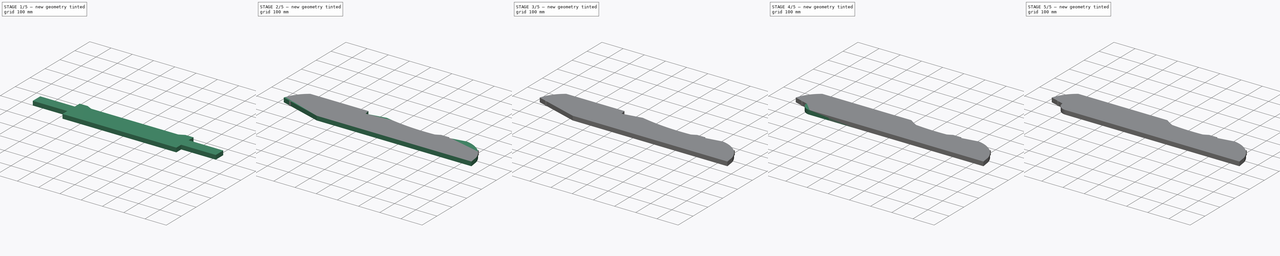
[diagram: build sequence overview — one tinted view per stage of 5, left to right]
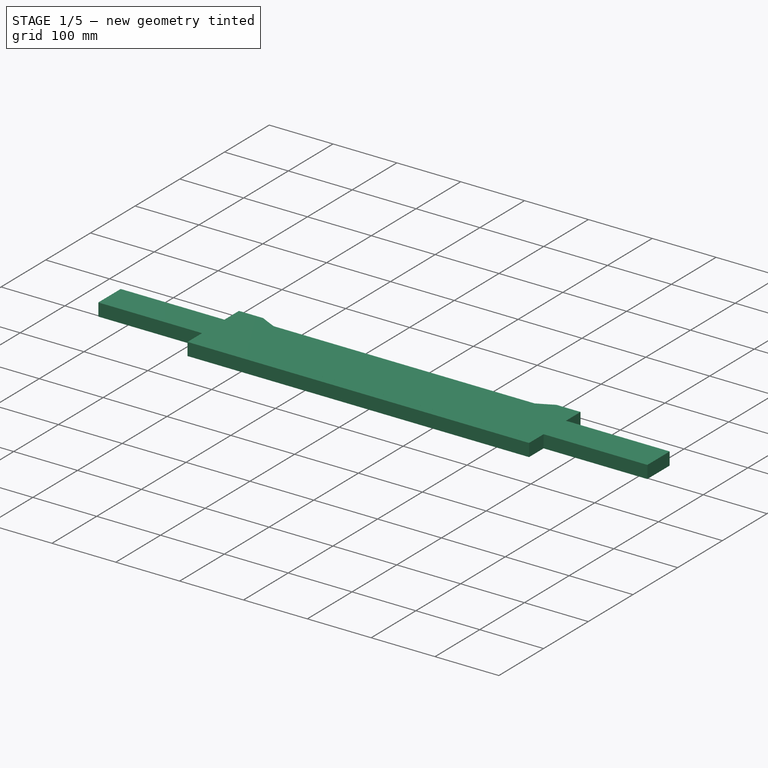
[diagram: stage 1 of 5 — iso view after this stage's code; geometry added in this stage tinted green]
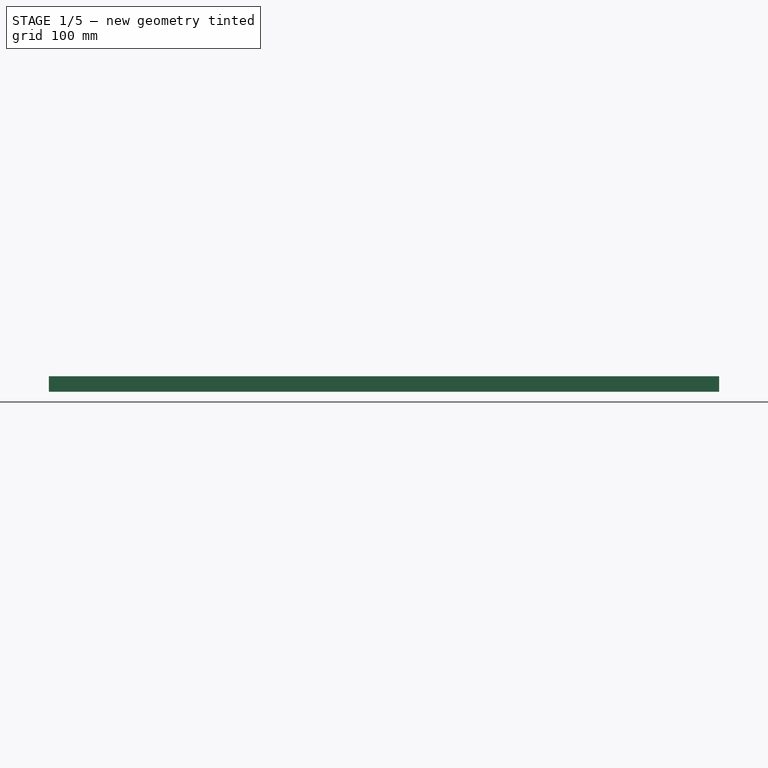
[diagram: stage 1 of 5 — front view after this stage's code; geometry added in this stage tinted green]
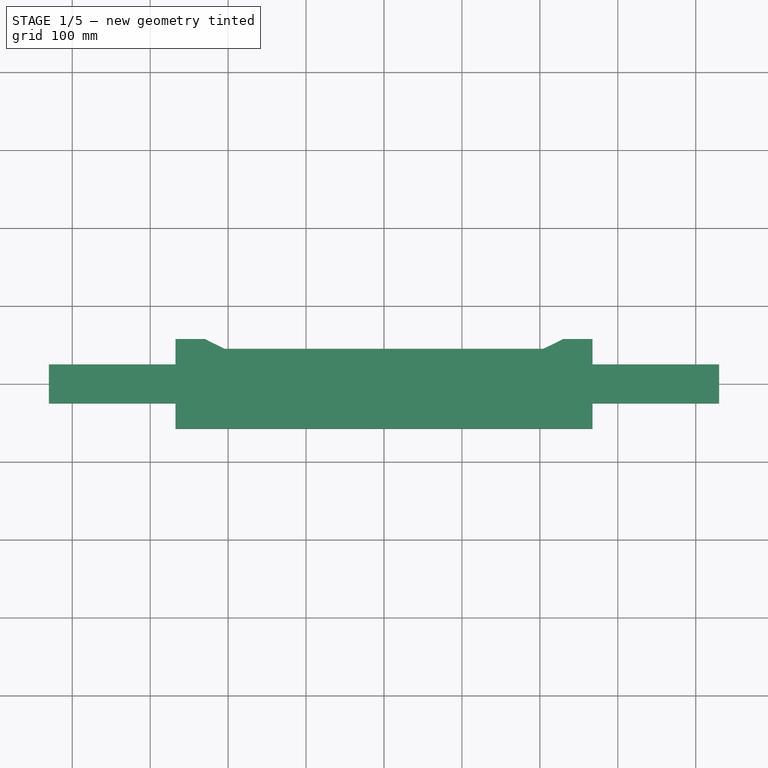
[diagram: stage 1 of 5 — top view after this stage's code; geometry added in this stage tinted green]
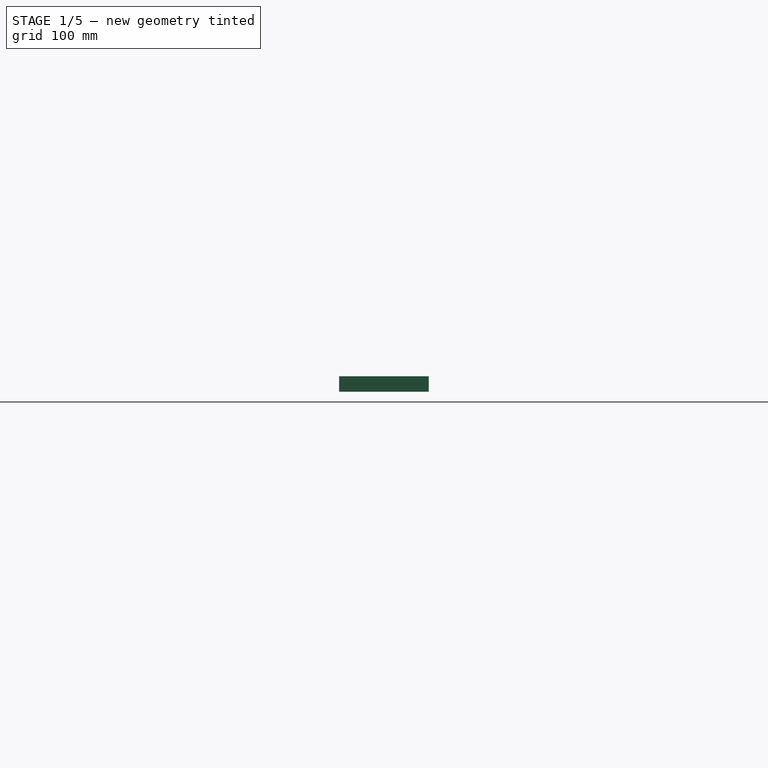
[diagram: stage 1 of 5 — right view after this stage's code; geometry added in this stage tinted green]
FCSTD DOCUMENT  (FreeCAD 0.20R29603 (Git))
Label: Adirondack Chair
License: All rights reserved
LicenseURL: http://en.wikipedia.org/wiki/All_rights_reserved
objects: App::FeaturePython×396, Part::FeaturePython×215, App::Link×36, Sketcher::SketchObject×19, PartDesign::Pad×12, PartDesign::Body×12, PartDesign::Pocket×7, PartDesign::ShapeBinder×3, PartDesign::Fillet×2, App::DocumentObjectGroup×1
note: 290 computed .brp shape members not serialized (recipe doc carries the construction recipe); baked Part::Feature solids carry a one-line shape summary decoded from their .brp

FEATURE [PartDesign::Body] Body007  label="ripa"
  Group = -> [Sketch008,Pad007]
  Origin = -> Origin007
  Tip = -> Pad007
FEATURE [Sketcher::SketchObject] Sketch012
  FullyConstrained = true
  MapMode = 5
  Support = -> [XY_Plane011]
  sketch-geometry (5):
    g0: LineSegment StartX=-430 StartY=25 StartZ=0 EndX=-430 EndY=-25 EndZ=0
    g1: LineSegment StartX=-430 StartY=-25 StartZ=0 EndX=430 EndY=-25 EndZ=0
    g2: LineSegment StartX=430 StartY=-25 StartZ=0 EndX=430 EndY=25 EndZ=0
    g3: LineSegment StartX=430 StartY=25 StartZ=0 EndX=-430 EndY=25 EndZ=0
    g4: GeomPoint X=0 Y=0 Z=0
  constraints (12):
    c: Coincident(g0,g1)
    c: Coincident(g1,g2)
    c: Coincident(g2,g3)
    c: Coincident(g3,g0)
    c: Horizontal(g1)
    c: Horizontal(g3)
    c: Vertical(g0)
    c: Vertical(g2)
    c: Symmetric(g1,g0,g4)
    c: Coincident(g4,g-1)
    c: DistanceY(g0,g0) = 50
    c: DistanceX(g3,g3) = 860
FEATURE [PartDesign::Pad] Pad011
  Direction = (0,0,1)
  Length = 20
  Length2 = 10
  Profile = -> Sketch012
  ReferenceAxis = -> Sketch012 [N_Axis]
  Type = 0
FEATURE [PartDesign::Body] Body005  label="triangulo"
  Group = -> [Sketch006,Pad005,Sketch018,Pocket006]
  Origin = -> Origin005
  Tip = -> Pocket006
FEATURE [App::Link] Link032  label="triangulo001"
  LinkPlacement = pos=(-265.447,-5.37,435.234) rot=(0.707107,0,0.707107;3.14159rad)
  LinkedObject = -> Body005
  Placement = pos=(-265.447,-5.37,435.234) rot=(0.707107,0,0.707107;3.14159rad)
FEATURE [App::Link] Link033  label="triangulo002"
  LinkPlacement = pos=(-245.447,539.63,435.234) rot=(0,-1,0;1.5708rad)
  LinkedObject = -> Link032
  Placement = pos=(-245.447,539.63,435.234) rot=(0,-1,0;1.5708rad)
FEATURE [App::Link] Link034  label="bracos001"
  LinkPlacement = pos=(79.5532,-55.37,495.234) rot=(0,0,1;3.14159rad)
  LinkedObject = -> Body006
  Placement = pos=(79.5532,-55.37,495.234) rot=(0,0,1;3.14159rad)
FEATURE [App::Link] Link035  label="bracos002"
  LinkPlacement = pos=(79.5532,589.63,515.234) rot=(0,1,0;3.14159rad)
  LinkedObject = -> Link034
  Placement = pos=(79.5532,589.63,515.234) rot=(0,1,0;3.14159rad)
FEATURE [Part::FeaturePython] Parts  # WARN: FeaturePython — macro-defined, semantics opaque (R4)
  Group = -> [Link,Link001,Link002,Link003,Link017,Link016,Link018,Link019,Link020,Link021,Link023,Link022,Link024,Link032,Link033,Link034,Link035,Link004,Link005,Link010,Link008,Link007,Link009,Link006,Link011,Link012,Link013,Link014,Link015,Link025,Link026,Link027,Link028,Link029,Link030,Link031]
  GroupMode = 0
FEATURE [PartDesign::ShapeBinder] ShapeBinder
  Support = -> [Sketch008]
  TraceSupport = false
FEATURE [Sketcher::SketchObject] Sketch009
  ExternalGeometry = -> [ShapeBinder]
  FullyConstrained = true
  MapMode = 5
  Support = -> [XY_Plane008]
  sketch-geometry (5):
    g0: LineSegment StartX=-267.5 StartY=45 StartZ=0 EndX=-267.5 EndY=-45 EndZ=0
    g1: LineSegment StartX=-267.5 StartY=-45 StartZ=0 EndX=267.5 EndY=-45 EndZ=0
    g2: LineSegment StartX=267.5 StartY=-45 StartZ=0 EndX=267.5 EndY=45 EndZ=0
    g3: LineSegment StartX=267.5 StartY=45 StartZ=0 EndX=-267.5 EndY=45 EndZ=0
    g4: GeomPoint X=-2e-16 Y=0 Z=0
  constraints (12):
    c: Coincident(g0,g1)
    c: Coincident(g1,g2)
    c: Coincident(g2,g3)
    c: Coincident(g3,g0)
    c: Horizontal(g1)
    c: Horizontal(g3)
    c: Vertical(g0)
    c: Vertical(g2)
    c: Symmetric(g1,g0,g4)
    c: Coincident(g4,g-1)
    c: DistanceY(g0,g0) = 90
    c: Equal(g3,g-3)
FEATURE [PartDesign::Pad] Pad008
  Direction = (0,0,1)
  Length = 20
  Length2 = 10
  Profile = -> Sketch009
  ReferenceAxis = -> Sketch009 [N_Axis]
  Type = 0
FEATURE [PartDesign::Body] Body009  label="ripa_curvada"
  Group = -> [Sketch010,Pad009,Sketch013,Pocket001,ShapeBinder001]
  Origin = -> Origin009
  Tip = -> Pocket001
FEATURE [PartDesign::ShapeBinder] ShapeBinder002
  Support = -> [Sketch008]
  TraceSupport = false
FEATURE [Sketcher::SketchObject] Sketch011
  ExternalGeometry = -> [ShapeBinder002]
  FullyConstrained = true
  MapMode = 5
  Support = -> [XY_Plane010]
  sketch-geometry (5):
    g0: LineSegment StartX=-267.5 StartY=57.5 StartZ=0 EndX=-267.5 EndY=-57.5 EndZ=0
    g1: LineSegment StartX=-267.5 StartY=-57.5 StartZ=0 EndX=267.5 EndY=-57.5 EndZ=0
    g2: LineSegment StartX=267.5 StartY=-57.5 StartZ=0 EndX=267.5 EndY=57.5 EndZ=0
    g3: LineSegment StartX=267.5 StartY=57.5 StartZ=0 EndX=-267.5 EndY=57.5 EndZ=0
    g4: GeomPoint X=2e-16 Y=0 Z=0
  constraints (12):
    c: Coincident(g0,g1)
    c: Coincident(g1,g2)
    c: Coincident(g2,g3)
    c: Coincident(g3,g0)
    c: Horizontal(g1)
    c: Horizontal(g3)
    c: Vertical(g0)
    c: Vertical(g2)
    c: Symmetric(g1,g0,g4)
    c: Coincident(g4,g-1)
    c: DistanceY(g0,g0) = 115
    c: Equal(g3,g-3)
FEATURE [PartDesign::Pad] Pad010
  Direction = (0,0,1)
  Length = 20
  Length2 = 10
  Profile = -> Sketch011
  ReferenceAxis = -> Sketch011 [N_Axis]
  Type = 0
FEATURE [Sketcher::SketchObject] Sketch016
  ExternalGeometry = -> [Pad010]
  FullyConstrained = true
  MapMode = 5
  Placement = pos=(0,0,20) rot=(0,0,1;0rad)
  Support = -> [Pad010]
  sketch-geometry (9):
    g0: LineSegment StartX=-229.5 StartY=57.5 StartZ=0 EndX=229.5 EndY=57.5 EndZ=0
    g1: ArcOfCircle CenterX=5.49e-14 CenterY=486.752 CenterZ=0 NormalX=0 NormalY=0 NormalZ=1 AngleXU=0 Radius=486.752 StartAngle=4.71239 EndAngle=4.86947
    g2: ArcOfCircle CenterX=5.49e-14 CenterY=486.752 CenterZ=0 NormalX=0 NormalY=0 NormalZ=1 AngleXU=0 Radius=486.752 StartAngle=4.86947 EndAngle=5.02655
    g3: ArcOfCircle CenterX=5.49e-14 CenterY=486.752 CenterZ=0 NormalX=0 NormalY=0 NormalZ=1 AngleXU=0 Radius=486.752 StartAngle=4.55531 EndAngle=4.71239
    g4: ArcOfCircle CenterX=5.49e-14 CenterY=486.752 CenterZ=0 NormalX=0 NormalY=0 NormalZ=1 AngleXU=0 Radius=486.752 StartAngle=4.39823 EndAngle=4.55531
    g5: ArcOfCircle CenterX=5.49e-14 CenterY=486.752 CenterZ=0 NormalX=0 NormalY=0 NormalZ=1 AngleXU=0 Radius=486.752 StartAngle=5.02655 EndAngle=5.18363
    g6: ArcOfCircle CenterX=5.49e-14 CenterY=486.752 CenterZ=0 NormalX=0 NormalY=0 NormalZ=1 AngleXU=0 Radius=486.752 StartAngle=5.18363 EndAngle=5.20337
    g7: ArcOfCircle CenterX=5.49e-14 CenterY=486.752 CenterZ=0 NormalX=0 NormalY=0 NormalZ=1 AngleXU=0 Radius=486.752 StartAngle=4.24115 EndAngle=4.39823
    g8: ArcOfCircle CenterX=5.49e-14 CenterY=486.752 CenterZ=0 NormalX=0 NormalY=0 NormalZ=1 AngleXU=0 Radius=486.752 StartAngle=4.22141 EndAngle=4.24115
  constraints (26):
    c: PointOnObject(g0,g-3)
    c: Symmetric(g0,g0,g-2)
    c: DistanceX(g0,g-3) = 38
    c: Angle(g1) = 0.15708
    c: Coincident(g2,g1)
    c: Angle(g2) = 0.15708
    c: Coincident(g3,g1)
    c: Coincident(g3,g1)
    c: Coincident(g4,g1)
    c: Coincident(g4,g3)
    c: Angle(g3) = 0.15708
    c: Angle(g4) = 0.15708
    c: Coincident(g2,g1)
    c: Coincident(g1,g-1)
    c: Coincident(g5,g1)
    c: Coincident(g5,g2)
    c: Coincident(g6,g1)
    c: Coincident(g6,g5)
    c: Coincident(g6,g0)
    c: Angle(g5) = 0.15708
    c: Coincident(g7,g1)
    c: Coincident(g7,g4)
    c: Coincident(g8,g1)
    c: Coincident(g8,g7)
    c: Coincident(g8,g0)
    c: Angle(g7) = 0.15708
FEATURE [PartDesign::Pocket] Pocket004
  BaseFeature = -> Pad010
  Direction = (0,0,-1)
  Length = 5
  Length2 = 5
  Profile = -> Sketch016
  ReferenceAxis = -> Sketch016 [N_Axis]
  Type = 1
FEATURE [PartDesign::Body] Body010  label="suporte_superior"
  Group = -> [Sketch011,Pad010,Sketch016,Pocket004,ShapeBinder002]
  Origin = -> Origin010
  Tip = -> Pocket004
FEATURE [App::DocumentObjectGroup] Group002  label="bodys"
  Group = -> [Body,Body001,Body002,Body003,Body004,Body005,Body006,Body007,Body008,Body009,Body010,Body011]
FEATURE [Part::FeaturePython] Assembly  label="montagem"  # WARN: FeaturePython — macro-defined, semantics opaque (R4)
  AutoRelax = true
  BuildShape = 0
  Freeze = false
  Group = -> [Constraints,Elements,Parts,Relations]
  Verbose = false
  _SolverType = 1
  _Version = 1
FEATURE [App::FeaturePython] Constraints  # WARN: FeaturePython — macro-defined, semantics opaque (R4)
  Group = -> [Constraint001,Constraint002,Constraint004,Constraint005,Constraint006,Constraint009,Constraint010,Constraint011,Constraint013,Constraint014,Constraint015,Constraint018,Constraint019,Constraint020,Constraint021,Constraint022,Constraint023,Constraint024,Constraint025,Constraint026,Constraint027,Constraint028,Constraint029,Constraint031,Constraint032,Constraint033,Constraint034,Constraint035,+87 more]
  _Version = 1
FEATURE [App::FeaturePython] Elements  # WARN: FeaturePython — macro-defined, semantics opaque (R4)
  Group = -> [_Element,_Element001,_Element002,_Element003,_Element004,_Element005,_Element006,_Element007,_Element008,_Element009,_Element010,_Element011,_Element012,_Element013,_Element014,_Element015,_Element016,_Element017,_Element018,_Element019,_Element021,_Element022,_Element023,_Element024,_Element025,_Element026,_Element027,_Element029,_Element030,_Element031,_Element032,_Element033,_Element034,+180 more]
FEATURE [Part::FeaturePython] _Element  # link proxy (typed FeaturePython)
  Detach = false
  LinkTransform = true
  LinkedObject = -> Link [Pocket.Face5]
  _Parent = -> Elements
FEATURE [Part::FeaturePython] _Element001  # link proxy (typed FeaturePython)
  Detach = false
  LinkTransform = true
  LinkedObject = -> Link [Pocket.Face4]
  _Parent = -> Elements
FEATURE [Part::FeaturePython] _Element002  # link proxy (typed FeaturePython)
  Detach = false
  LinkTransform = true
  LinkedObject = -> Link001 [Pocket.Face2]
  _Parent = -> Elements
FEATURE [Part::FeaturePython] _Element003  # link proxy (typed FeaturePython)
  Detach = false
  LinkTransform = true
  LinkedObject = -> Link002 [Pocket002.Edge10]
  _Parent = -> Elements
FEATURE [Part::FeaturePython] _Element004  # link proxy (typed FeaturePython)
  Detach = false
  LinkTransform = true
  LinkedObject = -> Link [Pocket.Edge14]
  _Parent = -> Elements
FEATURE [Part::FeaturePython] _Element005  # link proxy (typed FeaturePython)
  Detach = false
  LinkTransform = true
  LinkedObject = -> Link002 [Pocket002.Face4]
  _Parent = -> Elements
FEATURE [Part::FeaturePython] _Element006  # link proxy (typed FeaturePython)
  Detach = false
  LinkTransform = true
  LinkedObject = -> Link [Pocket.Face8]
  _Parent = -> Elements
FEATURE [Part::FeaturePython] _Element007  # link proxy (typed FeaturePython)
  Detach = false
  LinkTransform = true
  LinkedObject = -> Link002 [Pocket002.Vertex7]
  _Parent = -> Elements
FEATURE [Part::FeaturePython] _Element008  # link proxy (typed FeaturePython)
  Detach = false
  LinkTransform = true
  LinkedObject = -> Link [Pocket.Vertex7]
  _Parent = -> Elements
FEATURE [Part::FeaturePython] _Element009  # link proxy (typed FeaturePython)
  Detach = false
  LinkTransform = true
  LinkedObject = -> Link002 [Pocket002.Vertex3]
  _Parent = -> Elements
FEATURE [Part::FeaturePython] _Element010  # link proxy (typed FeaturePython)
  Detach = false
  LinkTransform = true
  LinkedObject = -> Link001 [Pocket.Vertex13]
  _Parent = -> Elements
FEATURE [Part::FeaturePython] _Element011  # link proxy (typed FeaturePython)
  Detach = false
  LinkTransform = true
  LinkedObject = -> Link001 [Pocket.Face8]
  _Parent = -> Elements
FEATURE [Part::FeaturePython] _Element012  # link proxy (typed FeaturePython)
  Detach = false
  LinkTransform = true
  LinkedObject = -> Link003 [Pocket001.Edge17]
  _Parent = -> Elements
FEATURE [Part::FeaturePython] _Element013  # link proxy (typed FeaturePython)
  Detach = false
  LinkTransform = true
  LinkedObject = -> Link002 [Pocket002.Face7]
  _Parent = -> Elements
FEATURE [Part::FeaturePython] _Element014  # link proxy (typed FeaturePython)
  Detach = false
  LinkTransform = true
  LinkedObject = -> Link003 [Pocket001.Face1]
  _Parent = -> Elements
FEATURE [Part::FeaturePython] _Element015  # link proxy (typed FeaturePython)
  Detach = false
  LinkTransform = true
  LinkedObject = -> Link003 [Pocket001.Vertex2]
  _Parent = -> Elements
FEATURE [Part::FeaturePython] _Element016  # link proxy (typed FeaturePython)
  Detach = false
  LinkTransform = true
  LinkedObject = -> Link [Pocket.Edge9]
  _Parent = -> Elements
FEATURE [Part::FeaturePython] _Element017  # link proxy (typed FeaturePython)
  Detach = false
  LinkTransform = true
  LinkedObject = -> Link [Pocket.Vertex8]
  _Parent = -> Elements
FEATURE [Part::FeaturePython] _Element018  # link proxy (typed FeaturePython)
  Detach = false
  LinkTransform = true
  LinkedObject = -> Link002 [Pocket002.Edge16]
  _Parent = -> Elements
FEATURE [Part::FeaturePython] _Element019  # link proxy (typed FeaturePython)
  Detach = false
  LinkTransform = true
  LinkedObject = -> Link003 [Pocket001.Edge3]
  _Parent = -> Elements
FEATURE [Part::FeaturePython] _Element021  # link proxy (typed FeaturePython)
  Detach = false
  LinkTransform = true
  LinkedObject = -> Link003 [Pocket001.Face2]
  _Parent = -> Elements
FEATURE [Part::FeaturePython] _Element022  # link proxy (typed FeaturePython)
  Detach = false
  LinkTransform = true
  LinkedObject = -> Link003 [Pocket001.Edge1]
  _Parent = -> Elements
FEATURE [Part::FeaturePython] _Element023  # link proxy (typed FeaturePython)
  Detach = false
  LinkTransform = true
  LinkedObject = -> Link [Pocket.Vertex9]
  _Parent = -> Elements
FEATURE [Part::FeaturePython] _Element024  # link proxy (typed FeaturePython)
  Detach = false
  LinkTransform = true
  LinkedObject = -> Link002 [Pocket002.Face5]
  _Parent = -> Elements
FEATURE [Part::FeaturePython] _Element025  # link proxy (typed FeaturePython)
  Detach = false
  LinkTransform = true
  LinkedObject = -> Link003 [Pocket001.Face4]
  _Parent = -> Elements
FEATURE [Part::FeaturePython] _Element026  # link proxy (typed FeaturePython)
  Detach = false
  LinkTransform = true
  LinkedObject = -> Link [Pocket.Edge1]
  _Parent = -> Elements
FEATURE [Part::FeaturePython] _Element027  # link proxy (typed FeaturePython)
  Detach = false
  LinkTransform = true
  LinkedObject = -> Link [Pocket.Face1]
  _Parent = -> Elements
FEATURE [App::FeaturePython] Constraint001  label="Locked"  # WARN: FeaturePython — macro-defined, semantics opaque (R4)
  Disabled = false
  Group = -> [ElementLink002]
  _ConstraintType = 0
  _Parent = -> Constraints
FEATURE [App::FeaturePython] ElementLink002  label="_Element027"  # link proxy (typed FeaturePython)
  LinkTransform = true
  LinkedObject = -> _Element027
  _Parent = -> Constraint001
FEATURE [App::FeaturePython] Constraint002  label="MultiParallel"  # WARN: FeaturePython — macro-defined, semantics opaque (R4)
  Angle = 0
  AnglePitch = 0
  AngleRoll = 0
  Disabled = false
  Group = -> [ElementLink003,ElementLink004]
  LockAngle = false
  _ConstraintType = 291
  _Parent = -> Constraints
FEATURE [App::FeaturePython] ElementLink003  label="_Element002"  # link proxy (typed FeaturePython)
  LinkTransform = true
  LinkedObject = -> _Element002
  _Parent = -> Constraint002
FEATURE [App::FeaturePython] ElementLink004  label="_Element001"  # link proxy (typed FeaturePython)
  LinkTransform = true
  LinkedObject = -> _Element001
  _Parent = -> Constraint002
FEATURE [Part::FeaturePython] _Element029  # link proxy (typed FeaturePython)
  Detach = false
  LinkTransform = true
  LinkedObject = -> Link [Pocket.Edge15]
  _Parent = -> Elements
FEATURE [App::FeaturePython] Constraint004  label="PlaneAlignment001"  # WARN: FeaturePython — macro-defined, semantics opaque (R4)
  Angle = 0
  AnglePitch = 0
  AngleRoll = 0
  Cascade = false
  Disabled = false
  Group = -> [ElementLink007,ElementLink008]
  LockAngle = false
  _ConstraintType = 37
  _Parent = -> Constraints
FEATURE [App::FeaturePython] ElementLink007  label="_Element006"  # link proxy (typed FeaturePython)
  LinkTransform = true
  LinkedObject = -> _Element006
  _Parent = -> Constraint004
FEATURE [App::FeaturePython] ElementLink008  label="_Element005"  # link proxy (typed FeaturePython)
  LinkTransform = true
  LinkedObject = -> _Element005
  _Parent = -> Constraint004
FEATURE [App::FeaturePython] Constraint005  label="PointsCoincident"  # WARN: FeaturePython — macro-defined, semantics opaque (R4)
  Disabled = false
  Group = -> [ElementLink009,ElementLink010]
  _ConstraintType = 1
  _Parent = -> Constraints
FEATURE [App::FeaturePython] ElementLink009  label="_Element007"  # link proxy (typed FeaturePython)
  LinkTransform = true
  LinkedObject = -> _Element007
  _Parent = -> Constraint005
FEATURE [App::FeaturePython] ElementLink010  label="_Element008"  # link proxy (typed FeaturePython)
  LinkTransform = true
  LinkedObject = -> _Element008
  _Parent = -> Constraint005
FEATURE [App::FeaturePython] Constraint006  label="PlaneAlignment002"  # WARN: FeaturePython — macro-defined, semantics opaque (R4)
  Angle = 0
  AnglePitch = 0
  AngleRoll = 0
  Cascade = false
  Disabled = false
  Group = -> [ElementLink011,ElementLink012]
  LockAngle = false
  _ConstraintType = 37
  _Parent = -> Constraints
FEATURE [App::FeaturePython] ElementLink011  label="_Element005"  # link proxy (typed FeaturePython)
  LinkTransform = true
  LinkedObject = -> _Element005
  _Parent = -> Constraint006
FEATURE [App::FeaturePython] ElementLink012  label="_Element011"  # link proxy (typed FeaturePython)
  LinkTransform = true
  LinkedObject = -> _Element011
  _Parent = -> Constraint006
FEATURE [Part::FeaturePython] _Element030  # link proxy (typed FeaturePython)
  Detach = false
  LinkTransform = true
  LinkedObject = -> Link001 [Pocket.Vertex14]
  _Parent = -> Elements
FEATURE [App::FeaturePython] Constraint009  label="PlaneAlignment003"  # WARN: FeaturePython — macro-defined, semantics opaque (R4)
  Angle = 0
  AnglePitch = 0
  AngleRoll = 0
  Cascade = false
  Disabled = false
  Group = -> [ElementLink017,ElementLink018]
  LockAngle = false
  _ConstraintType = 37
  _Parent = -> Constraints
FEATURE [App::FeaturePython] ElementLink017  label="_Element031"  # link proxy (typed FeaturePython)
  LinkTransform = true
  LinkedObject = -> _Element031
  _Parent = -> Constraint009
FEATURE [Part::FeaturePython] _Element031  # link proxy (typed FeaturePython)
  Detach = false
  LinkTransform = true
  LinkedObject = -> Link [Pocket.Face2]
  _Parent = -> Elements
FEATURE [App::FeaturePython] ElementLink018  label="_Element014"  # link proxy (typed FeaturePython)
  LinkTransform = true
  LinkedObject = -> _Element014
  _Parent = -> Constraint009
FEATURE [App::FeaturePython] Constraint010  label="MidPoint"  # WARN: FeaturePython — macro-defined, semantics opaque (R4)
  Disabled = false
  Group = -> [ElementLink019,ElementLink020]
  _ConstraintType = 20
  _Parent = -> Constraints
FEATURE [App::FeaturePython] ElementLink019  label="_Element023"  # link proxy (typed FeaturePython)
  LinkTransform = true
  LinkedObject = -> _Element023
  _Parent = -> Constraint010
FEATURE [App::FeaturePython] ElementLink020  label="_Element022"  # link proxy (typed FeaturePython)
  LinkTransform = true
  LinkedObject = -> _Element022
  _Parent = -> Constraint010
FEATURE [App::FeaturePython] Constraint011  label="Angle"  # WARN: FeaturePython — macro-defined, semantics opaque (R4)
  Angle = 19
  Disabled = false
  Group = -> [ElementLink021,ElementLink022]
  Supplement = false
  _ConstraintType = 27
  _Parent = -> Constraints
FEATURE [App::FeaturePython] ElementLink021  label="_Element024"  # link proxy (typed FeaturePython)
  LinkTransform = true
  LinkedObject = -> _Element024
  _Parent = -> Constraint011
FEATURE [App::FeaturePython] ElementLink022  label="_Element025"  # link proxy (typed FeaturePython)
  LinkTransform = true
  LinkedObject = -> _Element025
  _Parent = -> Constraint011
FEATURE [Part::FeaturePython] _Element032  # link proxy (typed FeaturePython)
  Detach = false
  LinkTransform = true
  LinkedObject = -> Link004 [Pad007.Edge12]
  _Parent = -> Elements
FEATURE [Part::FeaturePython] _Element033  # link proxy (typed FeaturePython)
  Detach = false
  LinkTransform = true
  LinkedObject = -> Link004 [Pad007.Face1]
  _Parent = -> Elements
FEATURE [Part::FeaturePython] _Element034  # link proxy (typed FeaturePython)
  Detach = false
  LinkTransform = true
  LinkedObject = -> Link004 [Pad007.Vertex1]
  _Parent = -> Elements
FEATURE [Part::FeaturePython] _Element035  # link proxy (typed FeaturePython)
  Detach = false
  LinkTransform = true
  LinkedObject = -> Link003 [Pocket001.Vertex1]
  _Parent = -> Elements
FEATURE [Part::FeaturePython] _Element036  # link proxy (typed FeaturePython)
  Detach = false
  LinkTransform = true
  LinkedObject = -> Link [Pocket.Vertex10]
  _Parent = -> Elements
FEATURE [Part::FeaturePython] _Element037  # link proxy (typed FeaturePython)
  Detach = false
  LinkTransform = true
  LinkedObject = -> Link004 [Pad007.Edge3]
  _Parent = -> Elements
FEATURE [Part::FeaturePython] _Element038  # link proxy (typed FeaturePython)
  Detach = false
  LinkTransform = true
  LinkedObject = -> Link001 [Pocket.Vertex15]
  _Parent = -> Elements
FEATURE [App::FeaturePython] Constraint013  label="PlaneAlignment004"  # WARN: FeaturePython — macro-defined, semantics opaque (R4)
  Angle = 0
  AnglePitch = 0
  AngleRoll = 0
  Cascade = false
  Disabled = false
  Group = -> [ElementLink025,ElementLink026]
  LockAngle = false
  _ConstraintType = 37
  _Parent = -> Constraints
FEATURE [App::FeaturePython] ElementLink025  label="_Element033"  # link proxy (typed FeaturePython)
  LinkTransform = true
  LinkedObject = -> _Element033
  _Parent = -> Constraint013
FEATURE [App::FeaturePython] ElementLink026  label="_Element031"  # link proxy (typed FeaturePython)
  LinkTransform = true
  LinkedObject = -> _Element031
  _Parent = -> Constraint013
FEATURE [App::FeaturePython] Constraint014  label="MidPoint001"  # WARN: FeaturePython — macro-defined, semantics opaque (R4)
  Disabled = false
  Group = -> [ElementLink027,ElementLink028]
  _ConstraintType = 20
  _Parent = -> Constraints
FEATURE [App::FeaturePython] ElementLink027  label="_Element036"  # link proxy (typed FeaturePython)
  LinkTransform = true
  LinkedObject = -> _Element036
  _Parent = -> Constraint014
FEATURE [App::FeaturePython] ElementLink028  label="_Element037"  # link proxy (typed FeaturePython)
  LinkTransform = true
  LinkedObject = -> _Element037
  _Parent = -> Constraint014
FEATURE [App::FeaturePython] Constraint015  label="Angle001"  # WARN: FeaturePython — macro-defined, semantics opaque (R4)
  Angle = 3.5
  Disabled = false
  Group = -> [ElementLink029,ElementLink030]
  Supplement = false
  _ConstraintType = 27
  _Parent = -> Constraints
FEATURE [App::FeaturePython] ElementLink029  label="_Element025"  # link proxy (typed FeaturePython)
  LinkTransform = true
  LinkedObject = -> _Element025
  _Parent = -> Constraint015
FEATURE [App::FeaturePython] ElementLink030  label="_Element039"  # link proxy (typed FeaturePython)
  LinkTransform = true
  LinkedObject = -> _Element039
  _Parent = -> Constraint015
FEATURE [Part::FeaturePython] _Element039  # link proxy (typed FeaturePython)
  Detach = false
  LinkTransform = true
  LinkedObject = -> Link004 [Pad007.Face6]
  _Parent = -> Elements
FEATURE [Part::FeaturePython] _Element040  # link proxy (typed FeaturePython)
  Detach = false
  LinkTransform = true
  LinkedObject = -> Link001 [Pocket.Vertex20]
  _Parent = -> Elements
FEATURE [Part::FeaturePython] _Element041  # link proxy (typed FeaturePython)
  Detach = false
  LinkTransform = true
  LinkedObject = -> Link005 [Pad007.Edge7]
  _Parent = -> Elements
FEATURE [App::FeaturePython] Constraint018  label="PlaneAlignment005"  # WARN: FeaturePython — macro-defined, semantics opaque (R4)
  Angle = 0
  AnglePitch = 0
  AngleRoll = 0
  Cascade = false
  Disabled = false
  Group = -> [ElementLink035,ElementLink036]
  LockAngle = false
  _ConstraintType = 37
  _Parent = -> Constraints
FEATURE [App::FeaturePython] ElementLink035  label="_Element042"  # link proxy (typed FeaturePython)
  LinkTransform = true
  LinkedObject = -> _Element042
  _Parent = -> Constraint018
FEATURE [Part::FeaturePython] _Element042  # link proxy (typed FeaturePython)
  Detach = false
  LinkTransform = true
  LinkedObject = -> Link005 [Pad007.Face1]
  _Parent = -> Elements
FEATURE [App::FeaturePython] ElementLink036  label="_Element031"  # link proxy (typed FeaturePython)
  LinkTransform = true
  LinkedObject = -> _Element031
  _Parent = -> Constraint018
FEATURE [App::FeaturePython] Constraint019  label="MidPoint002"  # WARN: FeaturePython — macro-defined, semantics opaque (R4)
  Disabled = false
  Group = -> [ElementLink037,ElementLink038]
  _ConstraintType = 20
  _Parent = -> Constraints
FEATURE [App::FeaturePython] ElementLink037  label="_Element043"  # link proxy (typed FeaturePython)
  LinkTransform = true
  LinkedObject = -> _Element043
  _Parent = -> Constraint019
FEATURE [Part::FeaturePython] _Element043  # link proxy (typed FeaturePython)
  Detach = false
  LinkTransform = true
  LinkedObject = -> Link [Pocket.Vertex11]
  _Parent = -> Elements
FEATURE [App::FeaturePython] ElementLink038  label="_Element044"  # link proxy (typed FeaturePython)
  LinkTransform = true
  LinkedObject = -> _Element044
  _Parent = -> Constraint019
FEATURE [Part::FeaturePython] _Element044  # link proxy (typed FeaturePython)
  Detach = false
  LinkTransform = true
  LinkedObject = -> Link005 [Pad007.Edge3]
  _Parent = -> Elements
FEATURE [Part::FeaturePython] _Element045  # link proxy (typed FeaturePython)
  Detach = false
  LinkTransform = true
  LinkedObject = -> Link005 [Pad007.Face6]
  _Parent = -> Elements
FEATURE [App::FeaturePython] Constraint020  label="Angle002"  # WARN: FeaturePython — macro-defined, semantics opaque (R4)
  Angle = 2.5
  Disabled = false
  Group = -> [ElementLink039,ElementLink040]
  Supplement = false
  _ConstraintType = 27
  _Parent = -> Constraints
FEATURE [App::FeaturePython] ElementLink039  label="_Element045"  # link proxy (typed FeaturePython)
  LinkTransform = true
  LinkedObject = -> _Element045
  _Parent = -> Constraint020
FEATURE [App::FeaturePython] ElementLink040  label="_Element039"  # link proxy (typed FeaturePython)
  LinkTransform = true
  LinkedObject = -> _Element039
  _Parent = -> Constraint020
FEATURE [App::FeaturePython] Constraint021  label="PlaneAlignment006"  # WARN: FeaturePython — macro-defined, semantics opaque (R4)
  Angle = 0
  AnglePitch = 0
  AngleRoll = 0
  Cascade = false
  Disabled = false
  Group = -> [ElementLink041,ElementLink042]
  LockAngle = false
  _ConstraintType = 37
  _Parent = -> Constraints
FEATURE [App::FeaturePython] ElementLink041  label="_Element046"  # link proxy (typed FeaturePython)
  LinkTransform = true
  LinkedObject = -> _Element046
  _Parent = -> Constraint021
FEATURE [Part::FeaturePython] _Element046  # link proxy (typed FeaturePython)
  Detach = false
  LinkTransform = true
  LinkedObject = -> Link010 [Pad007.Face1]
  _Parent = -> Elements
FEATURE [App::FeaturePython] ElementLink042  label="_Element031"  # link proxy (typed FeaturePython)
  LinkTransform = true
  LinkedObject = -> _Element031
  _Parent = -> Constraint021
FEATURE [App::FeaturePython] Constraint022  label="MidPoint003"  # WARN: FeaturePython — macro-defined, semantics opaque (R4)
  Disabled = false
  Group = -> [ElementLink043,ElementLink044]
  _ConstraintType = 20
  _Parent = -> Constraints
FEATURE [App::FeaturePython] ElementLink043  label="_Element047"  # link proxy (typed FeaturePython)
  LinkTransform = true
  LinkedObject = -> _Element047
  _Parent = -> Constraint022
FEATURE [Part::FeaturePython] _Element047  # link proxy (typed FeaturePython)
  Detach = false
  LinkTransform = true
  LinkedObject = -> Link [Pocket.Vertex12]
  _Parent = -> Elements
FEATURE [App::FeaturePython] ElementLink044  label="_Element048"  # link proxy (typed FeaturePython)
  LinkTransform = true
  LinkedObject = -> _Element048
  _Parent = -> Constraint022
FEATURE [Part::FeaturePython] _Element048  # link proxy (typed FeaturePython)
  Detach = false
  LinkTransform = true
  LinkedObject = -> Link010 [Pad007.Edge3]
  _Parent = -> Elements
FEATURE [App::FeaturePython] Constraint023  label="PlaneAlignment007"  # WARN: FeaturePython — macro-defined, semantics opaque (R4)
  Angle = 0
  AnglePitch = 0
  AngleRoll = 0
  Cascade = false
  Disabled = false
  Group = -> [ElementLink045,ElementLink046]
  LockAngle = false
  _ConstraintType = 37
  _Parent = -> Constraints
FEATURE [App::FeaturePython] ElementLink045  label="_Element049"  # link proxy (typed FeaturePython)
  LinkTransform = true
  LinkedObject = -> _Element049
  _Parent = -> Constraint023
FEATURE [Part::FeaturePython] _Element049  # link proxy (typed FeaturePython)
  Detach = false
  LinkTransform = true
  LinkedObject = -> Link008 [Pad007.Face1]
  _Parent = -> Elements
FEATURE [App::FeaturePython] ElementLink046  label="_Element031"  # link proxy (typed FeaturePython)
  LinkTransform = true
  LinkedObject = -> _Element031
  _Parent = -> Constraint023
FEATURE [App::FeaturePython] Constraint024  label="MidPoint004"  # WARN: FeaturePython — macro-defined, semantics opaque (R4)
  Disabled = false
  Group = -> [ElementLink047,ElementLink048]
  _ConstraintType = 20
  _Parent = -> Constraints
FEATURE [App::FeaturePython] ElementLink047  label="_Element050"  # link proxy (typed FeaturePython)
  LinkTransform = true
  LinkedObject = -> _Element050
  _Parent = -> Constraint024
FEATURE [Part::FeaturePython] _Element050  # link proxy (typed FeaturePython)
  Detach = false
  LinkTransform = true
  LinkedObject = -> Link [Pocket.Vertex13]
  _Parent = -> Elements
FEATURE [App::FeaturePython] ElementLink048  label="_Element051"  # link proxy (typed FeaturePython)
  LinkTransform = true
  LinkedObject = -> _Element051
  _Parent = -> Constraint024
FEATURE [Part::FeaturePython] _Element051  # link proxy (typed FeaturePython)
  Detach = false
  LinkTransform = true
  LinkedObject = -> Link008 [Pad007.Edge3]
  _Parent = -> Elements
FEATURE [App::FeaturePython] Constraint025  label="PlaneAlignment008"  # WARN: FeaturePython — macro-defined, semantics opaque (R4)
  Angle = 0
  AnglePitch = 0
  AngleRoll = 0
  Cascade = false
  Disabled = false
  Group = -> [ElementLink049,ElementLink050]
  LockAngle = false
  _ConstraintType = 37
  _Parent = -> Constraints
FEATURE [App::FeaturePython] ElementLink049  label="_Element052"  # link proxy (typed FeaturePython)
  LinkTransform = true
  LinkedObject = -> _Element052
  _Parent = -> Constraint025
FEATURE [Part::FeaturePython] _Element052  # link proxy (typed FeaturePython)
  Detach = false
  LinkTransform = true
  LinkedObject = -> Link007 [Pad007.Face1]
  _Parent = -> Elements
FEATURE [App::FeaturePython] ElementLink050  label="_Element031"  # link proxy (typed FeaturePython)
  LinkTransform = true
  LinkedObject = -> _Element031
  _Parent = -> Constraint025
FEATURE [App::FeaturePython] Constraint026  label="MidPoint005"  # WARN: FeaturePython — macro-defined, semantics opaque (R4)
  Disabled = false
  Group = -> [ElementLink051,ElementLink052]
  _ConstraintType = 20
  _Parent = -> Constraints
FEATURE [App::FeaturePython] ElementLink051  label="_Element053"  # link proxy (typed FeaturePython)
  LinkTransform = true
  LinkedObject = -> _Element053
  _Parent = -> Constraint026
FEATURE [Part::FeaturePython] _Element053  # link proxy (typed FeaturePython)
  Detach = false
  LinkTransform = true
  LinkedObject = -> Link [Pocket.Vertex14]
  _Parent = -> Elements
FEATURE [App::FeaturePython] ElementLink052  label="_Element054"  # link proxy (typed FeaturePython)
  LinkTransform = true
  LinkedObject = -> _Element054
  _Parent = -> Constraint026
FEATURE [Part::FeaturePython] _Element054  # link proxy (typed FeaturePython)
  Detach = false
  LinkTransform = true
  LinkedObject = -> Link007 [Pad007.Edge3]
  _Parent = -> Elements
FEATURE [App::FeaturePython] Constraint027  label="PlaneAlignment009"  # WARN: FeaturePython — macro-defined, semantics opaque (R4)
  Angle = 0
  AnglePitch = 0
  AngleRoll = 0
  Cascade = false
  Disabled = false
  Group = -> [ElementLink053,ElementLink054]
  LockAngle = false
  _ConstraintType = 37
  _Parent = -> Constraints
FEATURE [App::FeaturePython] ElementLink053  label="_Element055"  # link proxy (typed FeaturePython)
  LinkTransform = true
  LinkedObject = -> _Element055
  _Parent = -> Constraint027
FEATURE [Part::FeaturePython] _Element055  # link proxy (typed FeaturePython)
  Detach = false
  LinkTransform = true
  LinkedObject = -> Link009 [Pad007.Face1]
  _Parent = -> Elements
FEATURE [App::FeaturePython] ElementLink054  label="_Element031"  # link proxy (typed FeaturePython)
  LinkTransform = true
  LinkedObject = -> _Element031
  _Parent = -> Constraint027
FEATURE [App::FeaturePython] Constraint028  label="MidPoint006"  # WARN: FeaturePython — macro-defined, semantics opaque (R4)
  Disabled = false
  Group = -> [ElementLink055,ElementLink056]
  _ConstraintType = 20
  _Parent = -> Constraints
FEATURE [App::FeaturePython] ElementLink055  label="_Element056"  # link proxy (typed FeaturePython)
  LinkTransform = true
  LinkedObject = -> _Element056
  _Parent = -> Constraint028
FEATURE [Part::FeaturePython] _Element056  # link proxy (typed FeaturePython)
  Detach = false
  LinkTransform = true
  LinkedObject = -> Link [Pocket.Vertex15]
  _Parent = -> Elements
FEATURE [App::FeaturePython] ElementLink056  label="_Element057"  # link proxy (typed FeaturePython)
  LinkTransform = true
  LinkedObject = -> _Element057
  _Parent = -> Constraint028
FEATURE [Part::FeaturePython] _Element057  # link proxy (typed FeaturePython)
  Detach = false
  LinkTransform = true
  LinkedObject = -> Link009 [Pad007.Edge3]
  _Parent = -> Elements
FEATURE [App::FeaturePython] Constraint029  label="PlaneAlignment010"  # WARN: FeaturePython — macro-defined, semantics opaque (R4)
  Angle = 0
  AnglePitch = 0
  AngleRoll = 0
  Cascade = false
  Disabled = false
  Group = -> [ElementLink057,ElementLink058]
  LockAngle = false
  _ConstraintType = 37
  _Parent = -> Constraints
FEATURE [App::FeaturePython] ElementLink057  label="_Element058"  # link proxy (typed FeaturePython)
  LinkTransform = true
  LinkedObject = -> _Element058
  _Parent = -> Constraint029
FEATURE [Part::FeaturePython] _Element058  # link proxy (typed FeaturePython)
  Detach = false
  LinkTransform = true
  LinkedObject = -> Link006 [Pad007.Face1]
  _Parent = -> Elements
FEATURE [App::FeaturePython] ElementLink058  label="_Element031"  # link proxy (typed FeaturePython)
  LinkTransform = true
  LinkedObject = -> _Element031
  _Parent = -> Constraint029
FEATURE [Part::FeaturePython] _Element059  # link proxy (typed FeaturePython)
  Detach = false
  LinkTransform = true
  LinkedObject = -> Link [Pocket.Vertex16]
  _Parent = -> Elements
FEATURE [Part::FeaturePython] _Element060  # link proxy (typed FeaturePython)
  Detach = false
  LinkTransform = true
  LinkedObject = -> Link006 [Pad007.Edge3]
  _Parent = -> Elements
FEATURE [App::FeaturePython] Constraint031  label="Angle003"  # WARN: FeaturePython — macro-defined, semantics opaque (R4)
  Angle = 2.25
  Disabled = false
  Group = -> [ElementLink061,ElementLink062]
  Supplement = false
  _ConstraintType = 27
  _Parent = -> Constraints
FEATURE [App::FeaturePython] ElementLink061  label="_Element045"  # link proxy (typed FeaturePython)
  LinkTransform = true
  LinkedObject = -> _Element045
  _Parent = -> Constraint031
FEATURE [App::FeaturePython] ElementLink062  label="_Element061"  # link proxy (typed FeaturePython)
  LinkTransform = true
  LinkedObject = -> _Element061
  _Parent = -> Constraint031
FEATURE [Part::FeaturePython] _Element061  # link proxy (typed FeaturePython)
  Detach = false
  LinkTransform = true
  LinkedObject = -> Link010 [Pad007.Face6]
  _Parent = -> Elements
FEATURE [Part::FeaturePython] _Element062  # link proxy (typed FeaturePython)
  Detach = false
  LinkTransform = true
  LinkedObject = -> Link008 [Pad007.Face6]
  _Parent = -> Elements
FEATURE [App::FeaturePython] Constraint032  label="Angle004"  # WARN: FeaturePython — macro-defined, semantics opaque (R4)
  Angle = 3
  Disabled = false
  Group = -> [ElementLink063,ElementLink064]
  Supplement = false
  _ConstraintType = 27
  _Parent = -> Constraints
FEATURE [App::FeaturePython] ElementLink063  label="_Element061"  # link proxy (typed FeaturePython)
  LinkTransform = true
  LinkedObject = -> _Element061
  _Parent = -> Constraint032
FEATURE [App::FeaturePython] ElementLink064  label="_Element062"  # link proxy (typed FeaturePython)
  LinkTransform = true
  LinkedObject = -> _Element062
  _Parent = -> Constraint032
FEATURE [App::FeaturePython] Constraint033  label="Angle005"  # WARN: FeaturePython — macro-defined, semantics opaque (R4)
  Angle = 3
  Disabled = false
  Group = -> [ElementLink065,ElementLink066]
  Supplement = false
  _ConstraintType = 27
  _Parent = -> Constraints
FEATURE [App::FeaturePython] ElementLink065  label="_Element062"  # link proxy (typed FeaturePython)
  LinkTransform = true
  LinkedObject = -> _Element062
  _Parent = -> Constraint033
FEATURE [App::FeaturePython] ElementLink066  label="_Element063"  # link proxy (typed FeaturePython)
  LinkTransform = true
  LinkedObject = -> _Element063
  _Parent = -> Constraint033
FEATURE [Part::FeaturePython] _Element063  # link proxy (typed FeaturePython)
  Detach = false
  LinkTransform = true
  LinkedObject = -> Link007 [Pad007.Face6]
  _Parent = -> Elements
FEATURE [App::FeaturePython] Constraint034  label="Angle006"  # WARN: FeaturePython — macro-defined, semantics opaque (R4)
  Angle = 3.5
  Disabled = false
  Group = -> [ElementLink067,ElementLink068]
  Supplement = false
  _ConstraintType = 27
  _Parent = -> Constraints
FEATURE [App::FeaturePython] ElementLink067  label="_Element063"  # link proxy (typed FeaturePython)
  LinkTransform = true
  LinkedObject = -> _Element063
  _Parent = -> Constraint034
FEATURE [App::FeaturePython] ElementLink068  label="_Element064"  # link proxy (typed FeaturePython)
  LinkTransform = true
  LinkedObject = -> _Element064
  _Parent = -> Constraint034
FEATURE [Part::FeaturePython] _Element064  # link proxy (typed FeaturePython)
  Detach = false
  LinkTransform = true
  LinkedObject = -> Link009 [Pad007.Face6]
  _Parent = -> Elements
FEATURE [App::FeaturePython] Constraint035  label="PointOnLine"  # WARN: FeaturePython — macro-defined, semantics opaque (R4)
  Disabled = false
  Group = -> [ElementLink069,ElementLink070]
  _ConstraintType = 4
  _Parent = -> Constraints
FEATURE [App::FeaturePython] ElementLink069  label="_Element059"  # link proxy (typed FeaturePython)
  LinkTransform = true
  LinkedObject = -> _Element059
  _Parent = -> Constraint035
FEATURE [App::FeaturePython] ElementLink070  label="_Element060"  # link proxy (typed FeaturePython)
  LinkTransform = true
  LinkedObject = -> _Element060
  _Parent = -> Constraint035
FEATURE [App::FeaturePython] Constraint036  label="Angle007"  # WARN: FeaturePython — macro-defined, semantics opaque (R4)
  Angle = 1.5
  Disabled = false
  Group = -> [ElementLink071,ElementLink072]
  Supplement = false
  _ConstraintType = 27
  _Parent = -> Constraints
FEATURE [App::FeaturePython] ElementLink071  label="_Element064"  # link proxy (typed FeaturePython)
  LinkTransform = true
  LinkedObject = -> _Element064
  _Parent = -> Constraint036
FEATURE [App::FeaturePython] ElementLink072  label="_Element065"  # link proxy (typed FeaturePython)
  LinkTransform = true
  LinkedObject = -> _Element065
  _Parent = -> Constraint036
FEATURE [Part::FeaturePython] _Element065  # link proxy (typed FeaturePython)
  Detach = false
  LinkTransform = true
  LinkedObject = -> Link006 [Pad007.Face6]
  _Parent = -> Elements
FEATURE [Part::FeaturePython] _Element066  # link proxy (typed FeaturePython)
  Detach = false
  LinkTransform = true
  LinkedObject = -> Link001 [Pocket.Vertex23]
  _Parent = -> Elements
FEATURE [App::FeaturePython] Constraint038  label="PlaneAlignment011"  # WARN: FeaturePython — macro-defined, semantics opaque (R4)
  Angle = 0
  AnglePitch = 0
  AngleRoll = 0
  Cascade = false
  Disabled = false
  Group = -> [ElementLink075,ElementLink076]
  LockAngle = false
  _ConstraintType = 37
  _Parent = -> Constraints
FEATURE [App::FeaturePython] ElementLink075  label="_Element067"  # link proxy (typed FeaturePython)
  LinkTransform = true
  LinkedObject = -> _Element067
  _Parent = -> Constraint038
FEATURE [Part::FeaturePython] _Element067  # link proxy (typed FeaturePython)
  Detach = false
  LinkTransform = true
  LinkedObject = -> Link011 [Pad007.Face1]
  _Parent = -> Elements
FEATURE [App::FeaturePython] ElementLink076  label="_Element031"  # link proxy (typed FeaturePython)
  LinkTransform = true
  LinkedObject = -> _Element031
  _Parent = -> Constraint038
FEATURE [App::FeaturePython] Constraint039  label="MidPoint007"  # WARN: FeaturePython — macro-defined, semantics opaque (R4)
  Disabled = false
  Group = -> [ElementLink077,ElementLink078]
  _ConstraintType = 20
  _Parent = -> Constraints
FEATURE [App::FeaturePython] ElementLink077  label="_Element068"  # link proxy (typed FeaturePython)
  LinkTransform = true
  LinkedObject = -> _Element068
  _Parent = -> Constraint039
FEATURE [Part::FeaturePython] _Element068  # link proxy (typed FeaturePython)
  Detach = false
  LinkTransform = true
  LinkedObject = -> Link [Pocket.Vertex17]
  _Parent = -> Elements
FEATURE [App::FeaturePython] ElementLink078  label="_Element069"  # link proxy (typed FeaturePython)
  LinkTransform = true
  LinkedObject = -> _Element069
  _Parent = -> Constraint039
FEATURE [Part::FeaturePython] _Element069  # link proxy (typed FeaturePython)
  Detach = false
  LinkTransform = true
  LinkedObject = -> Link011 [Pad007.Edge3]
  _Parent = -> Elements
FEATURE [App::FeaturePython] Constraint040  label="PlaneAlignment012"  # WARN: FeaturePython — macro-defined, semantics opaque (R4)
  Angle = 0
  AnglePitch = 0
  AngleRoll = 0
  Cascade = false
  Disabled = false
  Group = -> [ElementLink079,ElementLink080]
  LockAngle = false
  _ConstraintType = 37
  _Parent = -> Constraints
FEATURE [App::FeaturePython] ElementLink079  label="_Element070"  # link proxy (typed FeaturePython)
  LinkTransform = true
  LinkedObject = -> _Element070
  _Parent = -> Constraint040
FEATURE [Part::FeaturePython] _Element070  # link proxy (typed FeaturePython)
  Detach = false
  LinkTransform = true
  LinkedObject = -> Link012 [Pad007.Face1]
  _Parent = -> Elements
FEATURE [App::FeaturePython] ElementLink080  label="_Element031"  # link proxy (typed FeaturePython)
  LinkTransform = true
  LinkedObject = -> _Element031
  _Parent = -> Constraint040
FEATURE [App::FeaturePython] Constraint041  label="MidPoint008"  # WARN: FeaturePython — macro-defined, semantics opaque (R4)
  Disabled = false
  Group = -> [ElementLink081,ElementLink082]
  _ConstraintType = 20
  _Parent = -> Constraints
FEATURE [App::FeaturePython] ElementLink081  label="_Element071"  # link proxy (typed FeaturePython)
  LinkTransform = true
  LinkedObject = -> _Element071
  _Parent = -> Constraint041
FEATURE [Part::FeaturePython] _Element071  # link proxy (typed FeaturePython)
  Detach = false
  LinkTransform = true
  LinkedObject = -> Link [Pocket.Vertex18]
  _Parent = -> Elements
FEATURE [App::FeaturePython] ElementLink082  label="_Element072"  # link proxy (typed FeaturePython)
  LinkTransform = true
  LinkedObject = -> _Element072
  _Parent = -> Constraint041
FEATURE [Part::FeaturePython] _Element072  # link proxy (typed FeaturePython)
  Detach = false
  LinkTransform = true
  LinkedObject = -> Link012 [Pad007.Edge3]
  _Parent = -> Elements
FEATURE [App::FeaturePython] Constraint042  label="PointsCoincident001"  # WARN: FeaturePython — macro-defined, semantics opaque (R4)
  Disabled = false
  Group = -> [ElementLink083,ElementLink084]
  _ConstraintType = 1
  _Parent = -> Constraints
FEATURE [App::FeaturePython] ElementLink083  label="_Element009"  # link proxy (typed FeaturePython)
  LinkTransform = true
  LinkedObject = -> _Element009
  _Parent = -> Constraint042
FEATURE [App::FeaturePython] ElementLink084  label="_Element073"  # link proxy (typed FeaturePython)
  LinkTransform = true
  LinkedObject = -> _Element073
  _Parent = -> Constraint042
FEATURE [Part::FeaturePython] _Element073  # link proxy (typed FeaturePython)
  Detach = false
  LinkTransform = true
  LinkedObject = -> Link001 [Pocket.Vertex24]
  _Parent = -> Elements
FEATURE [App::FeaturePython] Constraint043  label="PlaneAlignment013"  # WARN: FeaturePython — macro-defined, semantics opaque (R4)
  Angle = 0
  AnglePitch = 0
  AngleRoll = 0
  Cascade = false
  Disabled = false
  Group = -> [ElementLink085,ElementLink086]
  LockAngle = false
  _ConstraintType = 37
  _Parent = -> Constraints
FEATURE [App::FeaturePython] ElementLink085  label="_Element074"  # link proxy (typed FeaturePython)
  LinkTransform = true
  LinkedObject = -> _Element074
  _Parent = -> Constraint043
FEATURE [Part::FeaturePython] _Element074  # link proxy (typed FeaturePython)
  Detach = false
  LinkTransform = true
  LinkedObject = -> Link013 [Pad007.Face1]
  _Parent = -> Elements
FEATURE [App::FeaturePython] ElementLink086  label="_Element031"  # link proxy (typed FeaturePython)
  LinkTransform = true
  LinkedObject = -> _Element031
  _Parent = -> Constraint043
FEATURE [App::FeaturePython] Constraint044  label="MidPoint009"  # WARN: FeaturePython — macro-defined, semantics opaque (R4)
  Disabled = false
  Group = -> [ElementLink087,ElementLink088]
  _ConstraintType = 20
  _Parent = -> Constraints
FEATURE [App::FeaturePython] ElementLink087  label="_Element075"  # link proxy (typed FeaturePython)
  LinkTransform = true
  LinkedObject = -> _Element075
  _Parent = -> Constraint044
FEATURE [Part::FeaturePython] _Element075  # link proxy (typed FeaturePython)
  Detach = false
  LinkTransform = true
  LinkedObject = -> Link [Pocket.Vertex19]
  _Parent = -> Elements
FEATURE [App::FeaturePython] ElementLink088  label="_Element076"  # link proxy (typed FeaturePython)
  LinkTransform = true
  LinkedObject = -> _Element076
  _Parent = -> Constraint044
FEATURE [Part::FeaturePython] _Element076  # link proxy (typed FeaturePython)
  Detach = false
  LinkTransform = true
  LinkedObject = -> Link013 [Pad007.Edge3]
  _Parent = -> Elements
FEATURE [App::FeaturePython] Constraint045  label="PlaneAlignment014"  # WARN: FeaturePython — macro-defined, semantics opaque (R4)
  Angle = 0
  AnglePitch = 0
  AngleRoll = 0
  Cascade = false
  Disabled = false
  Group = -> [ElementLink089,ElementLink090]
  LockAngle = false
  _ConstraintType = 37
  _Parent = -> Constraints
FEATURE [App::FeaturePython] ElementLink089  label="_Element031"  # link proxy (typed FeaturePython)
  LinkTransform = true
  LinkedObject = -> _Element031
  _Parent = -> Constraint045
FEATURE [App::FeaturePython] ElementLink090  label="_Element077"  # link proxy (typed FeaturePython)
  LinkTransform = true
  LinkedObject = -> _Element077
  _Parent = -> Constraint045
FEATURE [Part::FeaturePython] _Element077  # link proxy (typed FeaturePython)
  Detach = false
  LinkTransform = true
  LinkedObject = -> Link014 [Pad007.Face1]
  _Parent = -> Elements
FEATURE [App::FeaturePython] Constraint046  label="MidPoint010"  # WARN: FeaturePython — macro-defined, semantics opaque (R4)
  Disabled = false
  Group = -> [ElementLink091,ElementLink092]
  _ConstraintType = 20
  _Parent = -> Constraints
FEATURE [App::FeaturePython] ElementLink091  label="_Element078"  # link proxy (typed FeaturePython)
  LinkTransform = true
  LinkedObject = -> _Element078
  _Parent = -> Constraint046
FEATURE [Part::FeaturePython] _Element078  # link proxy (typed FeaturePython)
  Detach = false
  LinkTransform = true
  LinkedObject = -> Link [Pocket.Vertex20]
  _Parent = -> Elements
FEATURE [App::FeaturePython] ElementLink092  label="_Element079"  # link proxy (typed FeaturePython)
  LinkTransform = true
  LinkedObject = -> _Element079
  _Parent = -> Constraint046
FEATURE [Part::FeaturePython] _Element079  # link proxy (typed FeaturePython)
  Detach = false
  LinkTransform = true
  LinkedObject = -> Link014 [Pad007.Edge3]
  _Parent = -> Elements
FEATURE [App::FeaturePython] Constraint047  label="Angle008"  # WARN: FeaturePython — macro-defined, semantics opaque (R4)
  Angle = 25
  Disabled = false
  Group = -> [ElementLink093,ElementLink094]
  Supplement = false
  _ConstraintType = 27
  _Parent = -> Constraints
FEATURE [App::FeaturePython] ElementLink093  label="_Element065"  # link proxy (typed FeaturePython)
  LinkTransform = true
  LinkedObject = -> _Element065
  _Parent = -> Constraint047
FEATURE [App::FeaturePython] ElementLink094  label="_Element080"  # link proxy (typed FeaturePython)
  LinkTransform = true
  LinkedObject = -> _Element080
  _Parent = -> Constraint047
FEATURE [Part::FeaturePython] _Element080  # link proxy (typed FeaturePython)
  Detach = false
  LinkTransform = true
  LinkedObject = -> Link011 [Pad007.Face6]
  _Parent = -> Elements
FEATURE [App::FeaturePython] Constraint048  label="Angle009"  # WARN: FeaturePython — macro-defined, semantics opaque (R4)
  Angle = 20
  Disabled = false
  Group = -> [ElementLink095,ElementLink096]
  Supplement = false
  _ConstraintType = 27
  _Parent = -> Constraints
FEATURE [App::FeaturePython] ElementLink095  label="_Element080"  # link proxy (typed FeaturePython)
  LinkTransform = true
  LinkedObject = -> _Element080
  _Parent = -> Constraint048
FEATURE [App::FeaturePython] ElementLink096  label="_Element081"  # link proxy (typed FeaturePython)
  LinkTransform = true
  LinkedObject = -> _Element081
  _Parent = -> Constraint048
FEATURE [Part::FeaturePython] _Element081  # link proxy (typed FeaturePython)
  Detach = false
  LinkTransform = true
  LinkedObject = -> Link012 [Pad007.Face6]
  _Parent = -> Elements
FEATURE [App::FeaturePython] Constraint049  label="Angle010"  # WARN: FeaturePython — macro-defined, semantics opaque (R4)
  Angle = 20
  Disabled = false
  Group = -> [ElementLink097,ElementLink098]
  Supplement = false
  _ConstraintType = 27
  _Parent = -> Constraints
FEATURE [App::FeaturePython] ElementLink097  label="_Element081"  # link proxy (typed FeaturePython)
  LinkTransform = true
  LinkedObject = -> _Element081
  _Parent = -> Constraint049
FEATURE [App::FeaturePython] ElementLink098  label="_Element082"  # link proxy (typed FeaturePython)
  LinkTransform = true
  LinkedObject = -> _Element082
  _Parent = -> Constraint049
FEATURE [Part::FeaturePython] _Element082  # link proxy (typed FeaturePython)
  Detach = false
  LinkTransform = true
  LinkedObject = -> Link013 [Pad007.Face6]
  _Parent = -> Elements
FEATURE [App::FeaturePython] Constraint050  label="Angle011"  # WARN: FeaturePython — macro-defined, semantics opaque (R4)
  Angle = 20
  Disabled = false
  Group = -> [ElementLink099,ElementLink100]
  Supplement = false
  _ConstraintType = 27
  _Parent = -> Constraints
FEATURE [App::FeaturePython] ElementLink099  label="_Element082"  # link proxy (typed FeaturePython)
  LinkTransform = true
  LinkedObject = -> _Element082
  _Parent = -> Constraint050
FEATURE [App::FeaturePython] ElementLink100  label="_Element083"  # link proxy (typed FeaturePython)
  LinkTransform = true
  LinkedObject = -> _Element083
  _Parent = -> Constraint050
FEATURE [Part::FeaturePython] _Element083  # link proxy (typed FeaturePython)
  Detach = false
  LinkTransform = true
  LinkedObject = -> Link014 [Pad007.Face6]
  _Parent = -> Elements
FEATURE [Part::FeaturePython] _Element084  # link proxy (typed FeaturePython)
  Detach = false
  LinkTransform = true
  LinkedObject = -> Link015 [Pad007.Face1]
  _Parent = -> Elements
FEATURE [App::FeaturePython] Constraint051  label="PlaneAlignment015"  # WARN: FeaturePython — macro-defined, semantics opaque (R4)
  Angle = 0
  AnglePitch = 0
  AngleRoll = 0
  Cascade = false
  Disabled = false
  Group = -> [ElementLink101,ElementLink102]
  LockAngle = false
  _ConstraintType = 37
  _Parent = -> Constraints
FEATURE [App::FeaturePython] ElementLink101  label="_Element084"  # link proxy (typed FeaturePython)
  LinkTransform = true
  LinkedObject = -> _Element084
  _Parent = -> Constraint051
FEATURE [App::FeaturePython] ElementLink102  label="_Element031"  # link proxy (typed FeaturePython)
  LinkTransform = true
  LinkedObject = -> _Element031
  _Parent = -> Constraint051
FEATURE [Part::FeaturePython] _Element085  # link proxy (typed FeaturePython)
  Detach = false
  LinkTransform = true
  LinkedObject = -> Link [Pocket.Vertex21]
  _Parent = -> Elements
FEATURE [Part::FeaturePython] _Element086  # link proxy (typed FeaturePython)
  Detach = false
  LinkTransform = true
  LinkedObject = -> Link015 [Pad007.Edge3]
  _Parent = -> Elements
FEATURE [App::FeaturePython] Constraint053  label="PointsPlaneDistance"  # WARN: FeaturePython — macro-defined, semantics opaque (R4)
  Disabled = false
  Distance = 0
  Group = -> [ElementLink105,ElementLink106]
  _ConstraintType = 7
  _Parent = -> Constraints
FEATURE [App::FeaturePython] ElementLink105  label="_Element059"  # link proxy (typed FeaturePython)
  LinkTransform = true
  LinkedObject = -> _Element059
  _Parent = -> Constraint053
FEATURE [App::FeaturePython] ElementLink106  label="_Element087"  # link proxy (typed FeaturePython)
  LinkTransform = true
  LinkedObject = -> _Element087
  _Parent = -> Constraint053
FEATURE [Part::FeaturePython] _Element087  # link proxy (typed FeaturePython)
  Detach = false
  LinkTransform = true
  LinkedObject = -> Link006 [Pad007.Face2]
  _Parent = -> Elements
FEATURE [App::FeaturePython] Constraint054  label="PointOnLine001"  # WARN: FeaturePython — macro-defined, semantics opaque (R4)
  Disabled = false
  Group = -> [ElementLink107,ElementLink108]
  _ConstraintType = 4
  _Parent = -> Constraints
FEATURE [App::FeaturePython] ElementLink107  label="_Element085"  # link proxy (typed FeaturePython)
  LinkTransform = true
  LinkedObject = -> _Element085
  _Parent = -> Constraint054
FEATURE [App::FeaturePython] ElementLink108  label="_Element086"  # link proxy (typed FeaturePython)
  LinkTransform = true
  LinkedObject = -> _Element086
  _Parent = -> Constraint054
FEATURE [App::FeaturePython] Constraint055  label="Angle012"  # WARN: FeaturePython — macro-defined, semantics opaque (R4)
  Angle = 8
  Disabled = false
  Group = -> [ElementLink109,ElementLink110]
  Supplement = false
  _ConstraintType = 27
  _Parent = -> Constraints
FEATURE [App::FeaturePython] ElementLink109  label="_Element083"  # link proxy (typed FeaturePython)
  LinkTransform = true
  LinkedObject = -> _Element083
  _Parent = -> Constraint055
FEATURE [App::FeaturePython] ElementLink110  label="_Element088"  # link proxy (typed FeaturePython)
  LinkTransform = true
  LinkedObject = -> _Element088
  _Parent = -> Constraint055
FEATURE [Part::FeaturePython] _Element088  # link proxy (typed FeaturePython)
  Detach = false
  LinkTransform = true
  LinkedObject = -> Link015 [Pad007.Face6]
  _Parent = -> Elements
FEATURE [App::FeaturePython] Constraint056  label="PointsPlaneDistance001"  # WARN: FeaturePython — macro-defined, semantics opaque (R4)
  Disabled = false
  Distance = 18
  Group = -> [ElementLink111,ElementLink112]
  _ConstraintType = 7
  _Parent = -> Constraints
FEATURE [App::FeaturePython] ElementLink111  label="_Element085"  # link proxy (typed FeaturePython)
  LinkTransform = true
  LinkedObject = -> _Element085
  _Parent = -> Constraint056
FEATURE [App::FeaturePython] ElementLink112  label="_Element089"  # link proxy (typed FeaturePython)
  LinkTransform = true
  LinkedObject = -> _Element089
  _Parent = -> Constraint056
FEATURE [Part::FeaturePython] _Element089  # link proxy (typed FeaturePython)
  Detach = false
  LinkTransform = true
  LinkedObject = -> Link015 [Pad007.Face2]
  _Parent = -> Elements
FEATURE [Part::FeaturePython] _Element090  # link proxy (typed FeaturePython)
  Detach = false
  LinkTransform = true
  LinkedObject = -> Link [Pocket.Edge3]
  _Parent = -> Elements
FEATURE [Part::FeaturePython] _Element091  # link proxy (typed FeaturePython)
  Detach = false
  LinkTransform = true
  LinkedObject = -> Link001 [Pocket.Edge3]
  _Parent = -> Elements
FEATURE [Part::FeaturePython] _Element092  # link proxy (typed FeaturePython)
  Detach = false
  LinkTransform = true
  LinkedObject = -> Link016 [Pad001.Face5]
  _Parent = -> Elements
FEATURE [Part::FeaturePython] _Element093  # link proxy (typed FeaturePython)
  Detach = false
  LinkTransform = true
  LinkedObject = -> Link016 [Pad001.Face4]
  _Parent = -> Elements
FEATURE [Part::FeaturePython] _Element094  # link proxy (typed FeaturePython)
  Detach = false
  LinkTransform = true
  LinkedObject = -> Link016 [Pad001.Edge7]
  _Parent = -> Elements
FEATURE [Part::FeaturePython] _Element095  # link proxy (typed FeaturePython)
  Detach = false
  LinkTransform = true
  LinkedObject = -> Link016 [Pad001.Face1]
  _Parent = -> Elements
FEATURE [App::FeaturePython] Constraint057  label="PlaneAlignment016"  # WARN: FeaturePython — macro-defined, semantics opaque (R4)
  Angle = 0
  AnglePitch = 0
  AngleRoll = 0
  Cascade = false
  Disabled = false
  Group = -> [ElementLink113,ElementLink114]
  LockAngle = false
  _ConstraintType = 37
  _Parent = -> Constraints
FEATURE [App::FeaturePython] ElementLink113  label="_Element096"  # link proxy (typed FeaturePython)
  LinkTransform = true
  LinkedObject = -> _Element096
  _Parent = -> Constraint057
FEATURE [Part::FeaturePython] _Element096  # link proxy (typed FeaturePython)
  Detach = false
  LinkTransform = true
  LinkedObject = -> Link016 [Pad001.Face6]
  _Parent = -> Elements
FEATURE [App::FeaturePython] ElementLink114  label="_Element031"  # link proxy (typed FeaturePython)
  LinkTransform = true
  LinkedObject = -> _Element031
  _Parent = -> Constraint057
FEATURE [App::FeaturePython] Constraint058  label="PointsPlaneDistance002"  # WARN: FeaturePython — macro-defined, semantics opaque (R4)
  Disabled = false
  Distance = -120
  Group = -> [ElementLink115,ElementLink116]
  _ConstraintType = 7
  _Parent = -> Constraints
FEATURE [App::FeaturePython] ElementLink115  label="_Element085"  # link proxy (typed FeaturePython)
  LinkTransform = true
  LinkedObject = -> _Element085
  _Parent = -> Constraint058
FEATURE [App::FeaturePython] ElementLink116  label="_Element093"  # link proxy (typed FeaturePython)
  LinkTransform = true
  LinkedObject = -> _Element093
  _Parent = -> Constraint058
FEATURE [App::FeaturePython] Constraint059  label="PlaneAlignment017"  # WARN: FeaturePython — macro-defined, semantics opaque (R4)
  Angle = 0
  AnglePitch = 0
  AngleRoll = 0
  Cascade = false
  Disabled = false
  Group = -> [ElementLink117,ElementLink118]
  LockAngle = false
  _ConstraintType = 37
  _Parent = -> Constraints
FEATURE [App::FeaturePython] ElementLink117  label="_Element027"  # link proxy (typed FeaturePython)
  LinkTransform = true
  LinkedObject = -> _Element027
  _Parent = -> Constraint059
FEATURE [App::FeaturePython] ElementLink118  label="_Element095"  # link proxy (typed FeaturePython)
  LinkTransform = true
  LinkedObject = -> _Element095
  _Parent = -> Constraint059
FEATURE [App::FeaturePython] Constraint060  label="PlaneAlignment018"  # WARN: FeaturePython — macro-defined, semantics opaque (R4)
  Angle = 0
  AnglePitch = 0
  AngleRoll = 0
  Cascade = false
  Disabled = false
  Group = -> [ElementLink119,ElementLink120]
  LockAngle = false
  _ConstraintType = 37
  _Parent = -> Constraints
FEATURE [App::FeaturePython] ElementLink119  label="_Element097"  # link proxy (typed FeaturePython)
  LinkTransform = true
  LinkedObject = -> _Element097
  _Parent = -> Constraint060
FEATURE [Part::FeaturePython] _Element097  # link proxy (typed FeaturePython)
  Detach = false
  LinkTransform = true
  LinkedObject = -> Link001 [Pocket.Face4]
  _Parent = -> Elements
FEATURE [App::FeaturePython] ElementLink120  label="_Element098"  # link proxy (typed FeaturePython)
  LinkTransform = true
  LinkedObject = -> _Element098
  _Parent = -> Constraint060
FEATURE [Part::FeaturePython] _Element098  # link proxy (typed FeaturePython)
  Detach = false
  LinkTransform = true
  LinkedObject = -> Link017 [Pad001.Face6]
  _Parent = -> Elements
FEATURE [App::FeaturePython] Constraint061  label="PlaneAlignment019"  # WARN: FeaturePython — macro-defined, semantics opaque (R4)
  Angle = 0
  AnglePitch = 0
  AngleRoll = 0
  Cascade = false
  Disabled = false
  Group = -> [ElementLink121,ElementLink122]
  LockAngle = false
  _ConstraintType = 37
  _Parent = -> Constraints
FEATURE [App::FeaturePython] ElementLink121  label="_Element099"  # link proxy (typed FeaturePython)
  LinkTransform = true
  LinkedObject = -> _Element099
  _Parent = -> Constraint061
FEATURE [Part::FeaturePython] _Element099  # link proxy (typed FeaturePython)
  Detach = false
  LinkTransform = true
  LinkedObject = -> Link001 [Pocket.Face1]
  _Parent = -> Elements
FEATURE [App::FeaturePython] ElementLink122  label="_Element100"  # link proxy (typed FeaturePython)
  LinkTransform = true
  LinkedObject = -> _Element100
  _Parent = -> Constraint061
FEATURE [Part::FeaturePython] _Element100  # link proxy (typed FeaturePython)
  Detach = false
  LinkTransform = true
  LinkedObject = -> Link017 [Pad001.Face3]
  _Parent = -> Elements
FEATURE [App::FeaturePython] Constraint062  label="PointsPlaneDistance003"  # WARN: FeaturePython — macro-defined, semantics opaque (R4)
  Disabled = false
  Distance = -120
  Group = -> [ElementLink123,ElementLink124]
  _ConstraintType = 7
  _Parent = -> Constraints
FEATURE [App::FeaturePython] ElementLink123  label="_Element101"  # link proxy (typed FeaturePython)
  LinkTransform = true
  LinkedObject = -> _Element101
  _Parent = -> Constraint062
FEATURE [Part::FeaturePython] _Element101  # link proxy (typed FeaturePython)
  Detach = false
  LinkTransform = true
  LinkedObject = -> Link001 [Pocket.Vertex38]
  _Parent = -> Elements
FEATURE [App::FeaturePython] ElementLink124  label="_Element102"  # link proxy (typed FeaturePython)
  LinkTransform = true
  LinkedObject = -> _Element102
  _Parent = -> Constraint062
FEATURE [Part::FeaturePython] _Element102  # link proxy (typed FeaturePython)
  Detach = false
  LinkTransform = true
  LinkedObject = -> Link017 [Pad001.Face4]
  _Parent = -> Elements
FEATURE [App::FeaturePython] Constraint063  label="Perpendicular"  # WARN: FeaturePython — macro-defined, semantics opaque (R4)
  Disabled = false
  Group = -> [ElementLink125,ElementLink126]
  _ConstraintType = 28
  _Parent = -> Constraints
FEATURE [App::FeaturePython] ElementLink125  label="_Element003"  # link proxy (typed FeaturePython)
  LinkTransform = true
  LinkedObject = -> _Element003
  _Parent = -> Constraint063
FEATURE [App::FeaturePython] ElementLink126  label="_Element103"  # link proxy (typed FeaturePython)
  LinkTransform = true
  LinkedObject = -> _Element103
  _Parent = -> Constraint063
FEATURE [Part::FeaturePython] _Element103  # link proxy (typed FeaturePython)
  Detach = false
  LinkTransform = true
  LinkedObject = -> Link001 [Pocket.Edge6]
  _Parent = -> Elements
FEATURE [App::FeaturePython] Constraint064  label="PlaneAlignment020"  # WARN: FeaturePython — macro-defined, semantics opaque (R4)
  Angle = 0
  AnglePitch = 0
  AngleRoll = 0
  Cascade = false
  Disabled = false
  Group = -> [ElementLink127,ElementLink128]
  LockAngle = false
  _ConstraintType = 37
  _Parent = -> Constraints
FEATURE [App::FeaturePython] ElementLink127  label="_Element104"  # link proxy (typed FeaturePython)
  LinkTransform = true
  LinkedObject = -> _Element104
  _Parent = -> Constraint064
FEATURE [Part::FeaturePython] _Element104  # link proxy (typed FeaturePython)
  Detach = false
  LinkTransform = true
  LinkedObject = -> Link019 [Pad002.Face5]
  _Parent = -> Elements
FEATURE [App::FeaturePython] ElementLink128  label="_Element105"  # link proxy (typed FeaturePython)
  LinkTransform = true
  LinkedObject = -> _Element105
  _Parent = -> Constraint064
FEATURE [Part::FeaturePython] _Element105  # link proxy (typed FeaturePython)
  Detach = false
  LinkTransform = true
  LinkedObject = -> Link016 [Pad001.Face3]
  _Parent = -> Elements
FEATURE [App::FeaturePython] Constraint065  label="PlaneAlignment021"  # WARN: FeaturePython — macro-defined, semantics opaque (R4)
  Angle = 0
  AnglePitch = 0
  AngleRoll = 0
  Cascade = false
  Disabled = false
  Group = -> [ElementLink129,ElementLink130]
  LockAngle = false
  _ConstraintType = 37
  _Parent = -> Constraints
FEATURE [App::FeaturePython] ElementLink129  label="_Element096"  # link proxy (typed FeaturePython)
  LinkTransform = true
  LinkedObject = -> _Element096
  _Parent = -> Constraint065
FEATURE [App::FeaturePython] ElementLink130  label="_Element106"  # link proxy (typed FeaturePython)
  LinkTransform = true
  LinkedObject = -> _Element106
  _Parent = -> Constraint065
FEATURE [Part::FeaturePython] _Element106  # link proxy (typed FeaturePython)
  Detach = false
  LinkTransform = true
  LinkedObject = -> Link019 [Pad002.Face3]
  _Parent = -> Elements
FEATURE [App::FeaturePython] Constraint066  label="PointsCoincident002"  # WARN: FeaturePython — macro-defined, semantics opaque (R4)
  Disabled = false
  Group = -> [ElementLink131,ElementLink132]
  _ConstraintType = 1
  _Parent = -> Constraints
FEATURE [App::FeaturePython] ElementLink131  label="_Element107"  # link proxy (typed FeaturePython)
  LinkTransform = true
  LinkedObject = -> _Element107
  _Parent = -> Constraint066
FEATURE [Part::FeaturePython] _Element107  # link proxy (typed FeaturePython)
  Detach = false
  LinkTransform = true
  LinkedObject = -> Link019 [Pad002.Vertex5]
  _Parent = -> Elements
FEATURE [App::FeaturePython] ElementLink132  label="_Element108"  # link proxy (typed FeaturePython)
  LinkTransform = true
  LinkedObject = -> _Element108
  _Parent = -> Constraint066
FEATURE [Part::FeaturePython] _Element108  # link proxy (typed FeaturePython)
  Detach = false
  LinkTransform = true
  LinkedObject = -> Link016 [Pad001.Vertex8]
  _Parent = -> Elements
FEATURE [App::FeaturePython] Constraint067  label="PlaneAlignment022"  # WARN: FeaturePython — macro-defined, semantics opaque (R4)
  Angle = 0
  AnglePitch = 0
  AngleRoll = 0
  Cascade = false
  Disabled = false
  Group = -> [ElementLink133,ElementLink134]
  LockAngle = false
  _ConstraintType = 37
  _Parent = -> Constraints
FEATURE [App::FeaturePython] ElementLink133  label="_Element109"  # link proxy (typed FeaturePython)
  LinkTransform = true
  LinkedObject = -> _Element109
  _Parent = -> Constraint067
FEATURE [Part::FeaturePython] _Element109  # link proxy (typed FeaturePython)
  Detach = false
  LinkTransform = true
  LinkedObject = -> Link018 [Pad002.Face5]
  _Parent = -> Elements
FEATURE [App::FeaturePython] ElementLink134  label="_Element110"  # link proxy (typed FeaturePython)
  LinkTransform = true
  LinkedObject = -> _Element110
  _Parent = -> Constraint067
FEATURE [Part::FeaturePython] _Element110  # link proxy (typed FeaturePython)
  Detach = false
  LinkTransform = true
  LinkedObject = -> Link017 [Pad001.Face1]
  _Parent = -> Elements
FEATURE [App::FeaturePython] Constraint068  label="PlaneAlignment023"  # WARN: FeaturePython — macro-defined, semantics opaque (R4)
  Angle = 0
  AnglePitch = 0
  AngleRoll = 0
  Cascade = false
  Disabled = false
  Group = -> [ElementLink135,ElementLink136]
  LockAngle = false
  _ConstraintType = 37
  _Parent = -> Constraints
FEATURE [App::FeaturePython] ElementLink135  label="_Element111"  # link proxy (typed FeaturePython)
  LinkTransform = true
  LinkedObject = -> _Element111
  _Parent = -> Constraint068
FEATURE [Part::FeaturePython] _Element111  # link proxy (typed FeaturePython)
  Detach = false
  LinkTransform = true
  LinkedObject = -> Link018 [Pad002.Face3]
  _Parent = -> Elements
FEATURE [App::FeaturePython] ElementLink136  label="_Element098"  # link proxy (typed FeaturePython)
  LinkTransform = true
  LinkedObject = -> _Element098
  _Parent = -> Constraint068
FEATURE [App::FeaturePython] Constraint069  label="PointsCoincident003"  # WARN: FeaturePython — macro-defined, semantics opaque (R4)
  Disabled = false
  Group = -> [ElementLink137,ElementLink138]
  _ConstraintType = 1
  _Parent = -> Constraints
FEATURE [App::FeaturePython] ElementLink137  label="_Element112"  # link proxy (typed FeaturePython)
  LinkTransform = true
  LinkedObject = -> _Element112
  _Parent = -> Constraint069
FEATURE [Part::FeaturePython] _Element112  # link proxy (typed FeaturePython)
  Detach = false
  LinkTransform = true
  LinkedObject = -> Link018 [Pad002.Vertex7]
  _Parent = -> Elements
FEATURE [App::FeaturePython] ElementLink138  label="_Element113"  # link proxy (typed FeaturePython)
  LinkTransform = true
  LinkedObject = -> _Element113
  _Parent = -> Constraint069
FEATURE [Part::FeaturePython] _Element113  # link proxy (typed FeaturePython)
  Detach = false
  LinkTransform = true
  LinkedObject = -> Link017 [Pad001.Vertex2]
  _Parent = -> Elements
FEATURE [App::FeaturePython] Constraint070  label="PlaneAlignment024"  # WARN: FeaturePython — macro-defined, semantics opaque (R4)
  Angle = 0
  AnglePitch = 0
  AngleRoll = 0
  Cascade = false
  Disabled = false
  Group = -> [ElementLink139,ElementLink140]
  LockAngle = false
  _ConstraintType = 37
  _Parent = -> Constraints
FEATURE [App::FeaturePython] ElementLink139  label="_Element114"  # link proxy (typed FeaturePython)
  LinkTransform = true
  LinkedObject = -> _Element114
  _Parent = -> Constraint070
FEATURE [Part::FeaturePython] _Element114  # link proxy (typed FeaturePython)
  Detach = false
  LinkTransform = true
  LinkedObject = -> Link021 [Pad003.Face3]
  _Parent = -> Elements
FEATURE [App::FeaturePython] ElementLink140  label="_Element109"  # link proxy (typed FeaturePython)
  LinkTransform = true
  LinkedObject = -> _Element109
  _Parent = -> Constraint070
FEATURE [App::FeaturePython] Constraint071  label="PlaneAlignment025"  # WARN: FeaturePython — macro-defined, semantics opaque (R4)
  Angle = 0
  AnglePitch = 0
  AngleRoll = 0
  Cascade = false
  Disabled = false
  Group = -> [ElementLink141,ElementLink142]
  LockAngle = false
  _ConstraintType = 37
  _Parent = -> Constraints
FEATURE [App::FeaturePython] ElementLink141  label="_Element115"  # link proxy (typed FeaturePython)
  LinkTransform = true
  LinkedObject = -> _Element115
  _Parent = -> Constraint071
FEATURE [Part::FeaturePython] _Element115  # link proxy (typed FeaturePython)
  Detach = false
  LinkTransform = true
  LinkedObject = -> Link017 [Pad001.Face5]
  _Parent = -> Elements
FEATURE [App::FeaturePython] ElementLink142  label="_Element116"  # link proxy (typed FeaturePython)
  LinkTransform = true
  LinkedObject = -> _Element116
  _Parent = -> Constraint071
FEATURE [Part::FeaturePython] _Element116  # link proxy (typed FeaturePython)
  Detach = false
  LinkTransform = true
  LinkedObject = -> Link021 [Pad003.Face4]
  _Parent = -> Elements
FEATURE [Part::FeaturePython] _Element117  # link proxy (typed FeaturePython)
  Detach = false
  LinkTransform = true
  LinkedObject = -> Link021 [Pad003.Vertex2]
  _Parent = -> Elements
FEATURE [Part::FeaturePython] _Element118  # link proxy (typed FeaturePython)
  Detach = false
  LinkTransform = true
  LinkedObject = -> Link021 [Pad003.Vertex1]
  _Parent = -> Elements
FEATURE [Part::FeaturePython] _Element119  # link proxy (typed FeaturePython)
  Detach = false
  LinkTransform = true
  LinkedObject = -> Link021 [Pad003.Edge1]
  _Parent = -> Elements
FEATURE [App::FeaturePython] Constraint072  label="SymmetricVertical"  # WARN: FeaturePython — macro-defined, semantics opaque (R4)
  Disabled = false
  Group = -> [ElementLink143,ElementLink144,ElementLink145]
  _ConstraintType = 18
  _Parent = -> Constraints
FEATURE [App::FeaturePython] ElementLink143  label="_Element117"  # link proxy (typed FeaturePython)
  LinkTransform = true
  LinkedObject = -> _Element117
  _Parent = -> Constraint072
FEATURE [App::FeaturePython] ElementLink144  label="_Element118"  # link proxy (typed FeaturePython)
  LinkTransform = true
  LinkedObject = -> _Element118
  _Parent = -> Constraint072
FEATURE [App::FeaturePython] ElementLink145  label="_Element115"  # link proxy (typed FeaturePython)
  LinkTransform = true
  LinkedObject = -> _Element115
  _Parent = -> Constraint072
FEATURE [App::FeaturePython] Constraint073  label="PlaneAlignment026"  # WARN: FeaturePython — macro-defined, semantics opaque (R4)
  Angle = 0
  AnglePitch = 0
  AngleRoll = 0
  Cascade = false
  Disabled = false
  Group = -> [ElementLink146,ElementLink147]
  LockAngle = false
  _ConstraintType = 37
  _Parent = -> Constraints
FEATURE [App::FeaturePython] ElementLink146  label="_Element120"  # link proxy (typed FeaturePython)
  LinkTransform = true
  LinkedObject = -> _Element120
  _Parent = -> Constraint073
FEATURE [Part::FeaturePython] _Element120  # link proxy (typed FeaturePython)
  Detach = false
  LinkTransform = true
  LinkedObject = -> Link020 [Fillet001.Face7]
  _Parent = -> Elements
FEATURE [App::FeaturePython] ElementLink147  label="_Element104"  # link proxy (typed FeaturePython)
  LinkTransform = true
  LinkedObject = -> _Element104
  _Parent = -> Constraint073
FEATURE [App::FeaturePython] Constraint074  label="PlaneAlignment027"  # WARN: FeaturePython — macro-defined, semantics opaque (R4)
  Angle = 0
  AnglePitch = 0
  AngleRoll = 0
  Cascade = false
  Disabled = false
  Group = -> [ElementLink148,ElementLink149]
  LockAngle = false
  _ConstraintType = 37
  _Parent = -> Constraints
FEATURE [App::FeaturePython] ElementLink148  label="_Element121"  # link proxy (typed FeaturePython)
  LinkTransform = true
  LinkedObject = -> _Element121
  _Parent = -> Constraint074
FEATURE [Part::FeaturePython] _Element121  # link proxy (typed FeaturePython)
  Detach = false
  LinkTransform = true
  LinkedObject = -> Link020 [Fillet001.Face4]
  _Parent = -> Elements
FEATURE [App::FeaturePython] ElementLink149  label="_Element092"  # link proxy (typed FeaturePython)
  LinkTransform = true
  LinkedObject = -> _Element092
  _Parent = -> Constraint074
FEATURE [App::FeaturePython] Constraint075  label="SymmetricVertical001"  # WARN: FeaturePython — macro-defined, semantics opaque (R4)
  Disabled = false
  Group = -> [ElementLink150,ElementLink151,ElementLink152]
  _ConstraintType = 18
  _Parent = -> Constraints
FEATURE [App::FeaturePython] ElementLink150  label="_Element122"  # link proxy (typed FeaturePython)
  LinkTransform = true
  LinkedObject = -> _Element122
  _Parent = -> Constraint075
FEATURE [Part::FeaturePython] _Element122  # link proxy (typed FeaturePython)
  Detach = false
  LinkTransform = true
  LinkedObject = -> Link020 [Fillet001.Vertex4]
  _Parent = -> Elements
FEATURE [App::FeaturePython] ElementLink151  label="_Element123"  # link proxy (typed FeaturePython)
  LinkTransform = true
  LinkedObject = -> _Element123
  _Parent = -> Constraint075
FEATURE [Part::FeaturePython] _Element123  # link proxy (typed FeaturePython)
  Detach = false
  LinkTransform = true
  LinkedObject = -> Link020 [Fillet001.Vertex2]
  _Parent = -> Elements
FEATURE [App::FeaturePython] ElementLink152  label="_Element092"  # link proxy (typed FeaturePython)
  LinkTransform = true
  LinkedObject = -> _Element092
  _Parent = -> Constraint075
FEATURE [Part::FeaturePython] _Element124  # link proxy (typed FeaturePython)
  Detach = false
  LinkTransform = true
  LinkedObject = -> Link023 [Pocket003.Face5]
  _Parent = -> Elements
FEATURE [App::FeaturePython] Constraint077  label="PlaneAlignment029"  # WARN: FeaturePython — macro-defined, semantics opaque (R4)
  Angle = 0
  AnglePitch = 0
  AngleRoll = 0
  Cascade = false
  Disabled = false
  Group = -> [ElementLink155,ElementLink156]
  LockAngle = false
  _ConstraintType = 37
  _Parent = -> Constraints
FEATURE [App::FeaturePython] ElementLink155  label="_Element125"  # link proxy (typed FeaturePython)
  LinkTransform = true
  LinkedObject = -> _Element125
  _Parent = -> Constraint077
FEATURE [Part::FeaturePython] _Element125  # link proxy (typed FeaturePython)
  Detach = false
  LinkTransform = true
  LinkedObject = -> Link023 [Pocket003.Face2]
  _Parent = -> Elements
FEATURE [App::FeaturePython] ElementLink156  label="_Element099"  # link proxy (typed FeaturePython)
  LinkTransform = true
  LinkedObject = -> _Element099
  _Parent = -> Constraint077
FEATURE [App::FeaturePython] Constraint078  label="PointsPlaneDistance004"  # WARN: FeaturePython — macro-defined, semantics opaque (R4)
  Disabled = false
  Distance = -100
  Group = -> [ElementLink157,ElementLink158]
  _ConstraintType = 7
  _Parent = -> Constraints
FEATURE [App::FeaturePython] ElementLink157  label="_Element126"  # link proxy (typed FeaturePython)
  LinkTransform = true
  LinkedObject = -> _Element126
  _Parent = -> Constraint078
FEATURE [Part::FeaturePython] _Element126  # link proxy (typed FeaturePython)
  Detach = false
  LinkTransform = true
  LinkedObject = -> Link001 [Pocket.Vertex3]
  _Parent = -> Elements
FEATURE [App::FeaturePython] ElementLink158  label="_Element127"  # link proxy (typed FeaturePython)
  LinkTransform = true
  LinkedObject = -> _Element127
  _Parent = -> Constraint078
FEATURE [Part::FeaturePython] _Element127  # link proxy (typed FeaturePython)
  Detach = false
  LinkTransform = true
  LinkedObject = -> Link023 [Pocket003.Face6]
  _Parent = -> Elements
FEATURE [Part::FeaturePython] _Element128  # link proxy (typed FeaturePython)
  Detach = false
  LinkTransform = true
  LinkedObject = -> Link022 [Pocket003.Face4]
  _Parent = -> Elements
FEATURE [App::FeaturePython] Constraint080  label="PlaneAlignment031"  # WARN: FeaturePython — macro-defined, semantics opaque (R4)
  Angle = 0
  AnglePitch = 0
  AngleRoll = 0
  Cascade = false
  Disabled = false
  Group = -> [ElementLink161,ElementLink162]
  LockAngle = false
  _ConstraintType = 37
  _Parent = -> Constraints
FEATURE [App::FeaturePython] ElementLink161  label="_Element027"  # link proxy (typed FeaturePython)
  LinkTransform = true
  LinkedObject = -> _Element027
  _Parent = -> Constraint080
FEATURE [App::FeaturePython] ElementLink162  label="_Element129"  # link proxy (typed FeaturePython)
  LinkTransform = true
  LinkedObject = -> _Element129
  _Parent = -> Constraint080
FEATURE [Part::FeaturePython] _Element129  # link proxy (typed FeaturePython)
  Detach = false
  LinkTransform = true
  LinkedObject = -> Link022 [Pocket003.Face2]
  _Parent = -> Elements
FEATURE [App::FeaturePython] Constraint081  label="PointsPlaneDistance005"  # WARN: FeaturePython — macro-defined, semantics opaque (R4)
  Disabled = false
  Distance = -100
  Group = -> [ElementLink163,ElementLink164]
  _ConstraintType = 7
  _Parent = -> Constraints
FEATURE [App::FeaturePython] ElementLink163  label="_Element130"  # link proxy (typed FeaturePython)
  LinkTransform = true
  LinkedObject = -> _Element130
  _Parent = -> Constraint081
FEATURE [Part::FeaturePython] _Element130  # link proxy (typed FeaturePython)
  Detach = false
  LinkTransform = true
  LinkedObject = -> Link [Pocket.Vertex2]
  _Parent = -> Elements
FEATURE [App::FeaturePython] ElementLink164  label="_Element131"  # link proxy (typed FeaturePython)
  LinkTransform = true
  LinkedObject = -> _Element131
  _Parent = -> Constraint081
FEATURE [Part::FeaturePython] _Element131  # link proxy (typed FeaturePython)
  Detach = false
  LinkTransform = true
  LinkedObject = -> Link022 [Pocket003.Face6]
  _Parent = -> Elements
FEATURE [Part::FeaturePython] _Element132  # link proxy (typed FeaturePython)
  Detach = false
  LinkTransform = true
  LinkedObject = -> Link024 [Pocket004.Face4]
  _Parent = -> Elements
FEATURE [Part::FeaturePython] _Element133  # link proxy (typed FeaturePython)
  Detach = false
  LinkTransform = true
  LinkedObject = -> Link022 [Pocket003.Face3]
  _Parent = -> Elements
FEATURE [Part::FeaturePython] _Element134  # link proxy (typed FeaturePython)
  Detach = false
  LinkTransform = true
  LinkedObject = -> Link024 [Pocket004.Face7]
  _Parent = -> Elements
FEATURE [Part::FeaturePython] _Element135  # link proxy (typed FeaturePython)
  Detach = false
  LinkTransform = true
  LinkedObject = -> Link022 [Pocket003.Face5]
  _Parent = -> Elements
FEATURE [Part::FeaturePython] _Element136  # link proxy (typed FeaturePython)
  Detach = false
  LinkTransform = true
  LinkedObject = -> Link024 [Pocket004.Vertex7]
  _Parent = -> Elements
FEATURE [Part::FeaturePython] _Element137  # link proxy (typed FeaturePython)
  Detach = false
  LinkTransform = true
  LinkedObject = -> Link022 [Pocket003.Vertex7]
  _Parent = -> Elements
FEATURE [App::FeaturePython] Relations  # WARN: FeaturePython — macro-defined, semantics opaque (R4)
  Constraints = -> Constraints
  Group = -> [Relation,Relation001,Relation002,Relation003,Relation017,Relation018,Relation019,Relation020,Relation021,Relation022,Relation023,Relation024,Relation025,Relation033,Relation034,Relation035,Relation036,Relation056,Relation057,Relation058,Relation059,Relation060,Relation061,Relation062,Relation063,Relation064,Relation065,Relation066,Relation067,Relation068,Relation069,Relation070,Relation071,+3 more]
FEATURE [App::FeaturePython] Relation  label="base 1"  # WARN: FeaturePython — macro-defined, semantics opaque (R4)
  Count = 0
  Group = -> [Constraint001,Constraint002,Constraint004,Constraint005,Constraint009,Constraint010,Constraint013,Constraint014,Constraint018,Constraint019,Constraint021,Constraint022,Constraint023,Constraint024,Constraint025,Constraint026,Constraint027,Constraint028,Constraint029,Constraint035,Constraint038,Constraint039,Constraint040,Constraint041,Constraint043,Constraint044,Constraint045,Constraint046,+10 more]
  Index = 0
  Part = -> Link
FEATURE [App::FeaturePython] Relation001  label="base 2"  # WARN: FeaturePython — macro-defined, semantics opaque (R4)
  Count = 0
  Group = -> [Constraint002,Constraint006,Constraint042,Constraint060,Constraint061,Constraint062,Constraint063,Constraint077,Constraint078,Constraint086]
  Index = 0
  Part = -> Link001
FEATURE [App::FeaturePython] Relation002  label="suporte_encosto001"  # WARN: FeaturePython — macro-defined, semantics opaque (R4)
  Count = 0
  Group = -> [Constraint004,Constraint005,Constraint006,Constraint011,Constraint042,Constraint063,Constraint092,Constraint104,Constraint105,Constraint106,Constraint107,Constraint108,Constraint112,Constraint113,Constraint115,Constraint117,Constraint119,Constraint121,Constraint123,Constraint125]
  Index = 0
  Part = -> Link002
FEATURE [App::FeaturePython] Relation003  label="ripa_curvada001"  # WARN: FeaturePython — macro-defined, semantics opaque (R4)
  Count = 0
  Group = -> [Constraint009,Constraint010,Constraint011,Constraint015]
  Index = 0
  Part = -> Link003
FEATURE [App::FeaturePython] Relation017  label="pe002"  # WARN: FeaturePython — macro-defined, semantics opaque (R4)
  Count = 0
  Group = -> [Constraint060,Constraint061,Constraint062,Constraint067,Constraint068,Constraint069,Constraint071,Constraint072]
  Index = 0
  Part = -> Link017
FEATURE [App::FeaturePython] Relation018  label="pe001"  # WARN: FeaturePython — macro-defined, semantics opaque (R4)
  Count = 0
  Group = -> [Constraint057,Constraint058,Constraint059,Constraint064,Constraint065,Constraint066,Constraint074,Constraint075]
  Index = 0
  Part = -> Link016
FEATURE [App::FeaturePython] Relation019  label="suporte_bracos001"  # WARN: FeaturePython — macro-defined, semantics opaque (R4)
  Count = 0
  Group = -> [Constraint067,Constraint068,Constraint069,Constraint070,Constraint131,Constraint136]
  Index = 0
  Part = -> Link018
FEATURE [App::FeaturePython] Relation020  label="suporte_bracos002"  # WARN: FeaturePython — macro-defined, semantics opaque (R4)
  Count = 0
  Group = -> [Constraint064,Constraint065,Constraint066,Constraint073,Constraint128,Constraint133]
  Index = 0
  Part = -> Link019
FEATURE [App::FeaturePython] Relation021  label="mao_francesa001"  # WARN: FeaturePython — macro-defined, semantics opaque (R4)
  Count = 0
  Group = -> [Constraint073,Constraint074,Constraint075]
  Index = 0
  Part = -> Link020
FEATURE [App::FeaturePython] Relation022  label="mao_francesa002"  # WARN: FeaturePython — macro-defined, semantics opaque (R4)
  Count = 0
  Group = -> [Constraint070,Constraint071,Constraint072]
  Index = 0
  Part = -> Link021
FEATURE [App::FeaturePython] Relation023  label="pecas002"  # WARN: FeaturePython — macro-defined, semantics opaque (R4)
  Count = 0
  Group = -> [Constraint077,Constraint078,Constraint086,Constraint090,Constraint130,Constraint132,Constraint137,Constraint138]
  Index = 0
  Part = -> Link023
FEATURE [App::FeaturePython] Relation024  label="pecas001"  # WARN: FeaturePython — macro-defined, semantics opaque (R4)
  Count = 0
  Group = -> [Constraint080,Constraint081,Constraint085,Constraint087,Constraint088,Constraint089,Constraint090,Constraint127,Constraint129,Constraint134,Constraint135]
  Index = 0
  Part = -> Link022
FEATURE [App::FeaturePython] Relation025  label="suporte_superior001"  # WARN: FeaturePython — macro-defined, semantics opaque (R4)
  Count = 0
  Group = -> [Constraint087,Constraint088,Constraint089,Constraint090,Constraint096,Constraint099,Constraint101,Constraint107,Constraint108,Constraint110,Constraint113,Constraint116,Constraint117,Constraint120,Constraint121,Constraint124,Constraint125]
  Index = 0
  Part = -> Link024
FEATURE [App::FeaturePython] Constraint085  label="PlaneAlignment034"  # WARN: FeaturePython — macro-defined, semantics opaque (R4)
  Angle = 0
  AnglePitch = 0
  AngleRoll = 0
  Cascade = false
  Disabled = false
  Group = -> [ElementLink171,ElementLink172]
  LockAngle = false
  _ConstraintType = 37
  _Parent = -> Constraints
FEATURE [App::FeaturePython] ElementLink171  label="_Element135"  # link proxy (typed FeaturePython)
  LinkTransform = true
  LinkedObject = -> _Element135
  _Parent = -> Constraint085
FEATURE [App::FeaturePython] ElementLink172  label="_Element001"  # link proxy (typed FeaturePython)
  LinkTransform = true
  LinkedObject = -> _Element001
  _Parent = -> Constraint085
FEATURE [App::FeaturePython] Constraint086  label="PlaneAlignment035"  # WARN: FeaturePython — macro-defined, semantics opaque (R4)
  Angle = 0
  AnglePitch = 0
  AngleRoll = 0
  Cascade = false
  Disabled = false
  Group = -> [ElementLink173,ElementLink174]
  LockAngle = false
  _ConstraintType = 37
  _Parent = -> Constraints
FEATURE [App::FeaturePython] ElementLink173  label="_Element138"  # link proxy (typed FeaturePython)
  LinkTransform = true
  LinkedObject = -> _Element138
  _Parent = -> Constraint086
FEATURE [Part::FeaturePython] _Element138  # link proxy (typed FeaturePython)
  Detach = false
  LinkTransform = true
  LinkedObject = -> Link023 [Pocket003.Face4]
  _Parent = -> Elements
FEATURE [App::FeaturePython] ElementLink174  label="_Element002"  # link proxy (typed FeaturePython)
  LinkTransform = true
  LinkedObject = -> _Element002
  _Parent = -> Constraint086
FEATURE [App::FeaturePython] Constraint087  label="PlaneAlignment036"  # WARN: FeaturePython — macro-defined, semantics opaque (R4)
  Angle = 0
  AnglePitch = 0
  AngleRoll = 0
  Cascade = false
  Disabled = false
  Group = -> [ElementLink175,ElementLink176]
  LockAngle = false
  _ConstraintType = 37
  _Parent = -> Constraints
FEATURE [App::FeaturePython] ElementLink175  label="_Element132"  # link proxy (typed FeaturePython)
  LinkTransform = true
  LinkedObject = -> _Element132
  _Parent = -> Constraint087
FEATURE [App::FeaturePython] ElementLink176  label="_Element133"  # link proxy (typed FeaturePython)
  LinkTransform = true
  LinkedObject = -> _Element133
  _Parent = -> Constraint087
FEATURE [App::FeaturePython] Constraint088  label="PointOnLine002"  # WARN: FeaturePython — macro-defined, semantics opaque (R4)
  Disabled = false
  Group = -> [ElementLink177,ElementLink178]
  _ConstraintType = 4
  _Parent = -> Constraints
FEATURE [App::FeaturePython] ElementLink177  label="_Element137"  # link proxy (typed FeaturePython)
  LinkTransform = true
  LinkedObject = -> _Element137
  _Parent = -> Constraint088
FEATURE [App::FeaturePython] ElementLink178  label="_Element139"  # link proxy (typed FeaturePython)
  LinkTransform = true
  LinkedObject = -> _Element139
  _Parent = -> Constraint088
FEATURE [Part::FeaturePython] _Element139  # link proxy (typed FeaturePython)
  Detach = false
  LinkTransform = true
  LinkedObject = -> Link024 [Pocket004.Edge9]
  _Parent = -> Elements
FEATURE [App::FeaturePython] Constraint089  label="Perpendicular001"  # WARN: FeaturePython — macro-defined, semantics opaque (R4)
  Disabled = false
  Group = -> [ElementLink179,ElementLink180]
  _ConstraintType = 28
  _Parent = -> Constraints
FEATURE [App::FeaturePython] ElementLink179  label="_Element140"  # link proxy (typed FeaturePython)
  LinkTransform = true
  LinkedObject = -> _Element140
  _Parent = -> Constraint089
FEATURE [Part::FeaturePython] _Element140  # link proxy (typed FeaturePython)
  Detach = false
  LinkTransform = true
  LinkedObject = -> Link024 [Pocket004.Edge10]
  _Parent = -> Elements
FEATURE [App::FeaturePython] ElementLink180  label="_Element141"  # link proxy (typed FeaturePython)
  LinkTransform = true
  LinkedObject = -> _Element141
  _Parent = -> Constraint089
FEATURE [Part::FeaturePython] _Element141  # link proxy (typed FeaturePython)
  Detach = false
  LinkTransform = true
  LinkedObject = -> Link022 [Pocket003.Edge12]
  _Parent = -> Elements
FEATURE [App::FeaturePython] Constraint090  label="SymmetricHorizontal"  # WARN: FeaturePython — macro-defined, semantics opaque (R4)
  Disabled = false
  Group = -> [ElementLink181,ElementLink182,ElementLink183]
  _ConstraintType = 17
  _Parent = -> Constraints
FEATURE [App::FeaturePython] ElementLink181  label="_Element137"  # link proxy (typed FeaturePython)
  LinkTransform = true
  LinkedObject = -> _Element137
  _Parent = -> Constraint090
FEATURE [App::FeaturePython] ElementLink182  label="_Element142"  # link proxy (typed FeaturePython)
  LinkTransform = true
  LinkedObject = -> _Element142
  _Parent = -> Constraint090
FEATURE [Part::FeaturePython] _Element142  # link proxy (typed FeaturePython)
  Detach = false
  LinkTransform = true
  LinkedObject = -> Link023 [Pocket003.Vertex8]
  _Parent = -> Elements
FEATURE [App::FeaturePython] ElementLink183  label="_Element143"  # link proxy (typed FeaturePython)
  LinkTransform = true
  LinkedObject = -> _Element143
  _Parent = -> Constraint090
FEATURE [Part::FeaturePython] _Element143  # link proxy (typed FeaturePython)
  Detach = false
  LinkTransform = true
  LinkedObject = -> Link024 [Pocket004.Face3]
  _Parent = -> Elements
FEATURE [Part::FeaturePython] _Element144  # link proxy (typed FeaturePython)
  Detach = false
  LinkTransform = true
  LinkedObject = -> Link002 [Pocket002.Vertex12]
  _Parent = -> Elements
FEATURE [Part::FeaturePython] _Element145  # link proxy (typed FeaturePython)
  Detach = false
  LinkTransform = true
  LinkedObject = -> Link025 [Pad011.Face5]
  _Parent = -> Elements
FEATURE [App::FeaturePython] Constraint092  label="MultiParallel001"  # WARN: FeaturePython — macro-defined, semantics opaque (R4)
  Angle = 0
  AnglePitch = 0
  AngleRoll = 0
  Disabled = false
  Group = -> [ElementLink186,ElementLink187]
  LockAngle = false
  _ConstraintType = 291
  _Parent = -> Constraints
FEATURE [App::FeaturePython] ElementLink186  label="_Element146"  # link proxy (typed FeaturePython)
  LinkTransform = true
  LinkedObject = -> _Element146
  _Parent = -> Constraint092
FEATURE [Part::FeaturePython] _Element146  # link proxy (typed FeaturePython)
  Detach = false
  LinkTransform = true
  LinkedObject = -> Link025 [Pad011.Edge9]
  _Parent = -> Elements
FEATURE [App::FeaturePython] ElementLink187  label="_Element003"  # link proxy (typed FeaturePython)
  LinkTransform = true
  LinkedObject = -> _Element003
  _Parent = -> Constraint092
FEATURE [Part::FeaturePython] _Element147  # link proxy (typed FeaturePython)
  Detach = false
  LinkTransform = true
  LinkedObject = -> Link024 [Pocket004.Vertex12]
  _Parent = -> Elements
FEATURE [Part::FeaturePython] _Element148  # link proxy (typed FeaturePython)
  Detach = false
  LinkTransform = true
  LinkedObject = -> Link025 [Pad011.Edge3]
  _Parent = -> Elements
FEATURE [Part::FeaturePython] _Element149  # link proxy (typed FeaturePython)
  Detach = false
  LinkTransform = true
  LinkedObject = -> Link002 [Pocket002.Vertex9]
  _Parent = -> Elements
FEATURE [Part::FeaturePython] _Element150  # link proxy (typed FeaturePython)
  Detach = false
  LinkTransform = true
  LinkedObject = -> Link025 [Pad011.Edge5]
  _Parent = -> Elements
FEATURE [Part::FeaturePython] _Element151  # link proxy (typed FeaturePython)
  Detach = false
  LinkTransform = true
  LinkedObject = -> Link026 [Pad011.Edge8]
  _Parent = -> Elements
FEATURE [Part::FeaturePython] _Element152  # link proxy (typed FeaturePython)
  Detach = false
  LinkTransform = true
  LinkedObject = -> Link026 [Pad011.Vertex7]
  _Parent = -> Elements
FEATURE [Part::FeaturePython] _Element153  # link proxy (typed FeaturePython)
  Detach = false
  LinkTransform = true
  LinkedObject = -> Link025 [Pad011.Vertex5]
  _Parent = -> Elements
FEATURE [Part::FeaturePython] _Element154  # link proxy (typed FeaturePython)
  Detach = false
  LinkTransform = true
  LinkedObject = -> Link026 [Pad011.Edge12]
  _Parent = -> Elements
FEATURE [Part::FeaturePython] _Element155  # link proxy (typed FeaturePython)
  Detach = false
  LinkTransform = true
  LinkedObject = -> Link025 [Pad011.Edge7]
  _Parent = -> Elements
FEATURE [Part::FeaturePython] _Element156  # link proxy (typed FeaturePython)
  Detach = false
  LinkTransform = true
  LinkedObject = -> Link026 [Pad011.Vertex8]
  _Parent = -> Elements
FEATURE [Part::FeaturePython] _Element157  # link proxy (typed FeaturePython)
  Detach = false
  LinkTransform = true
  LinkedObject = -> Link025 [Pad011.Vertex6]
  _Parent = -> Elements
FEATURE [Part::FeaturePython] _Element158  # link proxy (typed FeaturePython)
  Detach = false
  LinkTransform = true
  LinkedObject = -> Link026 [Pad011.Edge6]
  _Parent = -> Elements
FEATURE [Part::FeaturePython] _Element159  # link proxy (typed FeaturePython)
  Detach = false
  LinkTransform = true
  LinkedObject = -> Link024 [Pocket004.Vertex19]
  _Parent = -> Elements
FEATURE [Part::FeaturePython] _Element160  # link proxy (typed FeaturePython)
  Detach = false
  LinkTransform = true
  LinkedObject = -> Link026 [Pad011.Face4]
  _Parent = -> Elements
FEATURE [Part::FeaturePython] _Element161  # link proxy (typed FeaturePython)
  Detach = false
  LinkTransform = true
  LinkedObject = -> Link025 [Pad011.Face2]
  _Parent = -> Elements
FEATURE [Part::FeaturePython] _Element162  # link proxy (typed FeaturePython)
  Detach = false
  LinkTransform = true
  LinkedObject = -> Link024 [Pocket004.Vertex18]
  _Parent = -> Elements
FEATURE [Part::FeaturePython] _Element163  # link proxy (typed FeaturePython)
  Detach = false
  LinkTransform = true
  LinkedObject = -> Link026 [Pad011.Face3]
  _Parent = -> Elements
FEATURE [Part::FeaturePython] _Element164  # link proxy (typed FeaturePython)
  Detach = false
  LinkTransform = true
  LinkedObject = -> Link025 [Pad011.Face3]
  _Parent = -> Elements
FEATURE [Part::FeaturePython] _Element165  # link proxy (typed FeaturePython)
  Detach = false
  LinkTransform = true
  LinkedObject = -> Link002 [Pocket002.Vertex10]
  _Parent = -> Elements
FEATURE [Part::FeaturePython] _Element166  # link proxy (typed FeaturePython)
  Detach = false
  LinkTransform = true
  LinkedObject = -> Link026 [Pad011.Edge9]
  _Parent = -> Elements
FEATURE [Part::FeaturePython] _Element167  # link proxy (typed FeaturePython)
  Detach = false
  LinkTransform = true
  LinkedObject = -> Link024 [Pocket004.Vertex22]
  _Parent = -> Elements
FEATURE [Part::FeaturePython] _Element168  # link proxy (typed FeaturePython)
  Detach = false
  LinkTransform = true
  LinkedObject = -> Link026 [Pad011.Face5]
  _Parent = -> Elements
FEATURE [App::FeaturePython] Constraint096  label="PointInPlane"  # WARN: FeaturePython — macro-defined, semantics opaque (R4)
  Disabled = false
  Group = -> [ElementLink195,ElementLink196]
  _ConstraintType = 3
  _Parent = -> Constraints
FEATURE [App::FeaturePython] ElementLink195  label="_Element167"  # link proxy (typed FeaturePython)
  LinkTransform = true
  LinkedObject = -> _Element167
  _Parent = -> Constraint096
FEATURE [App::FeaturePython] ElementLink196  label="_Element168"  # link proxy (typed FeaturePython)
  LinkTransform = true
  LinkedObject = -> _Element168
  _Parent = -> Constraint096
FEATURE [App::FeaturePython] Constraint097  label="Angle013"  # WARN: FeaturePython — macro-defined, semantics opaque (R4)
  Angle = 10
  Disabled = false
  Group = -> [ElementLink197,ElementLink198]
  Supplement = false
  _ConstraintType = 27
  _Parent = -> Constraints
FEATURE [App::FeaturePython] ElementLink197  label="_Element169"  # link proxy (typed FeaturePython)
  LinkTransform = true
  LinkedObject = -> _Element169
  _Parent = -> Constraint097
FEATURE [Part::FeaturePython] _Element169  # link proxy (typed FeaturePython)
  Detach = false
  LinkTransform = true
  LinkedObject = -> Link025 [Pad011.Edge10]
  _Parent = -> Elements
FEATURE [App::FeaturePython] ElementLink198  label="_Element170"  # link proxy (typed FeaturePython)
  LinkTransform = true
  LinkedObject = -> _Element170
  _Parent = -> Constraint097
FEATURE [Part::FeaturePython] _Element170  # link proxy (typed FeaturePython)
  Detach = false
  LinkTransform = true
  LinkedObject = -> Link026 [Pad011.Edge10]
  _Parent = -> Elements
FEATURE [App::FeaturePython] Constraint099  label="PointInPlane001"  # WARN: FeaturePython — macro-defined, semantics opaque (R4)
  Disabled = false
  Group = -> [ElementLink201,ElementLink202]
  _ConstraintType = 3
  _Parent = -> Constraints
FEATURE [App::FeaturePython] ElementLink201  label="_Element171"  # link proxy (typed FeaturePython)
  LinkTransform = true
  LinkedObject = -> _Element171
  _Parent = -> Constraint099
FEATURE [Part::FeaturePython] _Element171  # link proxy (typed FeaturePython)
  Detach = false
  LinkTransform = true
  LinkedObject = -> Link024 [Pocket004.Vertex21]
  _Parent = -> Elements
FEATURE [App::FeaturePython] ElementLink202  label="_Element145"  # link proxy (typed FeaturePython)
  LinkTransform = true
  LinkedObject = -> _Element145
  _Parent = -> Constraint099
FEATURE [Part::FeaturePython] _Element172  # link proxy (typed FeaturePython)
  Detach = false
  LinkTransform = true
  LinkedObject = -> Link002 [Pocket002.Vertex11]
  _Parent = -> Elements
FEATURE [Part::FeaturePython] _Element173  # link proxy (typed FeaturePython)
  Detach = false
  LinkTransform = true
  LinkedObject = -> Link027 [Pad011.Edge9]
  _Parent = -> Elements
FEATURE [App::FeaturePython] Constraint101  label="PointInPlane002"  # WARN: FeaturePython — macro-defined, semantics opaque (R4)
  Disabled = false
  Group = -> [ElementLink205,ElementLink206]
  _ConstraintType = 3
  _Parent = -> Constraints
FEATURE [App::FeaturePython] ElementLink205  label="_Element174"  # link proxy (typed FeaturePython)
  LinkTransform = true
  LinkedObject = -> _Element174
  _Parent = -> Constraint101
FEATURE [Part::FeaturePython] _Element174  # link proxy (typed FeaturePython)
  Detach = false
  LinkTransform = true
  LinkedObject = -> Link024 [Pocket004.Vertex23]
  _Parent = -> Elements
FEATURE [App::FeaturePython] ElementLink206  label="_Element175"  # link proxy (typed FeaturePython)
  LinkTransform = true
  LinkedObject = -> _Element175
  _Parent = -> Constraint101
FEATURE [Part::FeaturePython] _Element175  # link proxy (typed FeaturePython)
  Detach = false
  LinkTransform = true
  LinkedObject = -> Link027 [Pad011.Face5]
  _Parent = -> Elements
FEATURE [Part::FeaturePython] _Element176  # link proxy (typed FeaturePython)
  Detach = false
  LinkTransform = true
  LinkedObject = -> Link027 [Pad011.Edge10]
  _Parent = -> Elements
FEATURE [App::FeaturePython] Constraint103  label="Angle014"  # WARN: FeaturePython — macro-defined, semantics opaque (R4)
  Angle = 10
  Disabled = false
  Group = -> [ElementLink210,ElementLink211]
  Supplement = false
  _ConstraintType = 27
  _Parent = -> Constraints
FEATURE [App::FeaturePython] ElementLink210  label="_Element170"  # link proxy (typed FeaturePython)
  LinkTransform = true
  LinkedObject = -> _Element170
  _Parent = -> Constraint103
FEATURE [App::FeaturePython] ElementLink211  label="_Element176"  # link proxy (typed FeaturePython)
  LinkTransform = true
  LinkedObject = -> _Element176
  _Parent = -> Constraint103
FEATURE [App::FeaturePython] Constraint104  label="MidPoint011"  # WARN: FeaturePython — macro-defined, semantics opaque (R4)
  Disabled = false
  Group = -> [ElementLink212,ElementLink213]
  _ConstraintType = 20
  _Parent = -> Constraints
FEATURE [App::FeaturePython] ElementLink212  label="_Element144"  # link proxy (typed FeaturePython)
  LinkTransform = true
  LinkedObject = -> _Element144
  _Parent = -> Constraint104
FEATURE [App::FeaturePython] ElementLink213  label="_Element146"  # link proxy (typed FeaturePython)
  LinkTransform = true
  LinkedObject = -> _Element146
  _Parent = -> Constraint104
FEATURE [App::FeaturePython] Constraint105  label="MidPoint012"  # WARN: FeaturePython — macro-defined, semantics opaque (R4)
  Disabled = false
  Group = -> [ElementLink214,ElementLink215]
  _ConstraintType = 20
  _Parent = -> Constraints
FEATURE [App::FeaturePython] ElementLink214  label="_Element177"  # link proxy (typed FeaturePython)
  LinkTransform = true
  LinkedObject = -> _Element177
  _Parent = -> Constraint105
FEATURE [Part::FeaturePython] _Element177  # link proxy (typed FeaturePython)
  Detach = false
  LinkTransform = true
  LinkedObject = -> Link002 [Pocket002.Vertex13]
  _Parent = -> Elements
FEATURE [App::FeaturePython] ElementLink215  label="_Element166"  # link proxy (typed FeaturePython)
  LinkTransform = true
  LinkedObject = -> _Element166
  _Parent = -> Constraint105
FEATURE [App::FeaturePython] Constraint106  label="MidPoint013"  # WARN: FeaturePython — macro-defined, semantics opaque (R4)
  Disabled = false
  Group = -> [ElementLink216,ElementLink217]
  _ConstraintType = 20
  _Parent = -> Constraints
FEATURE [App::FeaturePython] ElementLink216  label="_Element178"  # link proxy (typed FeaturePython)
  LinkTransform = true
  LinkedObject = -> _Element178
  _Parent = -> Constraint106
FEATURE [Part::FeaturePython] _Element178  # link proxy (typed FeaturePython)
  Detach = false
  LinkTransform = true
  LinkedObject = -> Link002 [Pocket002.Vertex14]
  _Parent = -> Elements
FEATURE [App::FeaturePython] ElementLink217  label="_Element173"  # link proxy (typed FeaturePython)
  LinkTransform = true
  LinkedObject = -> _Element173
  _Parent = -> Constraint106
FEATURE [App::FeaturePython] Constraint107  label="PointsHorizontal002"  # WARN: FeaturePython — macro-defined, semantics opaque (R4)
  Disabled = false
  Group = -> [ElementLink218,ElementLink219,ElementLink220]
  _ConstraintType = 21
  _Parent = -> Constraints
FEATURE [App::FeaturePython] ElementLink218  label="_Element178"  # link proxy (typed FeaturePython)
  LinkTransform = true
  LinkedObject = -> _Element178
  _Parent = -> Constraint107
FEATURE [App::FeaturePython] ElementLink219  label="_Element174"  # link proxy (typed FeaturePython)
  LinkTransform = true
  LinkedObject = -> _Element174
  _Parent = -> Constraint107
FEATURE [App::FeaturePython] ElementLink220  label="_Element175"  # link proxy (typed FeaturePython)
  LinkTransform = true
  LinkedObject = -> _Element175
  _Parent = -> Constraint107
FEATURE [App::FeaturePython] Constraint108  label="PointsHorizontal003"  # WARN: FeaturePython — macro-defined, semantics opaque (R4)
  Disabled = false
  Group = -> [ElementLink221,ElementLink222,ElementLink223]
  _ConstraintType = 21
  _Parent = -> Constraints
FEATURE [App::FeaturePython] ElementLink221  label="_Element177"  # link proxy (typed FeaturePython)
  LinkTransform = true
  LinkedObject = -> _Element177
  _Parent = -> Constraint108
FEATURE [App::FeaturePython] ElementLink222  label="_Element167"  # link proxy (typed FeaturePython)
  LinkTransform = true
  LinkedObject = -> _Element167
  _Parent = -> Constraint108
FEATURE [App::FeaturePython] ElementLink223  label="_Element168"  # link proxy (typed FeaturePython)
  LinkTransform = true
  LinkedObject = -> _Element168
  _Parent = -> Constraint108
FEATURE [Part::FeaturePython] _Element179  # link proxy (typed FeaturePython)
  Detach = false
  LinkTransform = true
  LinkedObject = -> Link002 [Pocket002.Vertex24]
  _Parent = -> Elements
FEATURE [Part::FeaturePython] _Element180  # link proxy (typed FeaturePython)
  Detach = false
  LinkTransform = true
  LinkedObject = -> Link028 [Pad011.Edge9]
  _Parent = -> Elements
FEATURE [App::FeaturePython] Constraint110  label="PointInPlane003"  # WARN: FeaturePython — macro-defined, semantics opaque (R4)
  Disabled = false
  Group = -> [ElementLink226,ElementLink227]
  _ConstraintType = 3
  _Parent = -> Constraints
FEATURE [App::FeaturePython] ElementLink226  label="_Element181"  # link proxy (typed FeaturePython)
  LinkTransform = true
  LinkedObject = -> _Element181
  _Parent = -> Constraint110
FEATURE [Part::FeaturePython] _Element181  # link proxy (typed FeaturePython)
  Detach = false
  LinkTransform = true
  LinkedObject = -> Link024 [Pocket004.Vertex24]
  _Parent = -> Elements
FEATURE [App::FeaturePython] ElementLink227  label="_Element182"  # link proxy (typed FeaturePython)
  LinkTransform = true
  LinkedObject = -> _Element182
  _Parent = -> Constraint110
FEATURE [Part::FeaturePython] _Element182  # link proxy (typed FeaturePython)
  Detach = false
  LinkTransform = true
  LinkedObject = -> Link028 [Pad011.Face5]
  _Parent = -> Elements
FEATURE [App::FeaturePython] Constraint112  label="MidPoint014"  # WARN: FeaturePython — macro-defined, semantics opaque (R4)
  Disabled = false
  Group = -> [ElementLink231,ElementLink232]
  _ConstraintType = 20
  _Parent = -> Constraints
FEATURE [App::FeaturePython] ElementLink231  label="_Element183"  # link proxy (typed FeaturePython)
  LinkTransform = true
  LinkedObject = -> _Element183
  _Parent = -> Constraint112
FEATURE [Part::FeaturePython] _Element183  # link proxy (typed FeaturePython)
  Detach = false
  LinkTransform = true
  LinkedObject = -> Link002 [Pocket002.Vertex15]
  _Parent = -> Elements
FEATURE [App::FeaturePython] ElementLink232  label="_Element180"  # link proxy (typed FeaturePython)
  LinkTransform = true
  LinkedObject = -> _Element180
  _Parent = -> Constraint112
FEATURE [App::FeaturePython] Constraint113  label="PointsHorizontal"  # WARN: FeaturePython — macro-defined, semantics opaque (R4)
  Disabled = false
  Group = -> [ElementLink233,ElementLink234,ElementLink235]
  _ConstraintType = 21
  _Parent = -> Constraints
FEATURE [App::FeaturePython] ElementLink233  label="_Element181"  # link proxy (typed FeaturePython)
  LinkTransform = true
  LinkedObject = -> _Element181
  _Parent = -> Constraint113
FEATURE [App::FeaturePython] ElementLink234  label="_Element183"  # link proxy (typed FeaturePython)
  LinkTransform = true
  LinkedObject = -> _Element183
  _Parent = -> Constraint113
FEATURE [App::FeaturePython] ElementLink235  label="_Element182"  # link proxy (typed FeaturePython)
  LinkTransform = true
  LinkedObject = -> _Element182
  _Parent = -> Constraint113
FEATURE [App::FeaturePython] Constraint114  label="Angle015"  # WARN: FeaturePython — macro-defined, semantics opaque (R4)
  Angle = 10
  Disabled = false
  Group = -> [ElementLink236,ElementLink237]
  Supplement = false
  _ConstraintType = 27
  _Parent = -> Constraints
FEATURE [App::FeaturePython] ElementLink236  label="_Element176"  # link proxy (typed FeaturePython)
  LinkTransform = true
  LinkedObject = -> _Element176
  _Parent = -> Constraint114
FEATURE [App::FeaturePython] ElementLink237  label="_Element184"  # link proxy (typed FeaturePython)
  LinkTransform = true
  LinkedObject = -> _Element184
  _Parent = -> Constraint114
FEATURE [Part::FeaturePython] _Element184  # link proxy (typed FeaturePython)
  Detach = false
  LinkTransform = true
  LinkedObject = -> Link028 [Pad011.Edge10]
  _Parent = -> Elements
FEATURE [App::FeaturePython] Constraint115  label="MidPoint015"  # WARN: FeaturePython — macro-defined, semantics opaque (R4)
  Disabled = false
  Group = -> [ElementLink238,ElementLink239]
  _ConstraintType = 20
  _Parent = -> Constraints
FEATURE [App::FeaturePython] ElementLink238  label="_Element172"  # link proxy (typed FeaturePython)
  LinkTransform = true
  LinkedObject = -> _Element172
  _Parent = -> Constraint115
FEATURE [App::FeaturePython] ElementLink239  label="_Element185"  # link proxy (typed FeaturePython)
  LinkTransform = true
  LinkedObject = -> _Element185
  _Parent = -> Constraint115
FEATURE [Part::FeaturePython] _Element185  # link proxy (typed FeaturePython)
  Detach = false
  LinkTransform = true
  LinkedObject = -> Link029 [Pad011.Edge9]
  _Parent = -> Elements
FEATURE [App::FeaturePython] Constraint116  label="PointInPlane004"  # WARN: FeaturePython — macro-defined, semantics opaque (R4)
  Disabled = false
  Group = -> [ElementLink240,ElementLink241]
  _ConstraintType = 3
  _Parent = -> Constraints
FEATURE [App::FeaturePython] ElementLink240  label="_Element186"  # link proxy (typed FeaturePython)
  LinkTransform = true
  LinkedObject = -> _Element186
  _Parent = -> Constraint116
FEATURE [Part::FeaturePython] _Element186  # link proxy (typed FeaturePython)
  Detach = false
  LinkTransform = true
  LinkedObject = -> Link024 [Pocket004.Vertex20]
  _Parent = -> Elements
FEATURE [App::FeaturePython] ElementLink241  label="_Element187"  # link proxy (typed FeaturePython)
  LinkTransform = true
  LinkedObject = -> _Element187
  _Parent = -> Constraint116
FEATURE [Part::FeaturePython] _Element187  # link proxy (typed FeaturePython)
  Detach = false
  LinkTransform = true
  LinkedObject = -> Link029 [Pad011.Face5]
  _Parent = -> Elements
FEATURE [App::FeaturePython] Constraint117  label="PointsHorizontal004"  # WARN: FeaturePython — macro-defined, semantics opaque (R4)
  Disabled = false
  Group = -> [ElementLink242,ElementLink243,ElementLink244]
  _ConstraintType = 21
  _Parent = -> Constraints
FEATURE [App::FeaturePython] ElementLink242  label="_Element172"  # link proxy (typed FeaturePython)
  LinkTransform = true
  LinkedObject = -> _Element172
  _Parent = -> Constraint117
FEATURE [App::FeaturePython] ElementLink243  label="_Element186"  # link proxy (typed FeaturePython)
  LinkTransform = true
  LinkedObject = -> _Element186
  _Parent = -> Constraint117
FEATURE [App::FeaturePython] ElementLink244  label="_Element187"  # link proxy (typed FeaturePython)
  LinkTransform = true
  LinkedObject = -> _Element187
  _Parent = -> Constraint117
FEATURE [App::FeaturePython] Constraint118  label="Angle016"  # WARN: FeaturePython — macro-defined, semantics opaque (R4)
  Angle = 10
  Disabled = false
  Group = -> [ElementLink245,ElementLink246]
  Supplement = false
  _ConstraintType = 27
  _Parent = -> Constraints
FEATURE [App::FeaturePython] ElementLink245  label="_Element188"  # link proxy (typed FeaturePython)
  LinkTransform = true
  LinkedObject = -> _Element188
  _Parent = -> Constraint118
FEATURE [Part::FeaturePython] _Element188  # link proxy (typed FeaturePython)
  Detach = false
  LinkTransform = true
  LinkedObject = -> Link029 [Pad011.Edge10]
  _Parent = -> Elements
FEATURE [App::FeaturePython] ElementLink246  label="_Element169"  # link proxy (typed FeaturePython)
  LinkTransform = true
  LinkedObject = -> _Element169
  _Parent = -> Constraint118
FEATURE [App::FeaturePython] Constraint119  label="MidPoint016"  # WARN: FeaturePython — macro-defined, semantics opaque (R4)
  Disabled = false
  Group = -> [ElementLink247,ElementLink248]
  _ConstraintType = 20
  _Parent = -> Constraints
FEATURE [App::FeaturePython] ElementLink247  label="_Element165"  # link proxy (typed FeaturePython)
  LinkTransform = true
  LinkedObject = -> _Element165
  _Parent = -> Constraint119
FEATURE [App::FeaturePython] ElementLink248  label="_Element189"  # link proxy (typed FeaturePython)
  LinkTransform = true
  LinkedObject = -> _Element189
  _Parent = -> Constraint119
FEATURE [Part::FeaturePython] _Element189  # link proxy (typed FeaturePython)
  Detach = false
  LinkTransform = true
  LinkedObject = -> Link030 [Pad011.Edge9]
  _Parent = -> Elements
FEATURE [App::FeaturePython] Constraint120  label="PointInPlane005"  # WARN: FeaturePython — macro-defined, semantics opaque (R4)
  Disabled = false
  Group = -> [ElementLink249,ElementLink250]
  _ConstraintType = 3
  _Parent = -> Constraints
FEATURE [App::FeaturePython] ElementLink249  label="_Element159"  # link proxy (typed FeaturePython)
  LinkTransform = true
  LinkedObject = -> _Element159
  _Parent = -> Constraint120
FEATURE [App::FeaturePython] ElementLink250  label="_Element190"  # link proxy (typed FeaturePython)
  LinkTransform = true
  LinkedObject = -> _Element190
  _Parent = -> Constraint120
FEATURE [Part::FeaturePython] _Element190  # link proxy (typed FeaturePython)
  Detach = false
  LinkTransform = true
  LinkedObject = -> Link030 [Pad011.Face5]
  _Parent = -> Elements
FEATURE [App::FeaturePython] Constraint121  label="PointsHorizontal005"  # WARN: FeaturePython — macro-defined, semantics opaque (R4)
  Disabled = false
  Group = -> [ElementLink251,ElementLink252,ElementLink253]
  _ConstraintType = 21
  _Parent = -> Constraints
FEATURE [App::FeaturePython] ElementLink251  label="_Element165"  # link proxy (typed FeaturePython)
  LinkTransform = true
  LinkedObject = -> _Element165
  _Parent = -> Constraint121
FEATURE [App::FeaturePython] ElementLink252  label="_Element159"  # link proxy (typed FeaturePython)
  LinkTransform = true
  LinkedObject = -> _Element159
  _Parent = -> Constraint121
FEATURE [App::FeaturePython] ElementLink253  label="_Element190"  # link proxy (typed FeaturePython)
  LinkTransform = true
  LinkedObject = -> _Element190
  _Parent = -> Constraint121
FEATURE [App::FeaturePython] Constraint122  label="Angle017"  # WARN: FeaturePython — macro-defined, semantics opaque (R4)
  Angle = 10
  Disabled = false
  Group = -> [ElementLink254,ElementLink255]
  Supplement = false
  _ConstraintType = 27
  _Parent = -> Constraints
FEATURE [App::FeaturePython] ElementLink254  label="_Element188"  # link proxy (typed FeaturePython)
  LinkTransform = true
  LinkedObject = -> _Element188
  _Parent = -> Constraint122
FEATURE [App::FeaturePython] ElementLink255  label="_Element191"  # link proxy (typed FeaturePython)
  LinkTransform = true
  LinkedObject = -> _Element191
  _Parent = -> Constraint122
FEATURE [Part::FeaturePython] _Element191  # link proxy (typed FeaturePython)
  Detach = false
  LinkTransform = true
  LinkedObject = -> Link030 [Pad011.Edge10]
  _Parent = -> Elements
FEATURE [Part::FeaturePython] _Element192  # link proxy (typed FeaturePython)
  Detach = false
  LinkTransform = true
  LinkedObject = -> Link031 [Pad011.Edge9]
  _Parent = -> Elements
FEATURE [Part::FeaturePython] _Element193  # link proxy (typed FeaturePython)
  Detach = false
  LinkTransform = true
  LinkedObject = -> Link031 [Pad011.Face5]
  _Parent = -> Elements
FEATURE [App::FeaturePython] Constraint123  label="MidPoint017"  # WARN: FeaturePython — macro-defined, semantics opaque (R4)
  Disabled = false
  Group = -> [ElementLink256,ElementLink257]
  _ConstraintType = 20
  _Parent = -> Constraints
FEATURE [App::FeaturePython] ElementLink256  label="_Element149"  # link proxy (typed FeaturePython)
  LinkTransform = true
  LinkedObject = -> _Element149
  _Parent = -> Constraint123
FEATURE [App::FeaturePython] ElementLink257  label="_Element192"  # link proxy (typed FeaturePython)
  LinkTransform = true
  LinkedObject = -> _Element192
  _Parent = -> Constraint123
FEATURE [App::FeaturePython] Constraint124  label="PointInPlane006"  # WARN: FeaturePython — macro-defined, semantics opaque (R4)
  Disabled = false
  Group = -> [ElementLink258,ElementLink259]
  _ConstraintType = 3
  _Parent = -> Constraints
FEATURE [App::FeaturePython] ElementLink258  label="_Element162"  # link proxy (typed FeaturePython)
  LinkTransform = true
  LinkedObject = -> _Element162
  _Parent = -> Constraint124
FEATURE [App::FeaturePython] ElementLink259  label="_Element193"  # link proxy (typed FeaturePython)
  LinkTransform = true
  LinkedObject = -> _Element193
  _Parent = -> Constraint124
FEATURE [App::FeaturePython] Constraint125  label="PointsHorizontal006"  # WARN: FeaturePython — macro-defined, semantics opaque (R4)
  Disabled = false
  Group = -> [ElementLink260,ElementLink261,ElementLink262]
  _ConstraintType = 21
  _Parent = -> Constraints
FEATURE [App::FeaturePython] ElementLink260  label="_Element149"  # link proxy (typed FeaturePython)
  LinkTransform = true
  LinkedObject = -> _Element149
  _Parent = -> Constraint125
FEATURE [App::FeaturePython] ElementLink261  label="_Element162"  # link proxy (typed FeaturePython)
  LinkTransform = true
  LinkedObject = -> _Element162
  _Parent = -> Constraint125
FEATURE [App::FeaturePython] ElementLink262  label="_Element193"  # link proxy (typed FeaturePython)
  LinkTransform = true
  LinkedObject = -> _Element193
  _Parent = -> Constraint125
FEATURE [App::FeaturePython] Constraint126  label="Angle018"  # WARN: FeaturePython — macro-defined, semantics opaque (R4)
  Angle = 10
  Disabled = false
  Group = -> [ElementLink263,ElementLink264]
  Supplement = false
  _ConstraintType = 27
  _Parent = -> Constraints
FEATURE [App::FeaturePython] ElementLink263  label="_Element194"  # link proxy (typed FeaturePython)
  LinkTransform = true
  LinkedObject = -> _Element194
  _Parent = -> Constraint126
FEATURE [Part::FeaturePython] _Element194  # link proxy (typed FeaturePython)
  Detach = false
  LinkTransform = true
  LinkedObject = -> Link031 [Pad011.Edge10]
  _Parent = -> Elements
FEATURE [App::FeaturePython] ElementLink264  label="_Element191"  # link proxy (typed FeaturePython)
  LinkTransform = true
  LinkedObject = -> _Element191
  _Parent = -> Constraint126
FEATURE [App::FeaturePython] Relation033  label="triangulo001"  # WARN: FeaturePython — macro-defined, semantics opaque (R4)
  Count = 0
  Group = -> [Constraint127,Constraint128,Constraint129]
  Index = 0
  Part = -> Link032
FEATURE [App::FeaturePython] Relation034  label="triangulo002"  # WARN: FeaturePython — macro-defined, semantics opaque (R4)
  Count = 0
  Group = -> [Constraint130,Constraint131,Constraint132]
  Index = 0
  Part = -> Link033
FEATURE [App::FeaturePython] Constraint127  label="PlaneAlignment037"  # WARN: FeaturePython — macro-defined, semantics opaque (R4)
  Angle = 0
  AnglePitch = 0
  AngleRoll = 0
  Cascade = false
  Disabled = false
  Group = -> [ElementLink265,ElementLink266]
  LockAngle = false
  _ConstraintType = 37
  _Parent = -> Constraints
FEATURE [App::FeaturePython] ElementLink265  label="_Element195"  # link proxy (typed FeaturePython)
  LinkTransform = true
  LinkedObject = -> _Element195
  _Parent = -> Constraint127
FEATURE [Part::FeaturePython] _Element195  # link proxy (typed FeaturePython)
  Detach = false
  LinkTransform = true
  LinkedObject = -> Link032 [Pocket006.Face1]
  _Parent = -> Elements
FEATURE [App::FeaturePython] ElementLink266  label="_Element135"  # link proxy (typed FeaturePython)
  LinkTransform = true
  LinkedObject = -> _Element135
  _Parent = -> Constraint127
FEATURE [App::FeaturePython] Constraint128  label="PlaneAlignment038"  # WARN: FeaturePython — macro-defined, semantics opaque (R4)
  Angle = 0
  AnglePitch = 0
  AngleRoll = 0
  Cascade = false
  Disabled = false
  Group = -> [ElementLink267,ElementLink268]
  LockAngle = false
  _ConstraintType = 37
  _Parent = -> Constraints
FEATURE [App::FeaturePython] ElementLink267  label="_Element196"  # link proxy (typed FeaturePython)
  LinkTransform = true
  LinkedObject = -> _Element196
  _Parent = -> Constraint128
FEATURE [Part::FeaturePython] _Element196  # link proxy (typed FeaturePython)
  Detach = false
  LinkTransform = true
  LinkedObject = -> Link019 [Pad002.Face6]
  _Parent = -> Elements
FEATURE [App::FeaturePython] ElementLink268  label="_Element197"  # link proxy (typed FeaturePython)
  LinkTransform = true
  LinkedObject = -> _Element197
  _Parent = -> Constraint128
FEATURE [Part::FeaturePython] _Element197  # link proxy (typed FeaturePython)
  Detach = false
  LinkTransform = true
  LinkedObject = -> Link032 [Pocket006.Face3]
  _Parent = -> Elements
FEATURE [App::FeaturePython] Constraint129  label="SymmetricVertical002"  # WARN: FeaturePython — macro-defined, semantics opaque (R4)
  Disabled = false
  Group = -> [ElementLink269,ElementLink270,ElementLink271]
  _ConstraintType = 18
  _Parent = -> Constraints
FEATURE [App::FeaturePython] ElementLink269  label="_Element198"  # link proxy (typed FeaturePython)
  LinkTransform = true
  LinkedObject = -> _Element198
  _Parent = -> Constraint129
FEATURE [Part::FeaturePython] _Element198  # link proxy (typed FeaturePython)
  Detach = false
  LinkTransform = true
  LinkedObject = -> Link032 [Pocket006.Vertex3]
  _Parent = -> Elements
FEATURE [App::FeaturePython] ElementLink270  label="_Element199"  # link proxy (typed FeaturePython)
  LinkTransform = true
  LinkedObject = -> _Element199
  _Parent = -> Constraint129
FEATURE [Part::FeaturePython] _Element199  # link proxy (typed FeaturePython)
  Detach = false
  LinkTransform = true
  LinkedObject = -> Link032 [Pocket006.Vertex4]
  _Parent = -> Elements
FEATURE [App::FeaturePython] ElementLink271  label="_Element135"  # link proxy (typed FeaturePython)
  LinkTransform = true
  LinkedObject = -> _Element135
  _Parent = -> Constraint129
FEATURE [App::FeaturePython] Constraint130  label="PlaneAlignment039"  # WARN: FeaturePython — macro-defined, semantics opaque (R4)
  Angle = 0
  AnglePitch = 0
  AngleRoll = 0
  Cascade = false
  Disabled = false
  Group = -> [ElementLink272,ElementLink273]
  LockAngle = false
  _ConstraintType = 37
  _Parent = -> Constraints
FEATURE [App::FeaturePython] ElementLink272  label="_Element200"  # link proxy (typed FeaturePython)
  LinkTransform = true
  LinkedObject = -> _Element200
  _Parent = -> Constraint130
FEATURE [Part::FeaturePython] _Element200  # link proxy (typed FeaturePython)
  Detach = false
  LinkTransform = true
  LinkedObject = -> Link033 [Pocket006.Face1]
  _Parent = -> Elements
FEATURE [App::FeaturePython] ElementLink273  label="_Element138"  # link proxy (typed FeaturePython)
  LinkTransform = true
  LinkedObject = -> _Element138
  _Parent = -> Constraint130
FEATURE [App::FeaturePython] Constraint131  label="PlaneAlignment040"  # WARN: FeaturePython — macro-defined, semantics opaque (R4)
  Angle = 0
  AnglePitch = 0
  AngleRoll = 0
  Cascade = false
  Disabled = false
  Group = -> [ElementLink274,ElementLink275]
  LockAngle = false
  _ConstraintType = 37
  _Parent = -> Constraints
FEATURE [App::FeaturePython] ElementLink274  label="_Element201"  # link proxy (typed FeaturePython)
  LinkTransform = true
  LinkedObject = -> _Element201
  _Parent = -> Constraint131
FEATURE [Part::FeaturePython] _Element201  # link proxy (typed FeaturePython)
  Detach = false
  LinkTransform = true
  LinkedObject = -> Link033 [Pocket006.Face3]
  _Parent = -> Elements
FEATURE [App::FeaturePython] ElementLink275  label="_Element202"  # link proxy (typed FeaturePython)
  LinkTransform = true
  LinkedObject = -> _Element202
  _Parent = -> Constraint131
FEATURE [Part::FeaturePython] _Element202  # link proxy (typed FeaturePython)
  Detach = false
  LinkTransform = true
  LinkedObject = -> Link018 [Pad002.Face6]
  _Parent = -> Elements
FEATURE [App::FeaturePython] Constraint132  label="SymmetricVertical003"  # WARN: FeaturePython — macro-defined, semantics opaque (R4)
  Disabled = false
  Group = -> [ElementLink276,ElementLink277,ElementLink278]
  _ConstraintType = 18
  _Parent = -> Constraints
FEATURE [App::FeaturePython] ElementLink276  label="_Element203"  # link proxy (typed FeaturePython)
  LinkTransform = true
  LinkedObject = -> _Element203
  _Parent = -> Constraint132
FEATURE [Part::FeaturePython] _Element203  # link proxy (typed FeaturePython)
  Detach = false
  LinkTransform = true
  LinkedObject = -> Link033 [Pocket006.Vertex3]
  _Parent = -> Elements
FEATURE [App::FeaturePython] ElementLink277  label="_Element204"  # link proxy (typed FeaturePython)
  LinkTransform = true
  LinkedObject = -> _Element204
  _Parent = -> Constraint132
FEATURE [Part::FeaturePython] _Element204  # link proxy (typed FeaturePython)
  Detach = false
  LinkTransform = true
  LinkedObject = -> Link033 [Pocket006.Vertex4]
  _Parent = -> Elements
FEATURE [App::FeaturePython] ElementLink278  label="_Element138"  # link proxy (typed FeaturePython)
  LinkTransform = true
  LinkedObject = -> _Element138
  _Parent = -> Constraint132
FEATURE [App::FeaturePython] Relation035  label="bracos001"  # WARN: FeaturePython — macro-defined, semantics opaque (R4)
  Count = 0
  Group = -> [Constraint133,Constraint134,Constraint135]
  Index = 0
  Part = -> Link034
FEATURE [App::FeaturePython] Relation036  label="bracos002"  # WARN: FeaturePython — macro-defined, semantics opaque (R4)
  Count = 0
  Group = -> [Constraint136,Constraint137,Constraint138]
  Index = 0
  Part = -> Link035
FEATURE [App::FeaturePython] Constraint133  label="PlaneAlignment041"  # WARN: FeaturePython — macro-defined, semantics opaque (R4)
  Angle = 0
  AnglePitch = 0
  AngleRoll = 0
  Cascade = false
  Disabled = false
  Group = -> [ElementLink279,ElementLink280]
  LockAngle = false
  _ConstraintType = 37
  _Parent = -> Constraints
FEATURE [App::FeaturePython] ElementLink279  label="_Element196"  # link proxy (typed FeaturePython)
  LinkTransform = true
  LinkedObject = -> _Element196
  _Parent = -> Constraint133
FEATURE [App::FeaturePython] ElementLink280  label="_Element205"  # link proxy (typed FeaturePython)
  LinkTransform = true
  LinkedObject = -> _Element205
  _Parent = -> Constraint133
FEATURE [Part::FeaturePython] _Element205  # link proxy (typed FeaturePython)
  Detach = false
  LinkTransform = true
  LinkedObject = -> Link034 [Pocket005.Face2]
  _Parent = -> Elements
FEATURE [Part::FeaturePython] _Element206  # link proxy (typed FeaturePython)
  Detach = false
  LinkTransform = true
  LinkedObject = -> Link034 [Pocket005.Edge22]
  _Parent = -> Elements
FEATURE [Part::FeaturePython] _Element207  # link proxy (typed FeaturePython)
  Detach = false
  LinkTransform = true
  LinkedObject = -> Link019 [Pad002.Edge10]
  _Parent = -> Elements
FEATURE [App::FeaturePython] Constraint134  label="PlaneAlignment042"  # WARN: FeaturePython — macro-defined, semantics opaque (R4)
  Angle = 0
  AnglePitch = 0
  AngleRoll = 0
  Cascade = false
  Disabled = false
  Group = -> [ElementLink281,ElementLink282]
  LockAngle = false
  _ConstraintType = 37
  _Parent = -> Constraints
FEATURE [App::FeaturePython] ElementLink281  label="_Element135"  # link proxy (typed FeaturePython)
  LinkTransform = true
  LinkedObject = -> _Element135
  _Parent = -> Constraint134
FEATURE [App::FeaturePython] ElementLink282  label="_Element208"  # link proxy (typed FeaturePython)
  LinkTransform = true
  LinkedObject = -> _Element208
  _Parent = -> Constraint134
FEATURE [Part::FeaturePython] _Element208  # link proxy (typed FeaturePython)
  Detach = false
  LinkTransform = true
  LinkedObject = -> Link034 [Pocket005.Face9]
  _Parent = -> Elements
FEATURE [App::FeaturePython] Constraint135  label="SymmetricVertical004"  # WARN: FeaturePython — macro-defined, semantics opaque (R4)
  Disabled = false
  Group = -> [ElementLink283,ElementLink284,ElementLink285]
  _ConstraintType = 18
  _Parent = -> Constraints
FEATURE [App::FeaturePython] ElementLink283  label="_Element209"  # link proxy (typed FeaturePython)
  LinkTransform = true
  LinkedObject = -> _Element209
  _Parent = -> Constraint135
FEATURE [Part::FeaturePython] _Element209  # link proxy (typed FeaturePython)
  Detach = false
  LinkTransform = true
  LinkedObject = -> Link034 [Pocket005.Vertex16]
  _Parent = -> Elements
FEATURE [App::FeaturePython] ElementLink284  label="_Element210"  # link proxy (typed FeaturePython)
  LinkTransform = true
  LinkedObject = -> _Element210
  _Parent = -> Constraint135
FEATURE [Part::FeaturePython] _Element210  # link proxy (typed FeaturePython)
  Detach = false
  LinkTransform = true
  LinkedObject = -> Link034 [Pocket005.Vertex17]
  _Parent = -> Elements
FEATURE [App::FeaturePython] ElementLink285  label="_Element135"  # link proxy (typed FeaturePython)
  LinkTransform = true
  LinkedObject = -> _Element135
  _Parent = -> Constraint135
FEATURE [App::FeaturePython] Constraint136  label="PlaneAlignment043"  # WARN: FeaturePython — macro-defined, semantics opaque (R4)
  Angle = 0
  AnglePitch = 0
  AngleRoll = 0
  Cascade = false
  Disabled = false
  Group = -> [ElementLink286,ElementLink287]
  LockAngle = false
  _ConstraintType = 37
  _Parent = -> Constraints
FEATURE [App::FeaturePython] ElementLink286  label="_Element211"  # link proxy (typed FeaturePython)
  LinkTransform = true
  LinkedObject = -> _Element211
  _Parent = -> Constraint136
FEATURE [Part::FeaturePython] _Element211  # link proxy (typed FeaturePython)
  Detach = false
  LinkTransform = true
  LinkedObject = -> Link035 [Pocket005.Face5]
  _Parent = -> Elements
FEATURE [App::FeaturePython] ElementLink287  label="_Element202"  # link proxy (typed FeaturePython)
  LinkTransform = true
  LinkedObject = -> _Element202
  _Parent = -> Constraint136
FEATURE [App::FeaturePython] Constraint137  label="PlaneAlignment044"  # WARN: FeaturePython — macro-defined, semantics opaque (R4)
  Angle = 0
  AnglePitch = 0
  AngleRoll = 0
  Cascade = false
  Disabled = false
  Group = -> [ElementLink288,ElementLink289]
  LockAngle = false
  _ConstraintType = 37
  _Parent = -> Constraints
FEATURE [App::FeaturePython] ElementLink288  label="_Element212"  # link proxy (typed FeaturePython)
  LinkTransform = true
  LinkedObject = -> _Element212
  _Parent = -> Constraint137
FEATURE [Part::FeaturePython] _Element212  # link proxy (typed FeaturePython)
  Detach = false
  LinkTransform = true
  LinkedObject = -> Link035 [Pocket005.Face9]
  _Parent = -> Elements
FEATURE [App::FeaturePython] ElementLink289  label="_Element138"  # link proxy (typed FeaturePython)
  LinkTransform = true
  LinkedObject = -> _Element138
  _Parent = -> Constraint137
FEATURE [App::FeaturePython] Constraint138  label="SymmetricVertical005"  # WARN: FeaturePython — macro-defined, semantics opaque (R4)
  Disabled = false
  Group = -> [ElementLink290,ElementLink291,ElementLink292]
  _ConstraintType = 18
  _Parent = -> Constraints
FEATURE [App::FeaturePython] ElementLink290  label="_Element213"  # link proxy (typed FeaturePython)
  LinkTransform = true
  LinkedObject = -> _Element213
  _Parent = -> Constraint138
FEATURE [Part::FeaturePython] _Element213  # link proxy (typed FeaturePython)
  Detach = false
  LinkTransform = true
  LinkedObject = -> Link035 [Pocket005.Vertex8]
  _Parent = -> Elements
FEATURE [App::FeaturePython] ElementLink291  label="_Element214"  # link proxy (typed FeaturePython)
  LinkTransform = true
  LinkedObject = -> _Element214
  _Parent = -> Constraint138
FEATURE [Part::FeaturePython] _Element214  # link proxy (typed FeaturePython)
  Detach = false
  LinkTransform = true
  LinkedObject = -> Link035 [Pocket005.Vertex9]
  _Parent = -> Elements
FEATURE [App::FeaturePython] ElementLink292  label="_Element138"  # link proxy (typed FeaturePython)
  LinkTransform = true
  LinkedObject = -> _Element138
  _Parent = -> Constraint138
FEATURE [App::FeaturePython] Relation056  label="ripa001"  # WARN: FeaturePython — macro-defined, semantics opaque (R4)
  Count = 0
  Group = -> [Constraint013,Constraint014,Constraint015,Constraint020]
  Index = 0
  Part = -> Link004
FEATURE [App::FeaturePython] Relation057  label="ripa002"  # WARN: FeaturePython — macro-defined, semantics opaque (R4)
  Count = 0
  Group = -> [Constraint018,Constraint019,Constraint020,Constraint031]
  Index = 0
  Part = -> Link005
FEATURE [App::FeaturePython] Relation058  label="ripa007"  # WARN: FeaturePython — macro-defined, semantics opaque (R4)
  Count = 0
  Group = -> [Constraint021,Constraint022,Constraint031,Constraint032]
  Index = 0
  Part = -> Link010
FEATURE [App::FeaturePython] Relation059  label="ripa005"  # WARN: FeaturePython — macro-defined, semantics opaque (R4)
  Count = 0
  Group = -> [Constraint023,Constraint024,Constraint032,Constraint033]
  Index = 0
  Part = -> Link008
FEATURE [App::FeaturePython] Relation060  label="ripa004"  # WARN: FeaturePython — macro-defined, semantics opaque (R4)
  Count = 0
  Group = -> [Constraint025,Constraint026,Constraint033,Constraint034]
  Index = 0
  Part = -> Link007
FEATURE [App::FeaturePython] Relation061  label="ripa006"  # WARN: FeaturePython — macro-defined, semantics opaque (R4)
  Count = 0
  Group = -> [Constraint027,Constraint028,Constraint034,Constraint036]
  Index = 0
  Part = -> Link009
FEATURE [App::FeaturePython] Relation062  label="ripa003"  # WARN: FeaturePython — macro-defined, semantics opaque (R4)
  Count = 0
  Group = -> [Constraint029,Constraint035,Constraint036,Constraint047,Constraint053]
  Index = 0
  Part = -> Link006
FEATURE [App::FeaturePython] Relation063  label="ripa008"  # WARN: FeaturePython — macro-defined, semantics opaque (R4)
  Count = 0
  Group = -> [Constraint038,Constraint039,Constraint047,Constraint048]
  Index = 0
  Part = -> Link011
FEATURE [App::FeaturePython] Relation064  label="ripa009"  # WARN: FeaturePython — macro-defined, semantics opaque (R4)
  Count = 0
  Group = -> [Constraint040,Constraint041,Constraint048,Constraint049]
  Index = 0
  Part = -> Link012
FEATURE [App::FeaturePython] Relation065  label="ripa010"  # WARN: FeaturePython — macro-defined, semantics opaque (R4)
  Count = 0
  Group = -> [Constraint043,Constraint044,Constraint049,Constraint050]
  Index = 0
  Part = -> Link013
FEATURE [App::FeaturePython] Relation066  label="ripa011"  # WARN: FeaturePython — macro-defined, semantics opaque (R4)
  Count = 0
  Group = -> [Constraint045,Constraint046,Constraint050,Constraint055]
  Index = 0
  Part = -> Link014
FEATURE [App::FeaturePython] Relation067  label="ripa012"  # WARN: FeaturePython — macro-defined, semantics opaque (R4)
  Count = 0
  Group = -> [Constraint051,Constraint054,Constraint055,Constraint056]
  Index = 0
  Part = -> Link015
FEATURE [App::FeaturePython] Relation068  label="encosto001"  # WARN: FeaturePython — macro-defined, semantics opaque (R4)
  Count = 0
  Group = -> [Constraint092,Constraint104,Constraint099,Constraint097,Constraint118]
  Index = 0
  Part = -> Link025
FEATURE [App::FeaturePython] Relation069  label="encosto002"  # WARN: FeaturePython — macro-defined, semantics opaque (R4)
  Count = 0
  Group = -> [Constraint105,Constraint096,Constraint097,Constraint103,Constraint108]
  Index = 0
  Part = -> Link026
FEATURE [App::FeaturePython] Relation070  label="encosto003"  # WARN: FeaturePython — macro-defined, semantics opaque (R4)
  Count = 0
  Group = -> [Constraint101,Constraint103,Constraint106,Constraint107,Constraint114]
  Index = 0
  Part = -> Link027
FEATURE [App::FeaturePython] Relation071  label="encosto004"  # WARN: FeaturePython — macro-defined, semantics opaque (R4)
  Count = 0
  Group = -> [Constraint110,Constraint112,Constraint113,Constraint114]
  Index = 0
  Part = -> Link028
FEATURE [App::FeaturePython] Relation072  label="encosto005"  # WARN: FeaturePython — macro-defined, semantics opaque (R4)
  Count = 0
  Group = -> [Constraint115,Constraint116,Constraint117,Constraint118,Constraint122]
  Index = 0
  Part = -> Link029
FEATURE [App::FeaturePython] Relation073  label="encosto006"  # WARN: FeaturePython — macro-defined, semantics opaque (R4)
  Count = 0
  Group = -> [Constraint119,Constraint120,Constraint121,Constraint122,Constraint126]
  Index = 0
  Part = -> Link030
FEATURE [App::FeaturePython] Relation074  label="encosto007"  # WARN: FeaturePython — macro-defined, semantics opaque (R4)
  Count = 0
  Group = -> [Constraint123,Constraint124,Constraint125,Constraint126]
  Index = 0
  Part = -> Link031
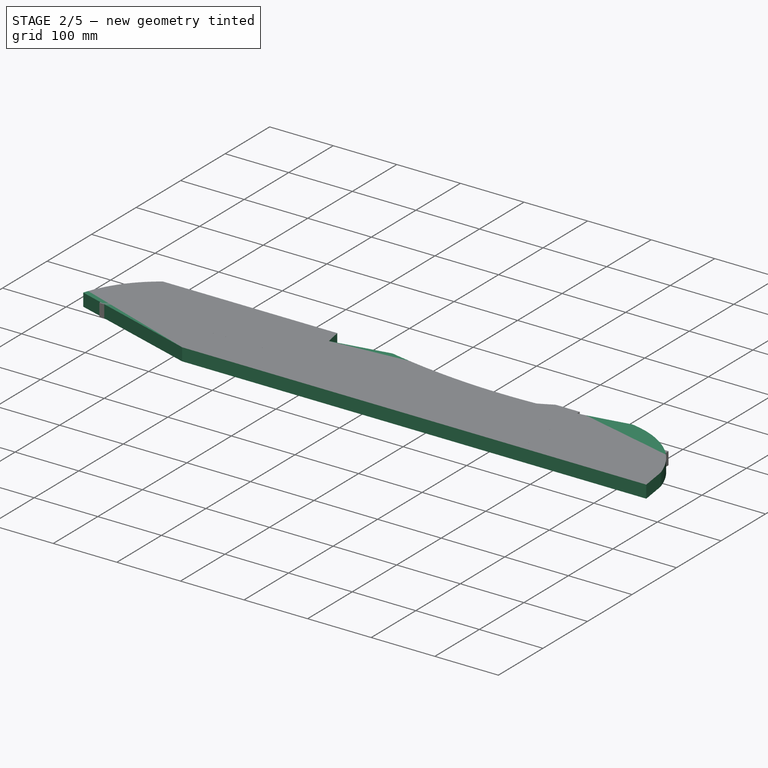
[diagram: stage 2 of 5 — iso view after this stage's code; geometry added in this stage tinted green]
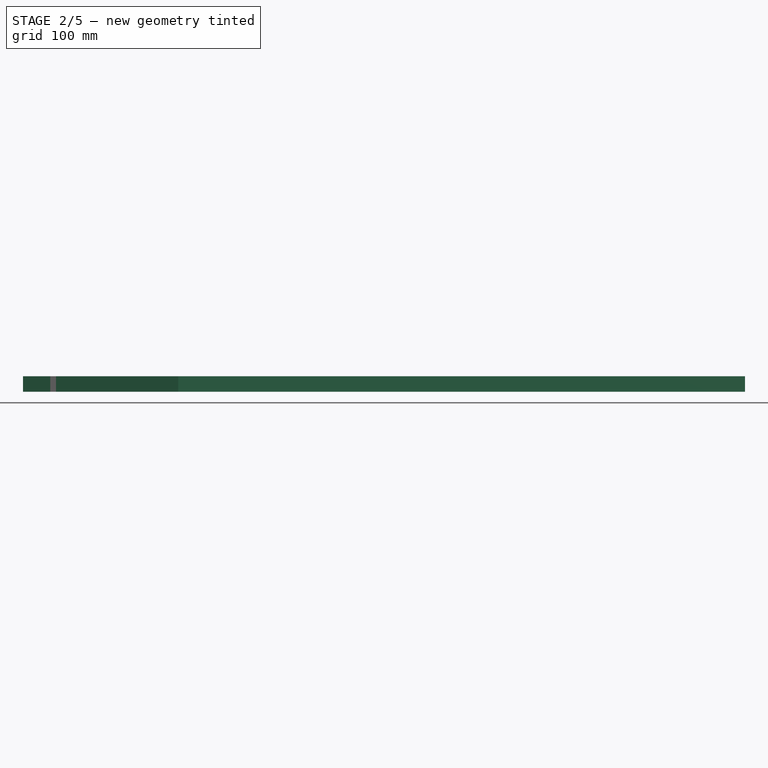
[diagram: stage 2 of 5 — front view after this stage's code; geometry added in this stage tinted green]
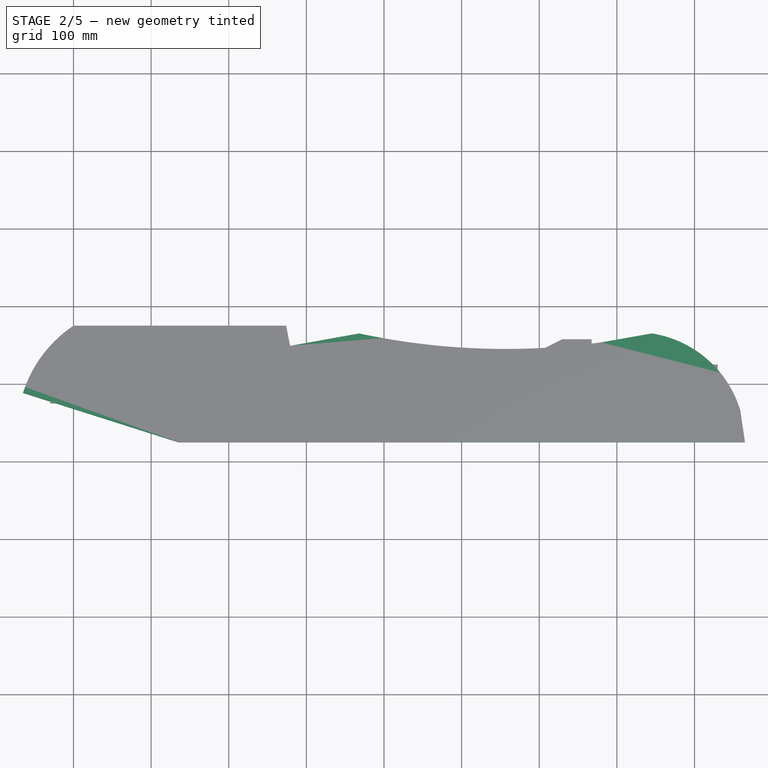
[diagram: stage 2 of 5 — top view after this stage's code; geometry added in this stage tinted green]
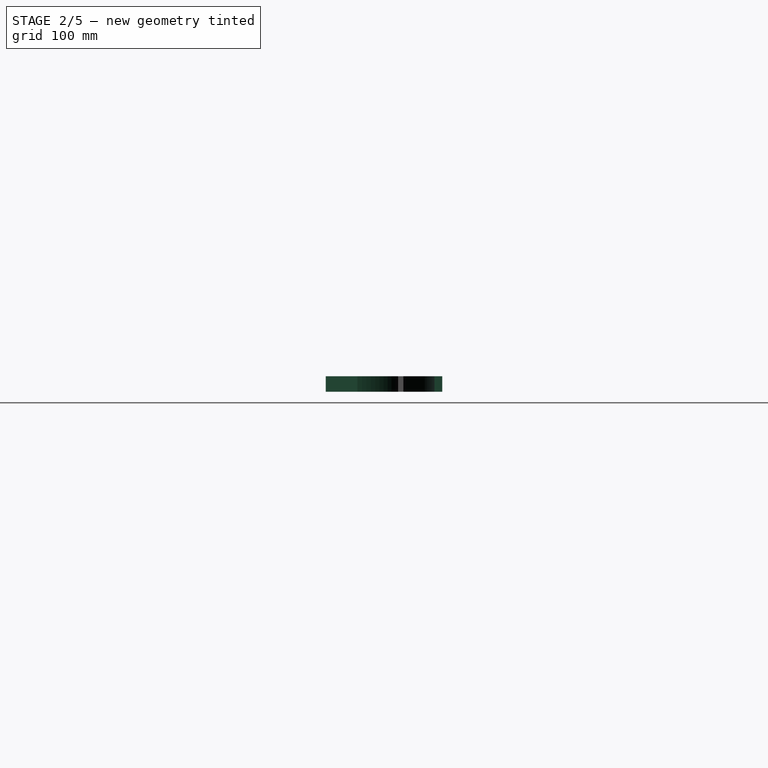
[diagram: stage 2 of 5 — right view after this stage's code; geometry added in this stage tinted green]
FEATURE [Sketcher::SketchObject] Sketch
  FullyConstrained = true
  MapMode = 5
  Support = -> [XY_Plane]
  sketch-geometry (5):
    g0: LineSegment StartX=-465 StartY=75 StartZ=0 EndX=-465 EndY=-75 EndZ=0
    g1: LineSegment StartX=-465 StartY=-75 StartZ=0 EndX=465 EndY=-75 EndZ=0
    g2: LineSegment StartX=465 StartY=-75 StartZ=0 EndX=465 EndY=75 EndZ=0
    g3: LineSegment StartX=465 StartY=75 StartZ=0 EndX=-465 EndY=75 EndZ=0
    g4: GeomPoint X=0 Y=0 Z=0
  constraints (12):
    c: Coincident(g0,g1)
    c: Coincident(g1,g2)
    c: Coincident(g2,g3)
    c: Coincident(g3,g0)
    c: Horizontal(g1)
    c: Horizontal(g3)
    c: Vertical(g0)
    c: Vertical(g2)
    c: Symmetric(g1,g0,g4)
    c: Coincident(g4,g-1)
    c: DistanceY(g0,g0) = 150
    c: DistanceX(g3,g3) = 930
FEATURE [PartDesign::Pad] Pad
  Direction = (0,0,1)
  Length = 20
  Length2 = 10
  Profile = -> Sketch
  ReferenceAxis = -> Sketch [N_Axis]
  Type = 0
FEATURE [Sketcher::SketchObject] Sketch001
  ExternalGeometry = -> [Pad]
  FullyConstrained = true
  MapMode = 5
  Placement = pos=(0,0,20) rot=(0,0,1;0rad)
  Support = -> [Pad]
  sketch-geometry (25):
    g0: LineSegment StartX=-265 StartY=-75 StartZ=0 EndX=-465 EndY=-11.5 EndZ=0
    g1: ArcOfCircle CenterX=-309.054 CenterY=-61.0128 CenterZ=0 NormalX=0 NormalY=0 NormalZ=1 AngleXU=0 Radius=163.617 StartAngle=2.16018 EndAngle=2.83416
    g2: LineSegment StartX=-126 StartY=75 StartZ=0 EndX=-121 EndY=49 EndZ=0
    g3: LineSegment StartX=-121 StartY=49 StartZ=0 EndX=-32 EndY=65 EndZ=0
    g4: ArcOfCircle CenterX=323.333 CenterY=-75 CenterZ=0 NormalX=0 NormalY=0 NormalZ=1 AngleXU=0 Radius=141.667 StartAngle=0 EndAngle=1.41725
    g5: LineSegment StartX=-465 StartY=45 StartZ=0 EndX=465 EndY=45 EndZ=0
    g6: LineSegment StartX=-400 StartY=75 StartZ=0 EndX=-465 EndY=75 EndZ=0
    g7: LineSegment StartX=-465 StartY=75 StartZ=0 EndX=-465 EndY=-75 EndZ=0
    g8: LineSegment StartX=-465 StartY=-75 StartZ=0 EndX=-265 EndY=-75 EndZ=0
    g9: LineSegment StartX=-126 StartY=75 StartZ=0 EndX=465 EndY=75 EndZ=0
    g10: LineSegment StartX=465 StartY=75 StartZ=0 EndX=465 EndY=-75 EndZ=0
    g11: ArcOfCircle CenterX=156.5 CenterY=943.306 CenterZ=0 NormalX=0 NormalY=0 NormalZ=1 AngleXU=0 Radius=898.306 StartAngle=4.50098 EndAngle=4.53588
    g12: ArcOfCircle CenterX=156.5 CenterY=943.306 CenterZ=0 NormalX=0 NormalY=0 NormalZ=1 AngleXU=0 Radius=898.306 StartAngle=4.53588 EndAngle=4.58824
    g13: ArcOfCircle CenterX=156.5 CenterY=943.306 CenterZ=0 NormalX=0 NormalY=0 NormalZ=1 AngleXU=0 Radius=898.306 StartAngle=4.58824 EndAngle=4.9238
    g14: ArcOfCircle CenterX=156.5 CenterY=943.306 CenterZ=0 NormalX=0 NormalY=0 NormalZ=1 AngleXU=0 Radius=898.306 StartAngle=4.58824 EndAngle=4.6406
    g15: ArcOfCircle CenterX=156.5 CenterY=943.306 CenterZ=0 NormalX=0 NormalY=0 NormalZ=1 AngleXU=0 Radius=898.306 StartAngle=4.6406 EndAngle=4.69296
    g16: ArcOfCircle CenterX=156.5 CenterY=943.306 CenterZ=0 NormalX=0 NormalY=0 NormalZ=1 AngleXU=0 Radius=898.306 StartAngle=4.69296 EndAngle=4.74532
    g17: ArcOfCircle CenterX=156.5 CenterY=943.306 CenterZ=0 NormalX=0 NormalY=0 NormalZ=1 AngleXU=0 Radius=898.306 StartAngle=4.74532 EndAngle=4.79768
    g18: ArcOfCircle CenterX=156.5 CenterY=943.306 CenterZ=0 NormalX=0 NormalY=0 NormalZ=1 AngleXU=0 Radius=898.306 StartAngle=4.79768 EndAngle=4.85004
    g19: LineSegment StartX=279.766 StartY=53.4976 StartZ=0 EndX=345 EndY=65 EndZ=0
    g20: ArcOfCircle CenterX=323.333 CenterY=-75 CenterZ=0 NormalX=0 NormalY=0 NormalZ=1 AngleXU=0 Radius=141.667 StartAngle=1.20781 EndAngle=1.41725
    g21: ArcOfCircle CenterX=323.333 CenterY=-75 CenterZ=0 NormalX=0 NormalY=0 NormalZ=1 AngleXU=0 Radius=141.667 StartAngle=0.90238 EndAngle=1.20781
    g22: ArcOfCircle CenterX=323.333 CenterY=-75 CenterZ=0 NormalX=0 NormalY=0 NormalZ=1 AngleXU=0 Radius=141.667 StartAngle=0.596948 EndAngle=0.90238
    g23: ArcOfCircle CenterX=323.333 CenterY=-75 CenterZ=0 NormalX=0 NormalY=0 NormalZ=1 AngleXU=0 Radius=141.667 StartAngle=0.291515 EndAngle=0.596948
    g24: LineSegment StartX=459.023 StartY=-34.2845 StartZ=0 EndX=465 EndY=-75 EndZ=0
  constraints (71):
    c: PointOnObject(g0,g-3)
    c: Perpendicular(g0,g1) = 1.5708
    c: Coincident(g2,g3)
    c: DistanceX(g-3,g0) = 200
    c: DistanceY(g-3,g0) = 63.5
    c: DistanceX(g1,g2) = 274
    c: DistanceX(g2,g2) = 5
    c: DistanceY(g2,g2) = 26
    c: DistanceY(g3,g2) = 10
    c: DistanceX(g-3,g1) = 65
    c: Horizontal(g3,g4)
    c: Horizontal(g-3,g1)
    c: DistanceX(g4,g-4) = 120
    c: DistanceX(g2,g3) = 89
    c: Horizontal(g5)
    c: DistanceY(g5,g3) = 20
    c: PointOnObject(g5,g-4)
    c: PointOnObject(g5,g-3)
    c: Tangent(g4,g-4) = -1.5708
    c: Coincident(g1,g6)
    c: Coincident(g6,g7)
    c: Coincident(g7,g-3)
    c: Coincident(g7,g8)
    c: Coincident(g8,g0)
    c: Horizontal(g8)
    c: Coincident(g6,g-3)
    c: Coincident(g2,g9)
    c: Coincident(g9,g-4)
    c: Horizontal(g9)
    c: Coincident(g9,g10)
    c: Coincident(g10,g4)
    c: Coincident(g11,g3)
    c: Angle(g11) = 0.0349066
    c: Coincident(g12,g11)
    c: Coincident(g12,g11)
    c: Angle(g12) = 0.0523599
    c: Coincident(g13,g11)
    c: Coincident(g13,g12)
    c: Coincident(g13,g4)
    c: Tangent(g13,g5)
    c: Coincident(g14,g11)
    c: Coincident(g14,g12)
    c: Coincident(g15,g11)
    c: Coincident(g15,g14)
    c: Angle(g14) = 0.0523599
    c: Angle(g15) = 0.0523599
    c: Coincident(g16,g11)
    c: Coincident(g16,g15)
    c: Angle(g16) = 0.0523599
    c: Coincident(g17,g11)
    c: Coincident(g17,g16)
    c: Angle(g17) = 0.0523599
    c: Coincident(g18,g11)
    c: Coincident(g18,g17)
    c: Angle(g18) = 0.0523599
    c: Coincident(g19,g18)
    c: Coincident(g19,g4)
    c: Coincident(g20,g4)
    c: Coincident(g20,g19)
    c: Coincident(g21,g20)
    c: Coincident(g21,g20)
    c: Angle(g20) = 0.20944
    c: Angle(g21) = 0.305433
    c: Coincident(g22,g20)
    c: Coincident(g22,g21)
    c: Angle(g22) = 0.305433
    c: Coincident(g23,g20)
    c: Coincident(g23,g22)
    c: Angle(g23) = 0.305433
    c: Coincident(g24,g23)
    c: Coincident(g24,g10)
FEATURE [PartDesign::Pocket] Pocket
  BaseFeature = -> Pad
  Direction = (0,0,-1)
  Length = 5
  Length2 = 5
  Profile = -> Sketch001
  ReferenceAxis = -> Sketch001 [N_Axis]
  Type = 1
FEATURE [Sketcher::SketchObject] Sketch008
  FullyConstrained = true
  MapMode = 5
  Support = -> [XY_Plane007]
  sketch-geometry (5):
    g0: LineSegment StartX=-267.5 StartY=16.5 StartZ=0 EndX=-267.5 EndY=-16.5 EndZ=0
    g1: LineSegment StartX=-267.5 StartY=-16.5 StartZ=0 EndX=267.5 EndY=-16.5 EndZ=0
    g2: LineSegment StartX=267.5 StartY=-16.5 StartZ=0 EndX=267.5 EndY=16.5 EndZ=0
    g3: LineSegment StartX=267.5 StartY=16.5 StartZ=0 EndX=-267.5 EndY=16.5 EndZ=0
    g4: GeomPoint X=0 Y=0 Z=0
  constraints (12):
    c: Coincident(g0,g1)
    c: Coincident(g1,g2)
    c: Coincident(g2,g3)
    c: Coincident(g3,g0)
    c: Horizontal(g1)
    c: Horizontal(g3)
    c: Vertical(g0)
    c: Vertical(g2)
    c: Symmetric(g1,g0,g4)
    c: Coincident(g4,g-1)
    c: DistanceY(g0,g0) = 33
    c: DistanceX(g3,g3) = 535
FEATURE [PartDesign::Pad] Pad007
  Direction = (0,0,1)
  Length = 20
  Length2 = 10
  Profile = -> Sketch008
  ReferenceAxis = -> Sketch008 [N_Axis]
  Type = 0
FEATURE [Sketcher::SketchObject] Sketch014
  ExternalGeometry = -> [Pad008]
  FullyConstrained = true
  MapMode = 5
  Placement = pos=(0,0,20) rot=(0,0,1;0rad)
  Support = -> [Pad008]
  sketch-geometry (10):
    g0: LineSegment StartX=-191.5 StartY=45 StartZ=0 EndX=191.5 EndY=45 EndZ=0
    g1: LineSegment StartX=-267.5 StartY=-10 StartZ=0 EndX=267.5 EndY=-10 EndZ=0
    g2: ArcOfCircle CenterX=-2.96e-14 CenterY=350.884 CenterZ=0 NormalX=0 NormalY=0 NormalZ=1 AngleXU=0 Radius=360.884 StartAngle=4.71239 EndAngle=4.85015
    g3: ArcOfCircle CenterX=-2.96e-14 CenterY=350.884 CenterZ=0 NormalX=0 NormalY=0 NormalZ=1 AngleXU=0 Radius=360.884 StartAngle=4.85015 EndAngle=4.98792
    g4: ArcOfCircle CenterX=-2.96e-14 CenterY=350.884 CenterZ=0 NormalX=0 NormalY=0 NormalZ=1 AngleXU=0 Radius=360.884 StartAngle=4.98792 EndAngle=5.12569
    g5: ArcOfCircle CenterX=-2.96e-14 CenterY=350.884 CenterZ=0 NormalX=0 NormalY=0 NormalZ=1 AngleXU=0 Radius=360.884 StartAngle=5.12569 EndAngle=5.27175
    g6: ArcOfCircle CenterX=-2.96e-14 CenterY=350.884 CenterZ=0 NormalX=0 NormalY=0 NormalZ=1 AngleXU=0 Radius=360.884 StartAngle=4.15303 EndAngle=4.2908
    g7: ArcOfCircle CenterX=-2.96e-14 CenterY=350.884 CenterZ=0 NormalX=0 NormalY=0 NormalZ=1 AngleXU=0 Radius=360.884 StartAngle=4.2908 EndAngle=4.42856
    g8: ArcOfCircle CenterX=-2.96e-14 CenterY=350.884 CenterZ=0 NormalX=0 NormalY=0 NormalZ=1 AngleXU=0 Radius=360.884 StartAngle=4.42856 EndAngle=4.56633
    g9: ArcOfCircle CenterX=-2.96e-14 CenterY=350.884 CenterZ=0 NormalX=0 NormalY=0 NormalZ=1 AngleXU=0 Radius=360.884 StartAngle=4.56633 EndAngle=4.71239
  constraints (31):
    c: PointOnObject(g0,g-3)
    c: Symmetric(g0,g0,g-2)
    c: DistanceX(g0,g-3) = 76
    c: Horizontal(g1)
    c: Vertical(g1,g-4)
    c: Vertical(g1,g-4)
    c: DistanceY(g-4,g1) = 35
    c: PointOnObject(g2,g1)
    c: PointOnObject(g2,g-2)
    c: Coincident(g3,g2)
    c: Coincident(g3,g2)
    c: Coincident(g4,g2)
    c: Coincident(g4,g3)
    c: Coincident(g5,g2)
    c: Coincident(g5,g4)
    c: Coincident(g5,g0)
    c: Angle(g2) = 0.137766
    c: Angle(g3) = 0.137766
    c: Angle(g4) = 0.137766
    c: Coincident(g6,g2)
    c: Coincident(g6,g0)
    c: Coincident(g7,g2)
    c: Coincident(g7,g6)
    c: Coincident(g8,g2)
    c: Coincident(g8,g7)
    c: Coincident(g9,g2)
    c: Coincident(g9,g8)
    c: Coincident(g9,g2)
    c: Angle(g6) = 0.137766
    c: Angle(g7) = 0.137766
    c: Angle(g8) = 0.137766
FEATURE [PartDesign::Pocket] Pocket002
  BaseFeature = -> Pad008
  Direction = (0,0,-1)
  Length = 5
  Length2 = 5
  Profile = -> Sketch014
  ReferenceAxis = -> Sketch014 [N_Axis]
  Type = 1
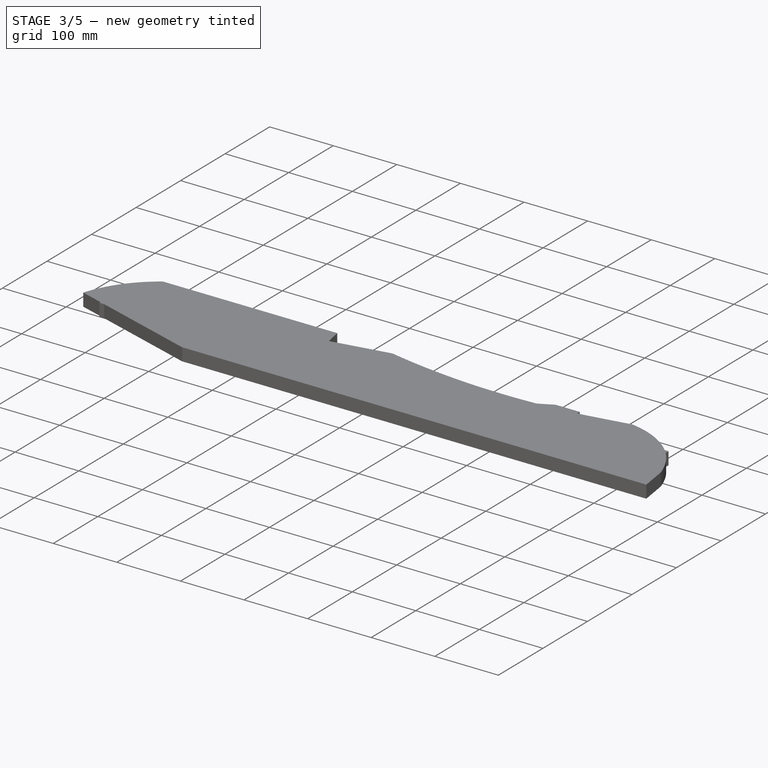
[diagram: stage 3 of 5 — iso view after this stage's code; geometry added in this stage tinted green]
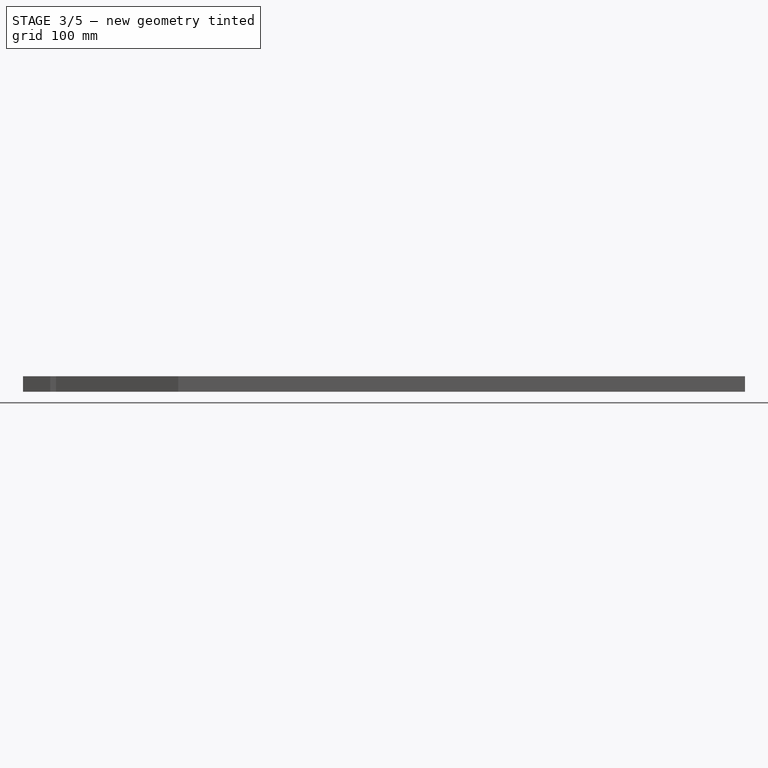
[diagram: stage 3 of 5 — front view after this stage's code; geometry added in this stage tinted green]
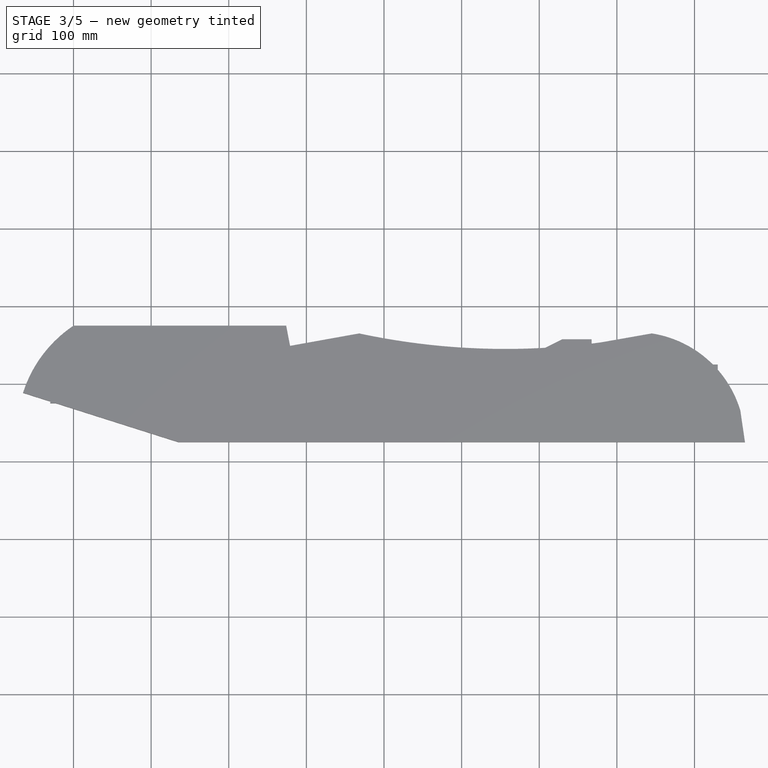
[diagram: stage 3 of 5 — top view after this stage's code; geometry added in this stage tinted green]
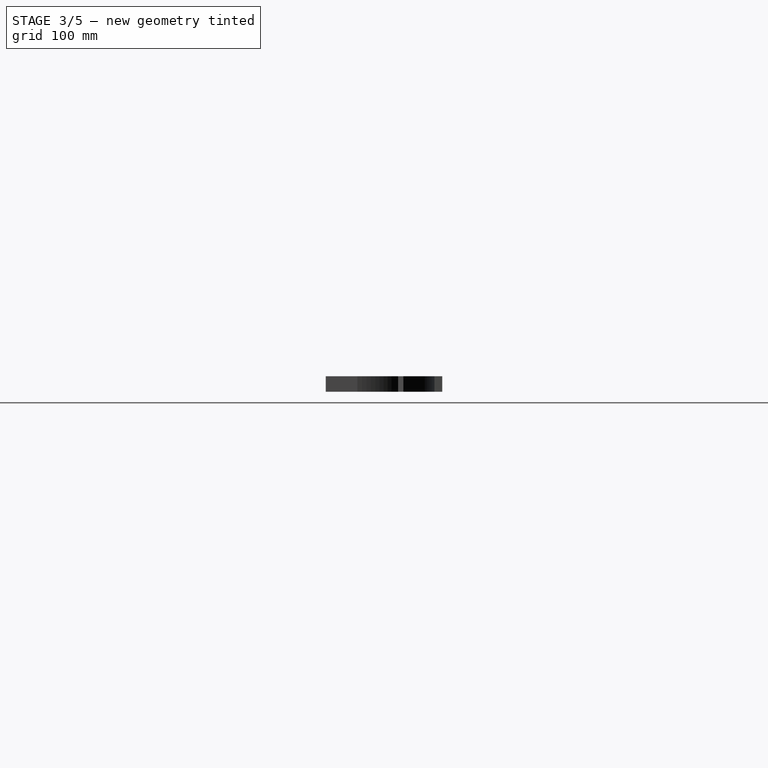
[diagram: stage 3 of 5 — right view after this stage's code; geometry added in this stage tinted green]
FEATURE [PartDesign::Body] Body002  label="suporte_bracos"
  Group = -> [Sketch003,Pad002]
  Origin = -> Origin002
  Tip = -> Pad002
FEATURE [Sketcher::SketchObject] Sketch004
  FullyConstrained = true
  MapMode = 5
  Support = -> [XY_Plane003]
  sketch-geometry (5):
    g0: LineSegment StartX=-90 StartY=45 StartZ=0 EndX=-90 EndY=-45 EndZ=0
    g1: LineSegment StartX=-90 StartY=-45 StartZ=0 EndX=90 EndY=-45 EndZ=0
    g2: LineSegment StartX=90 StartY=-45 StartZ=0 EndX=90 EndY=45 EndZ=0
    g3: LineSegment StartX=90 StartY=45 StartZ=0 EndX=-90 EndY=45 EndZ=0
    g4: GeomPoint X=0 Y=0 Z=0
  constraints (12):
    c: Coincident(g0,g1)
    c: Coincident(g1,g2)
    c: Coincident(g2,g3)
    c: Coincident(g3,g0)
    c: Horizontal(g1)
    c: Horizontal(g3)
    c: Vertical(g0)
    c: Vertical(g2)
    c: Symmetric(g1,g0,g4)
    c: Coincident(g4,g-1)
    c: DistanceY(g0,g0) = 90
    c: DistanceX(g3,g3) = 180
FEATURE [PartDesign::Pad] Pad003
  Direction = (0,0,1)
  Length = 20
  Length2 = 10
  Profile = -> Sketch004
  ReferenceAxis = -> Sketch004 [N_Axis]
  Type = 0
FEATURE [Sketcher::SketchObject] Sketch006
  FullyConstrained = true
  MapMode = 5
  Support = -> [XY_Plane005]
  sketch-geometry (5):
    g0: LineSegment StartX=-60 StartY=25 StartZ=0 EndX=-60 EndY=-25 EndZ=0
    g1: LineSegment StartX=-60 StartY=-25 StartZ=0 EndX=60 EndY=-25 EndZ=0
    g2: LineSegment StartX=60 StartY=-25 StartZ=0 EndX=60 EndY=25 EndZ=0
    g3: LineSegment StartX=60 StartY=25 StartZ=0 EndX=-60 EndY=25 EndZ=0
    g4: GeomPoint X=0 Y=0 Z=0
  constraints (12):
    c: Coincident(g0,g1)
    c: Coincident(g1,g2)
    c: Coincident(g2,g3)
    c: Coincident(g3,g0)
    c: Horizontal(g1)
    c: Horizontal(g3)
    c: Vertical(g0)
    c: Vertical(g2)
    c: Symmetric(g1,g0,g4)
    c: Coincident(g4,g-1)
    c: DistanceY(g0,g0) = 50
    c: DistanceX(g3,g3) = 120
FEATURE [PartDesign::Pad] Pad005
  Direction = (0,0,1)
  Length = 20
  Length2 = 10
  Profile = -> Sketch006
  ReferenceAxis = -> Sketch006 [N_Axis]
  Type = 0
FEATURE [PartDesign::Body] Body003  label="mao_francesa"
  Group = -> [Sketch004,Pad003,Fillet001]
  Origin = -> Origin003
  Tip = -> Fillet001
FEATURE [App::Link] Link022  label="pecas001"
  LinkPlacement = pos=(-255.447,39.63,304.734) rot=(0.57735,0.57735,-0.57735;2.0944rad)
  LinkedObject = -> Body004
  Placement = pos=(-255.447,39.63,304.734) rot=(0.57735,0.57735,-0.57735;2.0944rad)
FEATURE [App::Link] Link023  label="pecas002"
  LinkPlacement = pos=(-255.447,514.63,304.734) rot=(0.57735,0.57735,-0.57735;2.0944rad)
  LinkedObject = -> Link022
  Placement = pos=(-255.447,514.63,304.734) rot=(0.57735,0.57735,-0.57735;2.0944rad)
FEATURE [App::Link] Link024  label="suporte_superior001"
  LinkPlacement = pos=(-248.564,267.13,596.023) rot=(0.215808,-0.215808,-0.952289;1.61966rad)
  LinkedObject = -> Body010
  Placement = pos=(-248.564,267.13,596.023) rot=(0.215808,-0.215808,-0.952289;1.61966rad)
FEATURE [App::Link] Link025  label="encosto001"
  LinkPlacement = pos=(-235.586,267.13,565.807) rot=(0,1,0;1.14997rad)
  LinkedObject = -> Body011
  Placement = pos=(-235.586,267.13,565.807) rot=(0,1,0;1.14997rad)
FEATURE [App::Link] Link026  label="encosto002"
  LinkPlacement = pos=(-230.201,193.929,567.74) rot=(-0.098984,0.98732,0.124103;1.16243rad)
  LinkedObject = -> Body011
  Placement = pos=(-230.201,193.929,567.74) rot=(-0.098984,0.98732,0.124103;1.16243rad)
FEATURE [App::Link] Link027  label="encosto003"
  LinkPlacement = pos=(-214.216,122.688,573.493) rot=(-0.19215,0.951462,0.240412;1.19898rad)
  LinkedObject = -> Link026
  Placement = pos=(-214.216,122.688,573.493) rot=(-0.19215,0.951462,0.240412;1.19898rad)
FEATURE [App::Link] Link028  label="encosto004"
  LinkPlacement = pos=(-188.137,55.2856,582.937) rot=(-0.275318,0.897958,0.343323;1.25746rad)
  LinkedObject = -> Link027
  Placement = pos=(-188.137,55.2856,582.937) rot=(-0.275318,0.897958,0.343323;1.25746rad)
FEATURE [App::Link] Link029  label="encosto005"
  LinkPlacement = pos=(-230.225,340.667,567.91) rot=(0.103548,0.987312,-0.120386;1.16202rad)
  LinkedObject = -> Link028
  Placement = pos=(-230.225,340.667,567.91) rot=(0.103548,0.987312,-0.120386;1.16202rad)
FEATURE [App::Link] Link030  label="encosto006"
  LinkPlacement = pos=(-214.26,411.934,573.838) rot=(0.196599,0.951422,-0.236949;1.1982rad)
  LinkedObject = -> Link029
  Placement = pos=(-214.26,411.934,573.838) rot=(0.196599,0.951422,-0.236949;1.1982rad)
FEATURE [App::Link] Link031  label="encosto007"
  LinkPlacement = pos=(-188.184,479.376,583.45) rot=(0.279576,0.897826,-0.340214;1.25635rad)
  LinkedObject = -> Link030
  Placement = pos=(-188.184,479.376,583.45) rot=(0.279576,0.897826,-0.340214;1.25635rad)
FEATURE [Sketcher::SketchObject] Sketch018
  ExternalGeometry = -> [Pad005]
  FullyConstrained = true
  MapMode = 5
  Placement = pos=(0,0,20) rot=(0,0,1;0rad)
  Support = -> [Pad005]
  sketch-geometry (3):
    g0: LineSegment StartX=-60 StartY=-25 StartZ=0 EndX=60 EndY=25 EndZ=0
    g1: LineSegment StartX=60 StartY=25 StartZ=0 EndX=-60 EndY=25 EndZ=0
    g2: LineSegment StartX=-60 StartY=25 StartZ=0 EndX=-60 EndY=-25 EndZ=0
  constraints (6):
    c: Coincident(g0,g-3)
    c: Coincident(g0,g-4)
    c: Coincident(g0,g1)
    c: Coincident(g1,g-4)
    c: Coincident(g1,g2)
    c: Coincident(g2,g0)
FEATURE [PartDesign::Pocket] Pocket006
  BaseFeature = -> Pad005
  Direction = (0,0,-1)
  Length = 5
  Length2 = 5
  Profile = -> Sketch018
  ReferenceAxis = -> Sketch018 [N_Axis]
  Type = 1
FEATURE [PartDesign::Body] Body008  label="suporte_encosto"
  Group = -> [Sketch009,Pad008,Sketch014,Pocket002,ShapeBinder]
  Origin = -> Origin008
  Tip = -> Pocket002
FEATURE [PartDesign::ShapeBinder] ShapeBinder001
  Support = -> [Sketch008]
  TraceSupport = false
FEATURE [Sketcher::SketchObject] Sketch010
  ExternalGeometry = -> [ShapeBinder001]
  FullyConstrained = true
  MapMode = 5
  Support = -> [XY_Plane009]
  sketch-geometry (5):
    g0: LineSegment StartX=-267.5 StartY=-36 StartZ=0 EndX=-267.5 EndY=36 EndZ=0
    g1: LineSegment StartX=-267.5 StartY=36 StartZ=0 EndX=267.5 EndY=36 EndZ=0
    g2: LineSegment StartX=267.5 StartY=36 StartZ=0 EndX=267.5 EndY=-36 EndZ=0
    g3: LineSegment StartX=267.5 StartY=-36 StartZ=0 EndX=-267.5 EndY=-36 EndZ=0
    g4: GeomPoint X=-1e-16 Y=0 Z=0
  constraints (12):
    c: Coincident(g0,g1)
    c: Coincident(g1,g2)
    c: Coincident(g2,g3)
    c: Coincident(g3,g0)
    c: Horizontal(g1)
    c: Horizontal(g3)
    c: Vertical(g0)
    c: Vertical(g2)
    c: Symmetric(g1,g0,g4)
    c: Coincident(g4,g-1)
    c: DistanceY(g0,g0) = 72
    c: Equal(g1,g-3)
FEATURE [PartDesign::Pad] Pad009
  Direction = (0,0,1)
  Length = 20
  Length2 = 10
  Profile = -> Sketch010
  ReferenceAxis = -> Sketch010 [N_Axis]
  Type = 0
FEATURE [Sketcher::SketchObject] Sketch013
  ExternalGeometry = -> [Pad009]
  FullyConstrained = true
  MapMode = 5
  Placement = pos=(0,0,20) rot=(0,0,1;0rad)
  Support = -> [Pad009]
  sketch-geometry (6):
    g0: LineSegment StartX=-153.5 StartY=-3 StartZ=0 EndX=-267.5 EndY=-3 EndZ=0
    g1: LineSegment StartX=-267.5 StartY=-3 StartZ=0 EndX=-267.5 EndY=36 EndZ=0
    g2: LineSegment StartX=-267.5 StartY=36 StartZ=0 EndX=267.5 EndY=36 EndZ=0
    g3: LineSegment StartX=267.5 StartY=36 StartZ=0 EndX=267.5 EndY=-3 EndZ=0
    g4: LineSegment StartX=267.5 StartY=-3 StartZ=0 EndX=153.5 EndY=-3 EndZ=0
    g5: ArcOfCircle CenterX=2.9e-14 CenterY=-285.58 CenterZ=0 NormalX=0 NormalY=0 NormalZ=1 AngleXU=0 Radius=321.58 StartAngle=1.07318 EndAngle=2.06841
  constraints (17):
    c: Coincident(g0,g1)
    c: Coincident(g1,g-3)
    c: Vertical(g1)
    c: Coincident(g1,g2)
    c: Coincident(g2,g-3)
    c: Coincident(g2,g3)
    c: Vertical(g3)
    c: Equal(g3,g1)
    c: DistanceY(g-4,g3) = 33
    c: Coincident(g3,g4)
    c: Horizontal(g4)
    c: Equal(g0,g4)
    c: DistanceX(g4,g4) = 114
    c: Coincident(g5,g0)
    c: Coincident(g5,g4)
    c: Tangent(g5,g2)
    c: Horizontal(g0)
FEATURE [PartDesign::Pocket] Pocket001
  BaseFeature = -> Pad009
  Direction = (0,0,-1)
  Length = 5
  Length2 = 5
  Profile = -> Sketch013
  ReferenceAxis = -> Sketch013 [N_Axis]
  Type = 1
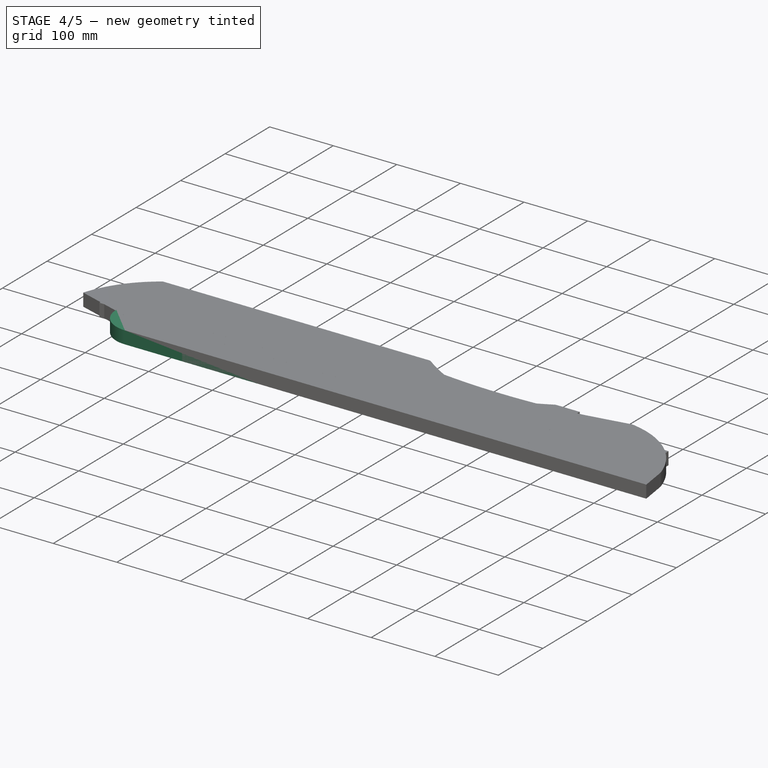
[diagram: stage 4 of 5 — iso view after this stage's code; geometry added in this stage tinted green]
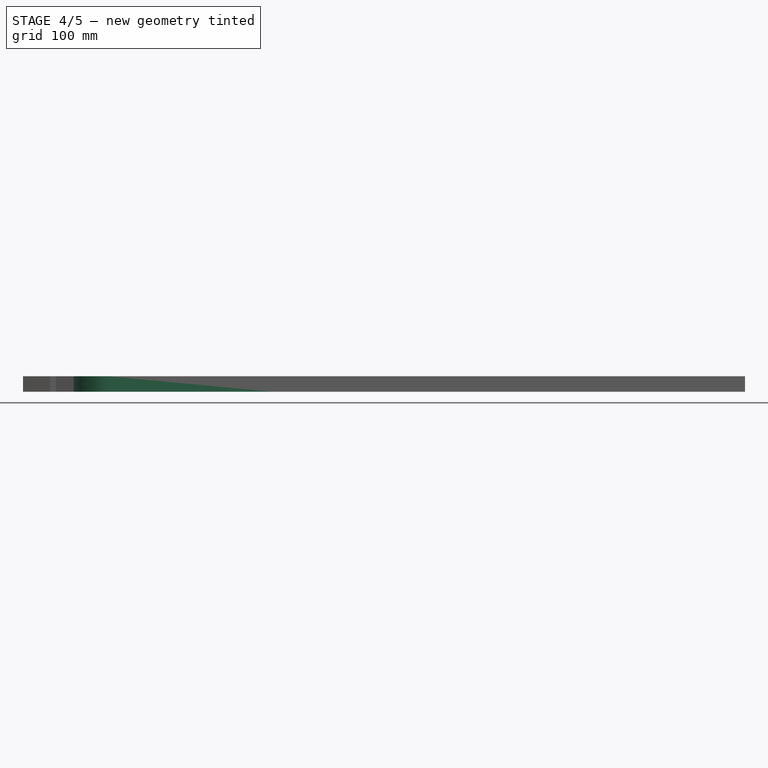
[diagram: stage 4 of 5 — front view after this stage's code; geometry added in this stage tinted green]
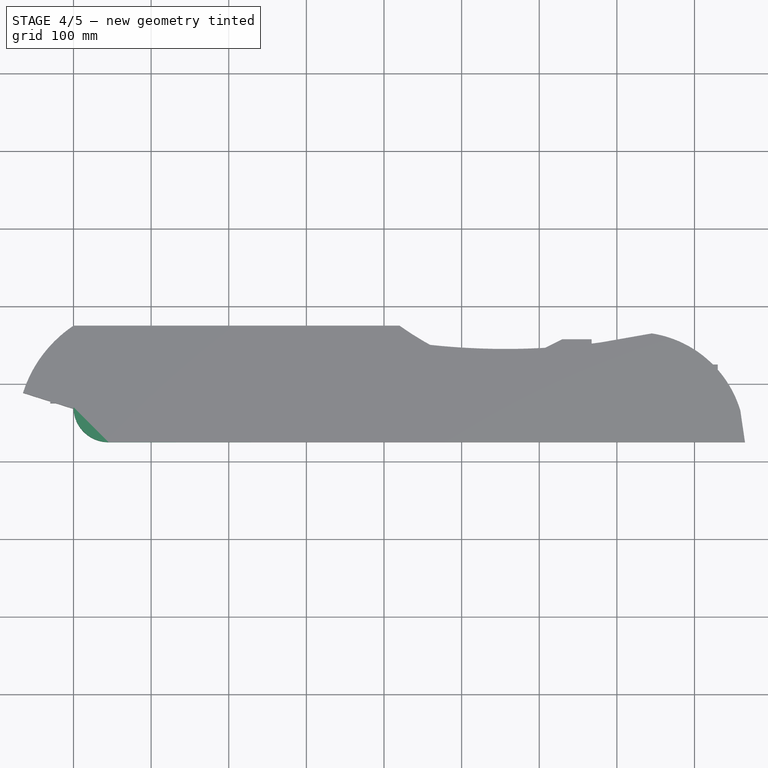
[diagram: stage 4 of 5 — top view after this stage's code; geometry added in this stage tinted green]
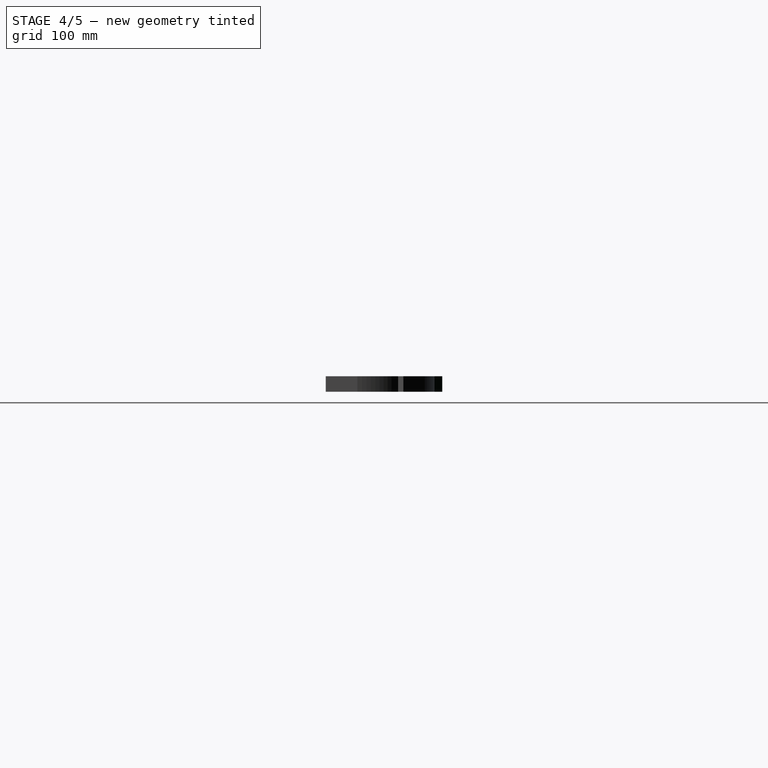
[diagram: stage 4 of 5 — right view after this stage's code; geometry added in this stage tinted green]
FEATURE [Sketcher::SketchObject] Sketch007
  FullyConstrained = true
  MapMode = 5
  Support = -> [XY_Plane006]
  sketch-geometry (5):
    g0: LineSegment StartX=-400 StartY=75 StartZ=0 EndX=-400 EndY=-75 EndZ=0
    g1: LineSegment StartX=-400 StartY=-75 StartZ=0 EndX=400 EndY=-75 EndZ=0
    g2: LineSegment StartX=400 StartY=-75 StartZ=0 EndX=400 EndY=75 EndZ=0
    g3: LineSegment StartX=400 StartY=75 StartZ=0 EndX=-400 EndY=75 EndZ=0
    g4: GeomPoint X=0 Y=0 Z=0
  constraints (12):
    c: Coincident(g0,g1)
    c: Coincident(g1,g2)
    c: Coincident(g2,g3)
    c: Coincident(g3,g0)
    c: Horizontal(g1)
    c: Horizontal(g3)
    c: Vertical(g0)
    c: Vertical(g2)
    c: Symmetric(g1,g0,g4)
    c: Coincident(g4,g-1)
    c: DistanceY(g0,g0) = 150
    c: DistanceX(g3,g3) = 800
FEATURE [PartDesign::Pad] Pad006
  Direction = (0,0,1)
  Length = 20
  Length2 = 10
  Profile = -> Sketch007
  ReferenceAxis = -> Sketch007 [N_Axis]
  Type = 0
FEATURE [PartDesign::Body] Body004  label="pecas"
  Group = -> [Sketch005,Pad004,Sketch015,Pocket003]
  Origin = -> Origin004
  Tip = -> Pocket003
FEATURE [PartDesign::Fillet] Fillet
  Base = -> Pad006 [Edge1,Edge2]
  BaseFeature = -> Pad006
  Radius = 45
  SupportTransform = false
  UseAllEdges = false
FEATURE [Sketcher::SketchObject] Sketch017
  ExternalGeometry = -> [Fillet]
  FullyConstrained = true
  MapMode = 5
  Placement = pos=(0,0,20) rot=(0,0,1;0rad)
  Support = -> [Fillet]
  sketch-geometry (6):
    g0: LineSegment StartX=-144 StartY=-75 StartZ=0 EndX=270 EndY=-75 EndZ=0
    g1: ArcOfCircle CenterX=63 CenterY=-714.324 CenterZ=0 NormalX=0 NormalY=0 NormalZ=1 AngleXU=0 Radius=672 StartAngle=1.25767 EndAngle=1.88392
    g2: ArcOfCircle CenterX=275.063 CenterY=-141.391 CenterZ=0 NormalX=0 NormalY=0 NormalZ=1 AngleXU=0 Radius=141.482 StartAngle=0.488449 EndAngle=1.60659
    g3: ArcOfCircle CenterX=255.472 CenterY=405.74 CenterZ=0 NormalX=0 NormalY=0 NormalZ=1 AngleXU=0 Radius=406 StartAngle=4.09368 EndAngle=4.74818
    g4: LineSegment StartX=20 StartY=75 StartZ=0 EndX=400 EndY=75 EndZ=0
    g5: LineSegment StartX=400 StartY=75 StartZ=0 EndX=400 EndY=-75 EndZ=0
  constraints (18):
    c: PointOnObject(g0,g-3)
    c: PointOnObject(g0,g-3)
    c: DistanceX(g0,g-5) = 130
    c: DistanceX(g0,g-5) = 544
    c: Coincident(g1,g0)
    c: Coincident(g1,g0)
    c: Radius(g1) = 672
    c: PointOnObject(g3,g-4)
    c: PointOnObject(g2,g-1)
    c: Vertical(g2,g0)
    c: DistanceX(g3,g-5) = 380
    c: Coincident(g2,g-5)
    c: Tangent(g3,g2) = 1.5708
    c: Radius(g3) = 406
    c: Coincident(g3,g4)
    c: Coincident(g4,g5)
    c: Coincident(g5,g2)
    c: Coincident(g4,g-5)
FEATURE [PartDesign::Pocket] Pocket005
  BaseFeature = -> Fillet
  Direction = (0,0,-1)
  Length = 5
  Length2 = 5
  Profile = -> Sketch017
  ReferenceAxis = -> Sketch017 [N_Axis]
  Type = 1
FEATURE [PartDesign::Body] Body006  label="bracos"
  Group = -> [Sketch007,Pad006,Fillet,Sketch017,Pocket005]
  Origin = -> Origin006
  Tip = -> Pocket005
FEATURE [App::Link] Link  label="base 1"
  LinkPlacement = pos=(39.2708,19.63,146.911) rot=(0.976825,-0.151348,0.151348;1.59424rad)
  LinkedObject = -> Body
  Placement = pos=(39.2708,19.63,146.911) rot=(0.976825,-0.151348,0.151348;1.59424rad)
FEATURE [App::Link] Link001  label="base 2"
  LinkPlacement = pos=(39.2708,534.63,146.911) rot=(0.976825,-0.151348,0.151348;1.59424rad)
  LinkedObject = -> Body
  Placement = pos=(39.2708,534.63,146.911) rot=(0.976825,-0.151348,0.151348;1.59424rad)
FEATURE [App::Link] Link002  label="suporte_encosto001"
  LinkPlacement = pos=(-51.0801,267.13,177.989) rot=(0.23363,-0.23363,-0.94384;1.62856rad)
  LinkedObject = -> Body008
  Placement = pos=(-51.0801,267.13,177.989) rot=(0.23363,-0.23363,-0.94384;1.62856rad)
FEATURE [App::Link] Link003  label="ripa_curvada001"
  LinkPlacement = pos=(0.984746,267.13,199.744) rot=(-0.076547,-0.076547,0.994123;1.57669rad)
  LinkedObject = -> Body009
  Placement = pos=(0.984746,267.13,199.744) rot=(-0.076547,-0.076547,0.994123;1.57669rad)
FEATURE [App::Link] Link004  label="ripa001"
  LinkPlacement = pos=(66.7055,267.13,210.088) rot=(-0.106575,-0.106575,0.988577;1.58228rad)
  LinkedObject = -> Body007
  Placement = pos=(66.7055,267.13,210.088) rot=(-0.106575,-0.106575,0.988577;1.58228rad)
FEATURE [App::Link] Link005  label="ripa002"
  LinkPlacement = pos=(112.707,267.13,219.868) rot=(0.127792,0.127792,-0.983534;4.69579rad)
  LinkedObject = -> Body007
  Placement = pos=(112.707,267.13,219.868) rot=(0.127792,0.127792,-0.983534;4.69579rad)
FEATURE [App::Link] Link006  label="ripa003"
  LinkPlacement = pos=(333.864,267.13,305.504) rot=(0.235575,0.235575,-0.942873;4.6536rad)
  LinkedObject = -> Body007
  Placement = pos=(333.864,267.13,305.504) rot=(0.235575,0.235575,-0.942873;4.6536rad)
FEATURE [App::Link] Link007  label="ripa004"
  LinkPlacement = pos=(246.767,267.13,263.431) rot=(0.195973,0.195973,-0.960827;4.67244rad)
  LinkedObject = -> Body007
  Placement = pos=(246.767,267.13,263.431) rot=(0.195973,0.195973,-0.960827;4.67244rad)
FEATURE [App::Link] Link008  label="ripa005"
  LinkPlacement = pos=(202.862,267.13,246.575) rot=(0.171549,0.171549,-0.970125;4.68206rad)
  LinkedObject = -> Body007
  Placement = pos=(202.862,267.13,246.575) rot=(0.171549,0.171549,-0.970125;4.68206rad)
FEATURE [App::Link] Link009  label="ripa006"
  LinkPlacement = pos=(289.731,267.13,282.561) rot=(0.223849,0.223849,-0.948569;4.65961rad)
  LinkedObject = -> Body007
  Placement = pos=(289.731,267.13,282.561) rot=(0.223849,0.223849,-0.948569;4.65961rad)
FEATURE [App::Link] Link010  label="ripa007"
  LinkPlacement = pos=(158.134,267.13,232.041) rot=(0.14669,0.14669,-0.978245;4.6904rad)
  LinkedObject = -> Body007
  Placement = pos=(158.134,267.13,232.041) rot=(0.14669,0.14669,-0.978245;4.6904rad)
FEATURE [App::Link] Link011  label="ripa008"
  LinkPlacement = pos=(378.006,267.13,314.72) rot=(-0.026657,-0.026657,0.999289;1.57151rad)
  LinkedObject = -> Body007
  Placement = pos=(378.006,267.13,314.72) rot=(-0.026657,-0.026657,0.999289;1.57151rad)
FEATURE [App::Link] Link012  label="ripa009"
  LinkPlacement = pos=(420.176,267.13,305.808) rot=(-0.145752,-0.145752,-0.978526;4.69068rad)
  LinkedObject = -> Body007
  Placement = pos=(420.176,267.13,305.808) rot=(-0.145752,-0.145752,-0.978526;4.69068rad)
FEATURE [App::Link] Link013  label="ripa010"
  LinkPlacement = pos=(457.715,267.13,284.628) rot=(-0.302042,-0.302042,-0.90418;4.61183rad)
  LinkedObject = -> Body007
  Placement = pos=(457.715,267.13,284.628) rot=(-0.302042,-0.302042,-0.90418;4.61183rad)
FEATURE [App::Link] Link014  label="ripa011"
  LinkPlacement = pos=(487.147,267.13,253.14) rot=(-0.430329,-0.430329,-0.793495;4.48312rad)
  LinkedObject = -> Body007
  Placement = pos=(487.147,267.13,253.14) rot=(-0.430329,-0.430329,-0.793495;4.48312rad)
FEATURE [App::Link] Link015  label="ripa012"
  LinkPlacement = pos=(505.8,267.13,214.783) rot=(-0.473024,-0.473024,-0.743302;4.41999rad)
  LinkedObject = -> Body007
  Placement = pos=(505.8,267.13,214.783) rot=(-0.473024,-0.473024,-0.743302;4.41999rad)
FEATURE [App::Link] Link016  label="pe001"
  LinkPlacement = pos=(340.165,-20.37,235.234) rot=(-0.57735,-0.57735,-0.57735;2.0944rad)
  LinkedObject = -> Body001
  Placement = pos=(340.165,-20.37,235.234) rot=(-0.57735,-0.57735,-0.57735;2.0944rad)
FEATURE [App::Link] Link017  label="pe002"
  LinkPlacement = pos=(340.165,554.63,235.234) rot=(0.57735,0.57735,-0.57735;2.0944rad)
  LinkedObject = -> Body001
  Placement = pos=(340.165,554.63,235.234) rot=(0.57735,0.57735,-0.57735;2.0944rad)
FEATURE [App::Link] Link018  label="suporte_bracos001"
  LinkPlacement = pos=(340.165,599.63,475.234) rot=(0,0,-1;1.5708rad)
  LinkedObject = -> Body002
  Placement = pos=(340.165,599.63,475.234) rot=(0,0,-1;1.5708rad)
FEATURE [App::Link] Link019  label="suporte_bracos002"
  LinkPlacement = pos=(340.165,-65.37,475.234) rot=(0,0,1;1.5708rad)
  LinkedObject = -> Body002
  Placement = pos=(340.165,-65.37,475.234) rot=(0,0,1;1.5708rad)
FEATURE [App::Link] Link020  label="mao_francesa001"
  LinkPlacement = pos=(350.165,-65.37,385.234) rot=(0,1,0;4.71239rad)
  LinkedObject = -> Body003
  Placement = pos=(350.165,-65.37,385.234) rot=(0,1,0;4.71239rad)
FEATURE [App::Link] Link021  label="mao_francesa002"
  LinkPlacement = pos=(330.165,599.63,385.234) rot=(0.707107,0,0.707107;3.14159rad)
  LinkedObject = -> Body003
  Placement = pos=(330.165,599.63,385.234) rot=(0.707107,0,0.707107;3.14159rad)
FEATURE [PartDesign::Fillet] Fillet001
  Base = -> Pad003 [Edge2]
  BaseFeature = -> Pad003
  Radius = 35
  SupportTransform = false
  UseAllEdges = false
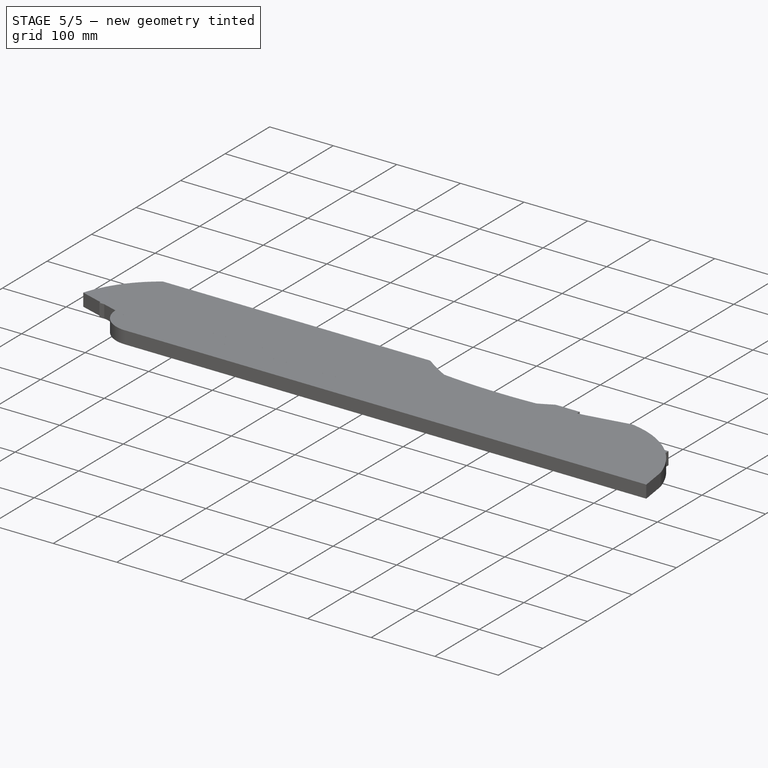
[diagram: stage 5 of 5 — iso view after this stage's code; geometry added in this stage tinted green]
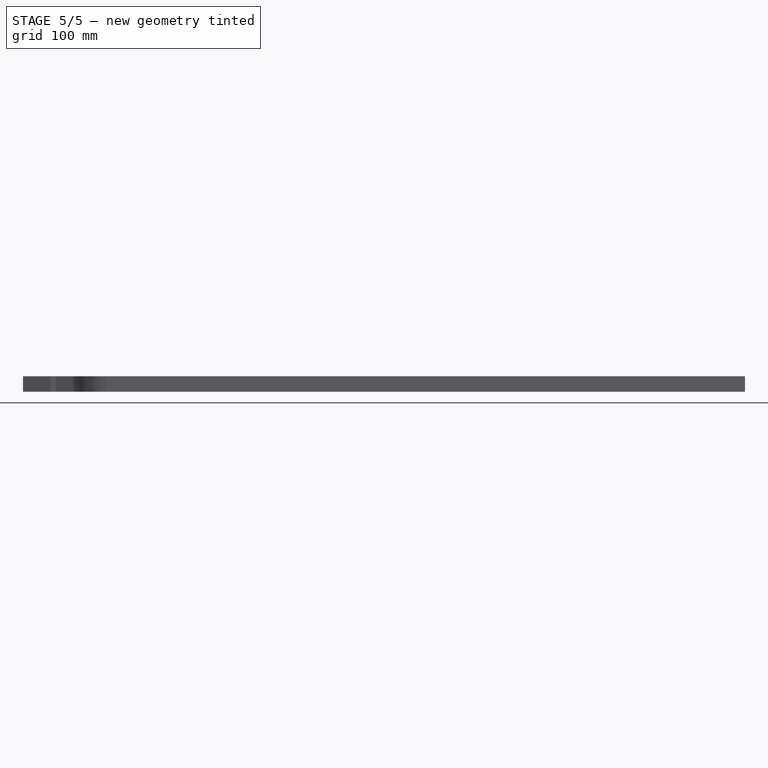
[diagram: stage 5 of 5 — front view after this stage's code; geometry added in this stage tinted green]
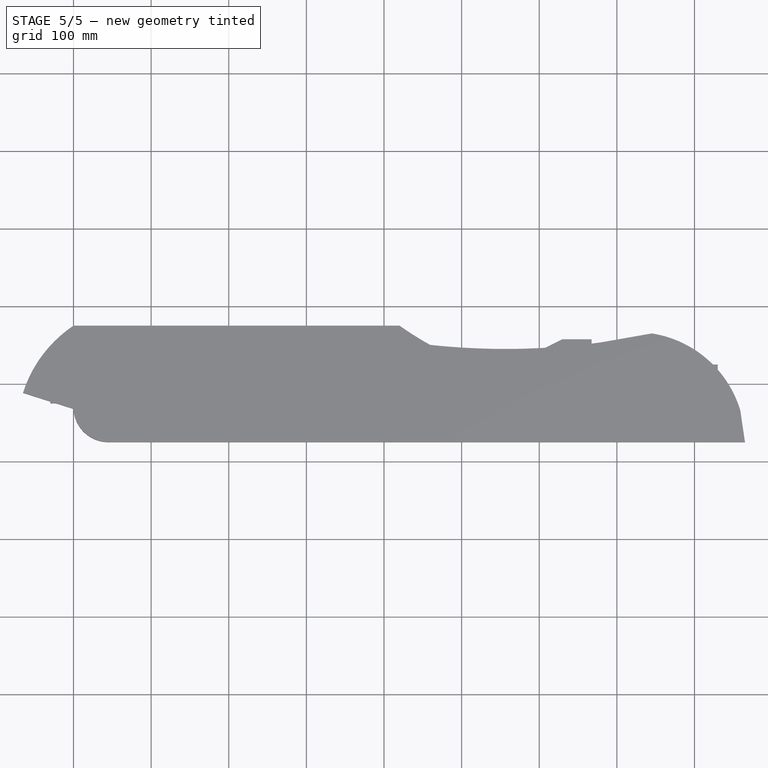
[diagram: stage 5 of 5 — top view after this stage's code; geometry added in this stage tinted green]
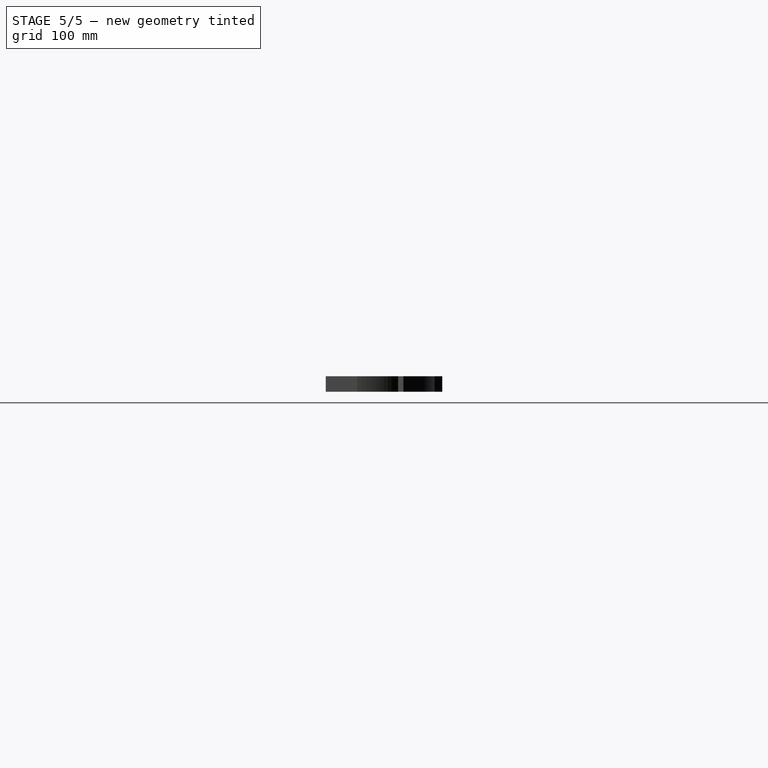
[diagram: stage 5 of 5 — right view after this stage's code; geometry added in this stage tinted green]
FEATURE [PartDesign::Body] Body  label="base"
  Group = -> [Sketch,Pad,Sketch001,Pocket]
  Origin = -> Origin
  Tip = -> Pocket
FEATURE [Sketcher::SketchObject] Sketch002
  FullyConstrained = true
  MapMode = 5
  Support = -> [XY_Plane001]
  sketch-geometry (5):
    g0: LineSegment StartX=-240 StartY=45 StartZ=0 EndX=-240 EndY=-45 EndZ=0
    g1: LineSegment StartX=-240 StartY=-45 StartZ=0 EndX=240 EndY=-45 EndZ=0
    g2: LineSegment StartX=240 StartY=-45 StartZ=0 EndX=240 EndY=45 EndZ=0
    g3: LineSegment StartX=240 StartY=45 StartZ=0 EndX=-240 EndY=45 EndZ=0
    g4: GeomPoint X=0 Y=0 Z=0
  constraints (12):
    c: Coincident(g0,g1)
    c: Coincident(g1,g2)
    c: Coincident(g2,g3)
    c: Coincident(g3,g0)
    c: Horizontal(g1)
    c: Horizontal(g3)
    c: Vertical(g0)
    c: Vertical(g2)
    c: Symmetric(g1,g0,g4)
    c: Coincident(g4,g-1)
    c: DistanceY(g0,g0) = 90
    c: DistanceX(g3,g3) = 480
FEATURE [PartDesign::Pad] Pad001
  Direction = (0,0,1)
  Length = 20
  Length2 = 10
  Profile = -> Sketch002
  ReferenceAxis = -> Sketch002 [N_Axis]
  Type = 0
FEATURE [PartDesign::Body] Body001  label="pe"
  Group = -> [Sketch002,Pad001]
  Origin = -> Origin001
  Tip = -> Pad001
FEATURE [Sketcher::SketchObject] Sketch003
  FullyConstrained = true
  MapMode = 5
  Support = -> [XY_Plane002]
  sketch-geometry (5):
    g0: LineSegment StartX=-65 StartY=45 StartZ=0 EndX=-65 EndY=-45 EndZ=0
    g1: LineSegment StartX=-65 StartY=-45 StartZ=0 EndX=65 EndY=-45 EndZ=0
    g2: LineSegment StartX=65 StartY=-45 StartZ=0 EndX=65 EndY=45 EndZ=0
    g3: LineSegment StartX=65 StartY=45 StartZ=0 EndX=-65 EndY=45 EndZ=0
    g4: GeomPoint X=0 Y=0 Z=0
  constraints (12):
    c: Coincident(g0,g1)
    c: Coincident(g1,g2)
    c: Coincident(g2,g3)
    c: Coincident(g3,g0)
    c: Horizontal(g1)
    c: Horizontal(g3)
    c: Vertical(g0)
    c: Vertical(g2)
    c: Symmetric(g1,g0,g4)
    c: Coincident(g4,g-1)
    c: DistanceY(g0,g0) = 90
    c: DistanceX(g3,g3) = 130
FEATURE [PartDesign::Pad] Pad002
  Direction = (0,0,1)
  Length = 20
  Length2 = 10
  Profile = -> Sketch003
  ReferenceAxis = -> Sketch003 [N_Axis]
  Type = 0
FEATURE [Sketcher::SketchObject] Sketch005
  FullyConstrained = true
  MapMode = 5
  Support = -> [XY_Plane004]
  sketch-geometry (5):
    g0: LineSegment StartX=-309.5 StartY=45 StartZ=0 EndX=-309.5 EndY=-45 EndZ=0
    g1: LineSegment StartX=-309.5 StartY=-45 StartZ=0 EndX=309.5 EndY=-45 EndZ=0
    g2: LineSegment StartX=309.5 StartY=-45 StartZ=0 EndX=309.5 EndY=45 EndZ=0
    g3: LineSegment StartX=309.5 StartY=45 StartZ=0 EndX=-309.5 EndY=45 EndZ=0
    g4: GeomPoint X=0 Y=0 Z=0
  constraints (12):
    c: Coincident(g0,g1)
    c: Coincident(g1,g2)
    c: Coincident(g2,g3)
    c: Coincident(g3,g0)
    c: Horizontal(g1)
    c: Horizontal(g3)
    c: Vertical(g0)
    c: Vertical(g2)
    c: Symmetric(g1,g0,g4)
    c: Coincident(g4,g-1)
    c: DistanceY(g0,g0) = 90
    c: DistanceX(g3,g3) = 619
FEATURE [PartDesign::Pad] Pad004
  Direction = (0,0,1)
  Length = 20
  Length2 = 10
  Profile = -> Sketch005
  ReferenceAxis = -> Sketch005 [N_Axis]
  Type = 0
FEATURE [PartDesign::Body] Body011  label="encosto"
  Group = -> [Sketch012,Pad011]
  Origin = -> Origin011
  Tip = -> Pad011
FEATURE [Sketcher::SketchObject] Sketch015
  ExternalGeometry = -> [Pad004]
  FullyConstrained = true
  MapMode = 5
  Placement = pos=(0,0,20) rot=(0,0,1;0rad)
  Support = -> [Pad004]
  sketch-geometry (3):
    g0: LineSegment StartX=-309.5 StartY=-45 StartZ=0 EndX=-309.5 EndY=45 EndZ=0
    g1: LineSegment StartX=-309.5 StartY=45 StartZ=0 EndX=-266.5 EndY=-45 EndZ=0
    g2: LineSegment StartX=-266.5 StartY=-45 StartZ=0 EndX=-309.5 EndY=-45 EndZ=0
  constraints (7):
    c: Coincident(g-3,g0)
    c: Coincident(g0,g-3)
    c: Coincident(g0,g1)
    c: Coincident(g1,g2)
    c: Coincident(g2,g0)
    c: Horizontal(g2)
    c: DistanceX(g2,g2) = 43
FEATURE [PartDesign::Pocket] Pocket003
  BaseFeature = -> Pad004
  Direction = (0,0,-1)
  Length = 5
  Length2 = 5
  Profile = -> Sketch015
  ReferenceAxis = -> Sketch015 [N_Axis]
  Type = 1
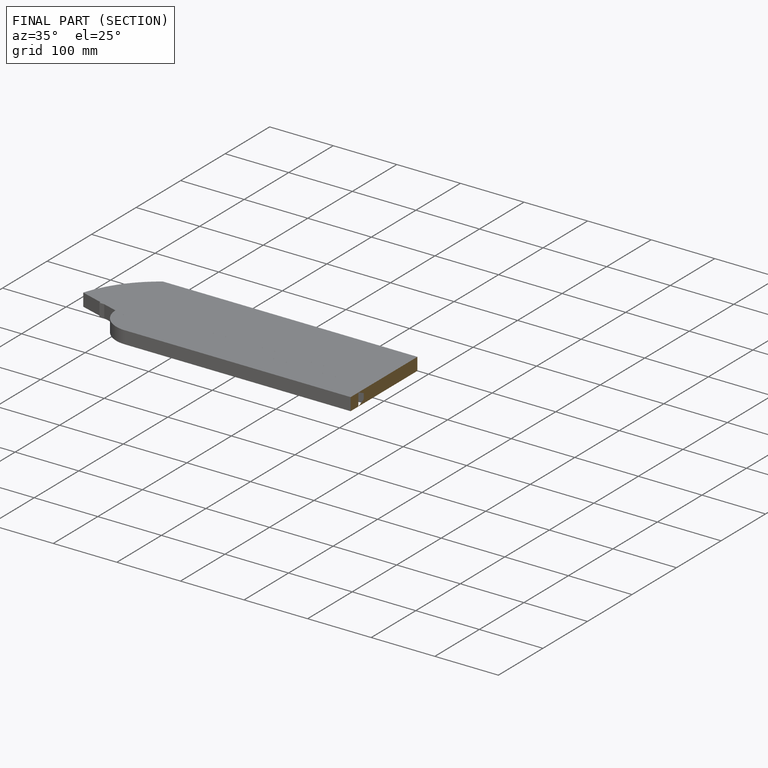
[diagram: finished part — half-section view (interior)]
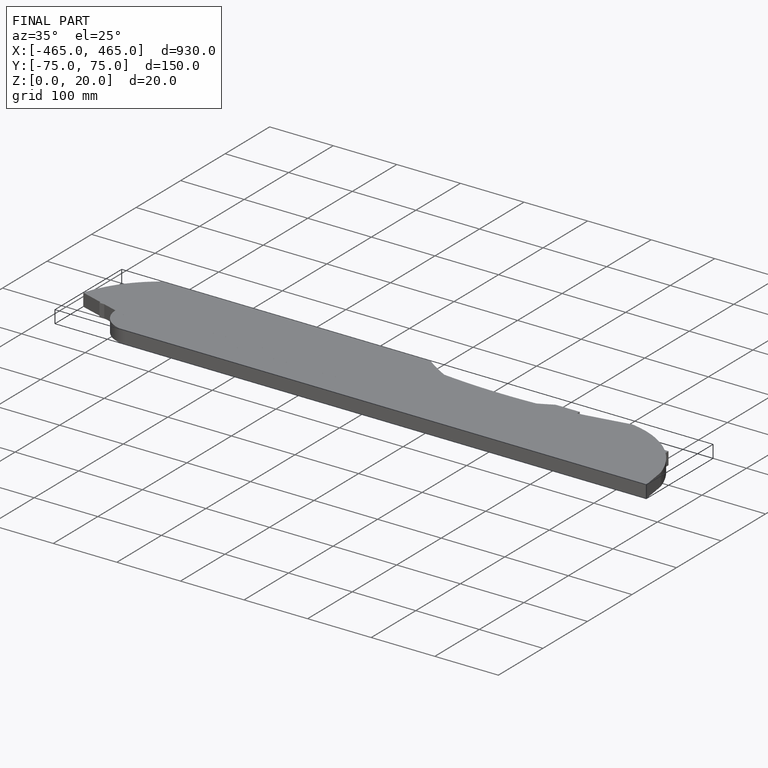
[diagram: finished part — iso view with bounding-box wireframe]
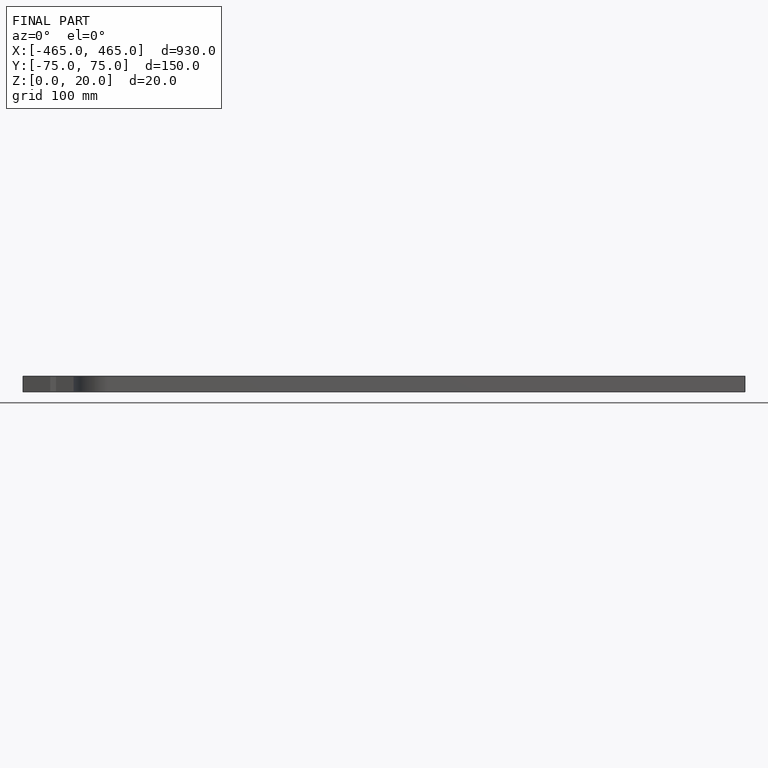
[diagram: finished part — front view with bounding-box wireframe]
